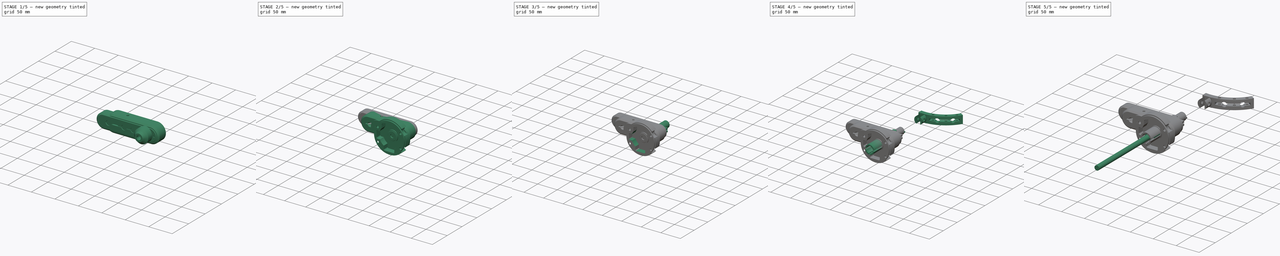
[diagram: build sequence overview — one tinted view per stage of 5, left to right]
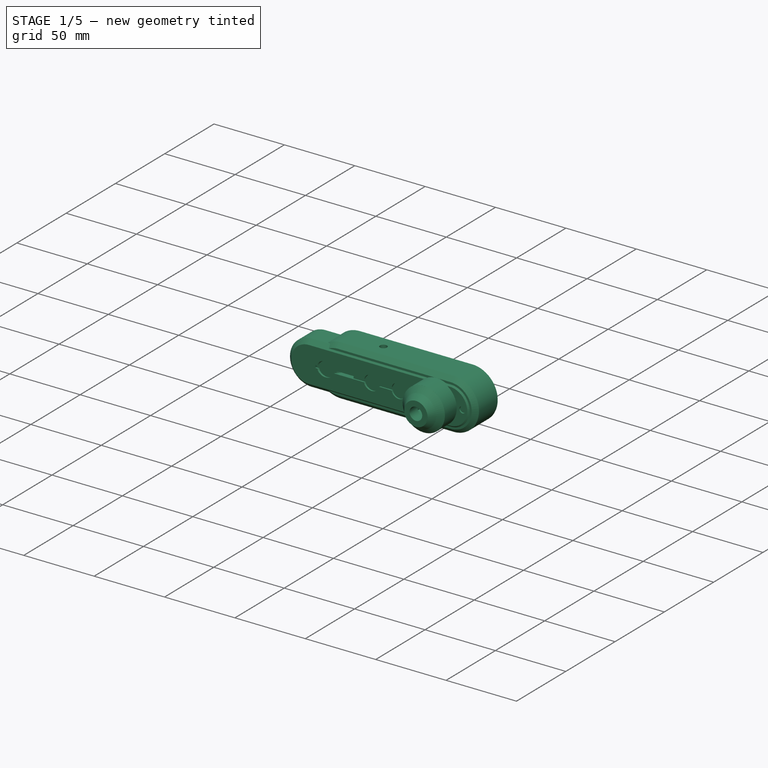
[diagram: stage 1 of 5 — iso view after this stage's code; geometry added in this stage tinted green]
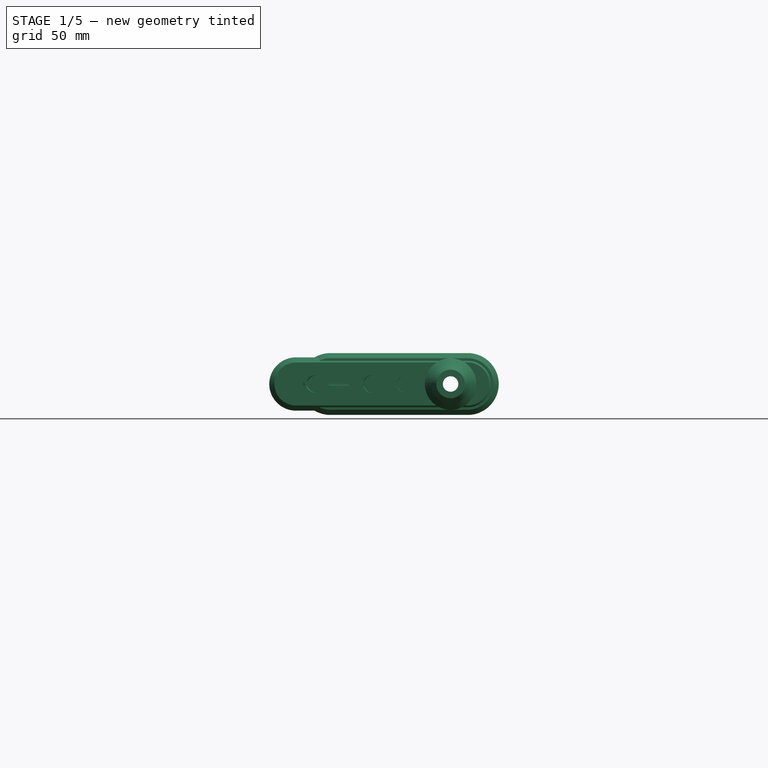
[diagram: stage 1 of 5 — front view after this stage's code; geometry added in this stage tinted green]
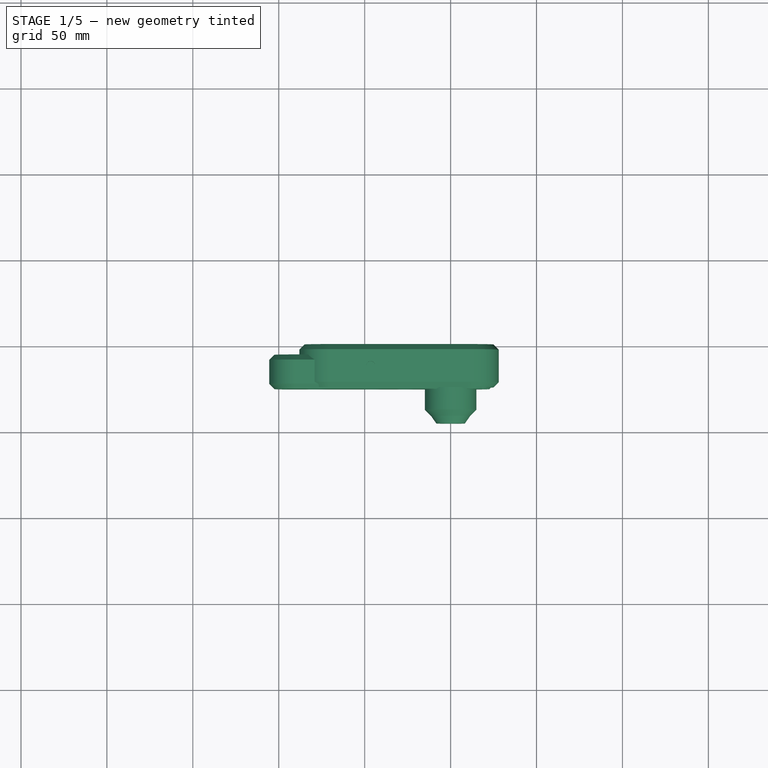
[diagram: stage 1 of 5 — top view after this stage's code; geometry added in this stage tinted green]
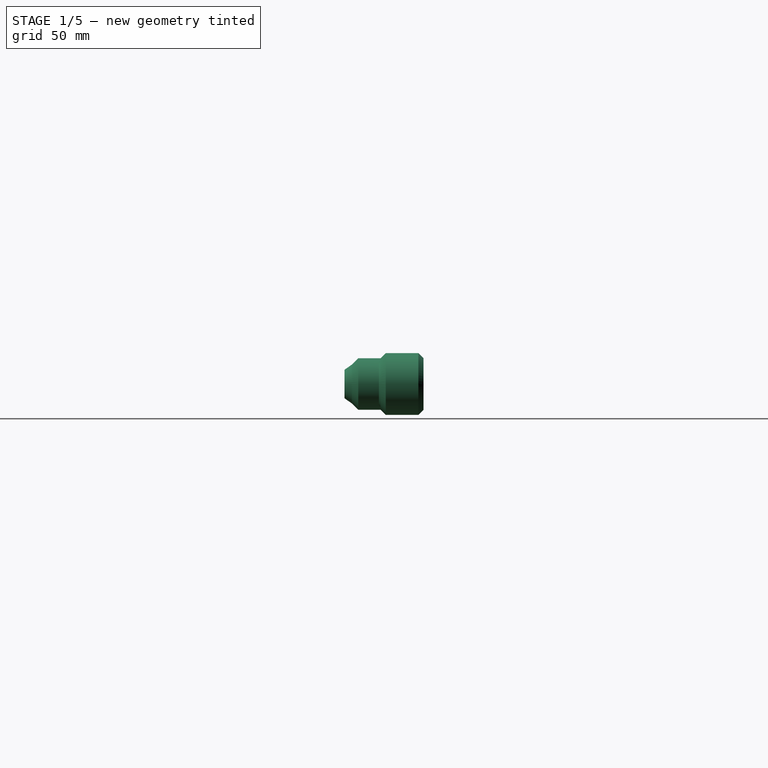
[diagram: stage 1 of 5 — right view after this stage's code; geometry added in this stage tinted green]
FCSTD DOCUMENT  (FreeCAD 0.21R33668 +26 (Git))
Label: end_effector_1_model
License: All rights reserved
LicenseURL: https://en.wikipedia.org/wiki/All_rights_reserved
objects: Sketcher::SketchObject×109, PartDesign::Pad×59, PartDesign::Pocket×41, PartDesign::Body×26, PartDesign::Fillet×10, Part::Cut×9, PartDesign::Hole×8, PartDesign::Chamfer×6, App::Part×5, PartDesign::PolarPattern×1
note: 393 computed .brp shape members not serialized (recipe doc carries the construction recipe); baked Part::Feature solids carry a one-line shape summary decoded from their .brp

FEATURE [PartDesign::Body] Body025  label="Bearing_mount001"
  Group = -> [Sketch132,Pad064,Sketch133,Pad065,Sketch134,Pad066]
  Origin = -> Origin032
  Placement = pos=(0,18,0) rot=(0,0,1;0rad)
  Tip = -> Pad066
FEATURE [Sketcher::SketchObject] Sketch135
  FullyConstrained = true
  MapMode = 5
  Placement = pos=(0,0,0) rot=(1,0,0;1.5708rad)
  Support = -> [XZ_Plane033]
  sketch-geometry (1):
    g0: Circle CenterX=0 CenterY=0 CenterZ=0 NormalX=0 NormalY=0 NormalZ=1 AngleXU=0 Radius=5.125
  constraints (2):
    c: Coincident(g0,g-1)
    c: Diameter(g0) = 10.25
FEATURE [PartDesign::Pad] Pad067
  Direction = (0,-1,2e-16)
  Length = 190
  Length2 = 10
  Placement = pos=(0,0,0) rot=(1,0,0;1.5708rad)
  Profile = -> Sketch135
  ReferenceAxis = -> Sketch135 [N_Axis]
  Type = 0
FEATURE [PartDesign::Body] Body026  label="stylus_048"
  Group = -> [Sketch135,Pad067]
  Origin = -> Origin033
  Placement = pos=(0,130,0) rot=(0,0,-1;0.558505rad)
  Tip = -> Pad067
FEATURE [Sketcher::SketchObject] Sketch136
  FullyConstrained = true
  MapMode = 5
  Placement = pos=(0,0,0) rot=(1,0,0;1.5708rad)
  Support = -> [XZ_Plane034]
  sketch-geometry (8):
    g0: LineSegment StartX=0 StartY=7.4 StartZ=0 EndX=-6.40859 EndY=3.7 EndZ=0
    g1: LineSegment StartX=-6.40859 StartY=3.7 StartZ=0 EndX=-6.40859 EndY=-3.7 EndZ=0
    g2: LineSegment StartX=-6.40859 StartY=-3.7 StartZ=0 EndX=-7.37e-14 EndY=-7.4 EndZ=0
    g3: LineSegment StartX=-7.37e-14 StartY=-7.4 StartZ=0 EndX=6.40859 EndY=-3.7 EndZ=0
    g4: LineSegment StartX=6.40859 StartY=-3.7 StartZ=0 EndX=6.40859 EndY=3.7 EndZ=0
    g5: LineSegment StartX=6.40859 StartY=3.7 StartZ=0 EndX=0 EndY=7.4 EndZ=0
    g6: Circle CenterX=0 CenterY=0 CenterZ=0 NormalX=0 NormalY=0 NormalZ=1 AngleXU=0 Radius=7.4
    g7: Circle CenterX=0 CenterY=0 CenterZ=0 NormalX=0 NormalY=0 NormalZ=1 AngleXU=0 Radius=15
  constraints (18):
    c: Coincident(g0,g1)
    c: Coincident(g1,g2)
    c: Coincident(g2,g3)
    c: Coincident(g3,g4)
    c: Coincident(g4,g5)
    c: Coincident(g5,g0)
    c: Equal(g0, g1-g5) x5
    c: PointOnObject(g0,g6)
    c: PointOnObject(g1,g6)
    c: PointOnObject(g2,g6)
    c: PointOnObject(g3,g6)
    c: PointOnObject(g4,g6)
    c: PointOnObject(g5,g6)
    c: Coincident(g6,g-1)
    c: Distance(g0) = 7.4
    c: PointOnObject(g0,g-2)
    c: Coincident(g7,g6)
    c: Diameter(g7) = 30
FEATURE [PartDesign::Pad] Pad068
  Direction = (0,-1,-2e-16)
  Length = 5
  Length2 = 10
  Placement = pos=(0,0,0) rot=(1,0,0;1.5708rad)
  Profile = -> Sketch136
  ReferenceAxis = -> Sketch136 [N_Axis]
  Type = 0
FEATURE [PartDesign::Body] Body028  label="stylus_049"
  Group = -> [Sketch139,Pad071]
  Origin = -> Origin035
  Placement = pos=(0,140,0) rot=(0,0,-1;0.349066rad)
  Tip = -> Pad071
FEATURE [Sketcher::SketchObject] Sketch137
  ExternalGeometry = -> [Pad068]
  FullyConstrained = true
  MapMode = 5
  Placement = pos=(0,0,0) rot=(-1,0,0;1.5708rad)
  Support = -> [Pad068]
  sketch-geometry (8):
    g0: Circle CenterX=0 CenterY=0 CenterZ=0 NormalX=0 NormalY=0 NormalZ=1 AngleXU=0 Radius=15
    g1: LineSegment StartX=0 StartY=7.4 StartZ=0 EndX=-6.40859 EndY=3.7 EndZ=0
    g2: LineSegment StartX=-6.40859 StartY=3.7 StartZ=0 EndX=-6.40859 EndY=-3.7 EndZ=0
    g3: LineSegment StartX=-6.40859 StartY=-3.7 StartZ=0 EndX=2.7223e-12 EndY=-7.4 EndZ=0
    g4: LineSegment StartX=2.7223e-12 StartY=-7.4 StartZ=0 EndX=6.40859 EndY=-3.7 EndZ=0
    g5: LineSegment StartX=6.40859 StartY=-3.7 StartZ=0 EndX=6.40859 EndY=3.7 EndZ=0
    g6: LineSegment StartX=6.40859 StartY=3.7 StartZ=0 EndX=0 EndY=7.4 EndZ=0
    g7: Circle CenterX=0 CenterY=0 CenterZ=0 NormalX=0 NormalY=0 NormalZ=1 AngleXU=0 Radius=7.4
  constraints (19):
    c: Coincident(g0,g-1)
    c: Diameter(g0) = 30
    c: Coincident(g1,g2)
    c: Coincident(g2,g3)
    c: Coincident(g3,g4)
    c: Coincident(g4,g5)
    c: Coincident(g5,g6)
    c: Coincident(g6,g1)
    c: Equal(g1, g2-g6) x5
    c: PointOnObject(g1,g7)
    c: PointOnObject(g2,g7)
    c: PointOnObject(g3,g7)
    c: PointOnObject(g4,g7)
    c: PointOnObject(g5,g7)
    c: PointOnObject(g6,g7)
    c: Coincident(g7,g0)
    c: PointOnObject(g6,g-2)
    c: Distance(g-3) = 7.4
    c: Distance(g6) = 7.4
FEATURE [PartDesign::Pad] Pad069
  BaseFeature = -> Pad068
  Direction = (0,1,2e-16)
  Length = 8
  Length2 = 10
  Placement = pos=(0,0,0) rot=(1,0,0;1.5708rad)
  Profile = -> Sketch137
  ReferenceAxis = -> Sketch137 [N_Axis]
  Type = 0
FEATURE [Sketcher::SketchObject] Sketch138
  ExternalGeometry = -> [Pad069]
  FullyConstrained = true
  MapMode = 5
  Placement = pos=(0,8,0) rot=(-1,0,0;1.5708rad)
  Support = -> [Pad069]
  sketch-geometry (11):
    g0: ArcOfCircle CenterX=-70 CenterY=3e-16 CenterZ=0 NormalX=0 NormalY=0 NormalZ=1 AngleXU=0 Radius=18 StartAngle=1.5708 EndAngle=4.71239
    g1: ArcOfCircle CenterX=10 CenterY=0 CenterZ=0 NormalX=0 NormalY=0 NormalZ=1 AngleXU=0 Radius=18 StartAngle=4.71239 EndAngle=7.85398
    g2: LineSegment StartX=-70 StartY=-18 StartZ=0 EndX=10 EndY=-18 EndZ=0
    g3: LineSegment StartX=10 StartY=18 StartZ=0 EndX=-70 EndY=18 EndZ=0
    g4: LineSegment StartX=0 StartY=7.4 StartZ=0 EndX=-6.40859 EndY=3.7 EndZ=0
    g5: LineSegment StartX=-6.40859 StartY=3.7 StartZ=0 EndX=-6.40859 EndY=-3.7 EndZ=0
    g6: LineSegment StartX=-6.40859 StartY=-3.7 StartZ=0 EndX=2.7e-15 EndY=-7.4 EndZ=0
    g7: LineSegment StartX=2.7e-15 StartY=-7.4 StartZ=0 EndX=6.40859 EndY=-3.7 EndZ=0
    g8: LineSegment StartX=6.40859 StartY=-3.7 StartZ=0 EndX=6.40859 EndY=3.7 EndZ=0
    g9: LineSegment StartX=6.40859 StartY=3.7 StartZ=0 EndX=0 EndY=7.4 EndZ=0
    g10: Circle CenterX=0 CenterY=0 CenterZ=0 NormalX=0 NormalY=0 NormalZ=1 AngleXU=0 Radius=7.4
  constraints (26):
    c: Tangent(g0,g2) = -1.5708
    c: Tangent(g2,g1) = -1.5708
    c: Tangent(g1,g3) = -1.5708
    c: Tangent(g3,g0) = -1.5708
    c: Equal(g0,g1)
    c: Horizontal(g2)
    c: DistanceY(g1,g1) = 36
    c: DistanceY(g1,g-3) = 0
    c: DistanceX(g-3,g1) = 10
    c: DistanceX(g0,g-3) = 70
    c: Coincident(g4,g5)
    c: Coincident(g5,g6)
    c: Coincident(g6,g7)
    c: Coincident(g7,g8)
    c: Coincident(g8,g9)
    c: Coincident(g9,g4)
    c: Equal(g4, g5-g9) x5
    c: PointOnObject(g4,g10)
    c: PointOnObject(g5,g10)
    c: PointOnObject(g6,g10)
    c: PointOnObject(g7,g10)
    c: PointOnObject(g8,g10)
    c: PointOnObject(g9,g10)
    c: Coincident(g10,g-3)
    c: Distance(g9) = 7.4
    c: PointOnObject(g4,g-2)
FEATURE [PartDesign::Pad] Pad070
  BaseFeature = -> Pad069
  Direction = (0,1,2e-16)
  Length = 25
  Length2 = 10
  Placement = pos=(0,0,0) rot=(1,0,0;1.5708rad)
  Profile = -> Sketch138
  ReferenceAxis = -> Sketch138 [N_Axis]
  Type = 0
FEATURE [PartDesign::Chamfer] Chamfer001
  Angle = 45
  Base = -> Pad070 [Edge15,Edge13,Edge32,Edge35,Edge14,Edge34,Edge30,Edge12]
  BaseFeature = -> Pad070
  ChamferType = 0
  FlipDirection = false
  Placement = pos=(0,0,0) rot=(1,0,0;1.5708rad)
  Size = 3
  Size2 = 1
  SupportTransform = false
  UseAllEdges = false
FEATURE [Sketcher::SketchObject] Sketch140
  FullyConstrained = true
  MapMode = 5
  Placement = pos=(0,-5,0) rot=(1,0,0;1.5708rad)
  Support = -> [Chamfer001]
  sketch-geometry (2):
    g0: Circle CenterX=0 CenterY=0 CenterZ=0 NormalX=0 NormalY=0 NormalZ=1 AngleXU=0 Radius=10
    g1: Circle CenterX=0 CenterY=0 CenterZ=0 NormalX=0 NormalY=0 NormalZ=1 AngleXU=0 Radius=4.5
  constraints (4):
    c: Coincident(g0,g-1)
    c: Diameter(g0) = 20
    c: Coincident(g1,g0)
    c: Diameter(g1) = 9
FEATURE [PartDesign::Pad] Pad072
  BaseFeature = -> Chamfer001
  Direction = (0,-1,-2e-16)
  Length = 5
  Length2 = 10
  Placement = pos=(0,0,0) rot=(1,0,0;1.5708rad)
  Profile = -> Sketch140
  ReferenceAxis = -> Sketch140 [N_Axis]
  Type = 0
FEATURE [PartDesign::Chamfer] Chamfer002
  Angle = 45
  Base = -> Pad072 [Edge38]
  BaseFeature = -> Pad072
  ChamferType = 0
  FlipDirection = false
  Placement = pos=(0,0,0) rot=(1,0,0;1.5708rad)
  Size = 4.99
  Size2 = 1
  SupportTransform = false
  UseAllEdges = false
FEATURE [PartDesign::Body] Body029
  Group = -> [Sketch141,Pad073]
  Origin = -> Origin036
  Placement = pos=(-44.5,39.5,0) rot=(0,0,1;0rad)
  Tip = -> Pad073
FEATURE [Sketcher::SketchObject] Sketch142
  ExternalGeometry = -> [Chamfer002]
  FullyConstrained = true
  MapMode = 5
  Placement = pos=(0,-4e-15,-18) rot=(1,0,0;3.14159rad)
  Support = -> [Chamfer002]
  sketch-geometry (1):
    g0: Circle CenterX=-46.5 CenterY=-20.5 CenterZ=0 NormalX=0 NormalY=0 NormalZ=1 AngleXU=0 Radius=7.5
  constraints (4):
    c: DistanceY(g-3,g-3) = 19
    c: DistanceY(g0,g-3) = 9.5
    c: Diameter(g0) = 15
    c: DistanceX(g-3,g0) = 23.5
FEATURE [PartDesign::Pocket] Pocket040
  BaseFeature = -> Chamfer002
  Direction = (0,-2e-16,1)
  Length = 12
  Length2 = 5
  Placement = pos=(0,0,0) rot=(1,0,0;1.5708rad)
  Profile = -> Sketch142
  ReferenceAxis = -> Sketch142 [N_Axis]
  Type = 0
FEATURE [Sketcher::SketchObject] Sketch143
  ExternalGeometry = -> [Pocket040]
  FullyConstrained = true
  MapMode = 5
  Placement = pos=(-1e-15,3e-16,-6) rot=(1,0,0;3.14159rad)
  Support = -> [Pocket040]
  sketch-geometry (1):
    g0: Circle CenterX=-46.5 CenterY=-20.5 CenterZ=0 NormalX=0 NormalY=0 NormalZ=1 AngleXU=0 Radius=2.5
  constraints (2):
    c: Coincident(g0,g-3)
    c: Diameter(g0) = 5
FEATURE [PartDesign::Pocket] Pocket041
  BaseFeature = -> Pocket040
  Direction = (2e-16,-3e-16,1)
  Length = 29
  Length2 = 5
  Placement = pos=(0,0,0) rot=(1,0,0;1.5708rad)
  Profile = -> Sketch143
  ReferenceAxis = -> Sketch143 [N_Axis]
  Type = 1
FEATURE [PartDesign::Body] Body027  label="Bearing_mount002"
  Group = -> [Sketch136,Pad068,Sketch137,Pad069,Sketch138,Pad070,Chamfer001,Sketch140,Pad072,Chamfer002,Sketch142,Pocket040,Sketch143,Pocket041]
  Origin = -> Origin034
  Placement = pos=(0,18,0) rot=(0,0,1;0rad)
  Tip = -> Pocket041
FEATURE [Part::Cut] Cut002
  Base = -> Body027
  Tool = -> Body026
FEATURE [PartDesign::Body] Body030  label="Base_mount004"
  Group = -> [Sketch144,Pad074,Sketch145,Pad075,Sketch146,Pocket042,Sketch147,Pocket043,Sketch148,Pocket044,Sketch149,Pad076,Sketch150,Pocket045,Sketch151,Pocket046,Fillet008,Sketch152,Hole010,Fillet009]
  Origin = -> Origin038
  Placement = pos=(0,-9.75,0) rot=(0,1,0;0rad)
  Tip = -> Fillet009
FEATURE [Sketcher::SketchObject] Sketch153
  FullyConstrained = true
  MapMode = 5
  Placement = pos=(0,0,0) rot=(1,0,0;1.5708rad)
  Support = -> [XZ_Plane039]
  sketch-geometry (8):
    g0: LineSegment StartX=0 StartY=7.415 StartZ=0 EndX=-6.42158 EndY=3.7075 EndZ=0
    g1: LineSegment StartX=-6.42158 StartY=3.7075 StartZ=0 EndX=-6.42158 EndY=-3.7075 EndZ=0
    g2: LineSegment StartX=-6.42158 StartY=-3.7075 StartZ=0 EndX=1.6165e-12 EndY=-7.415 EndZ=0
    g3: LineSegment StartX=1.6165e-12 StartY=-7.415 StartZ=0 EndX=6.42158 EndY=-3.7075 EndZ=0
    g4: LineSegment StartX=6.42158 StartY=-3.7075 StartZ=0 EndX=6.42158 EndY=3.7075 EndZ=0
    g5: LineSegment StartX=6.42158 StartY=3.7075 StartZ=0 EndX=0 EndY=7.415 EndZ=0
    g6: Circle CenterX=0 CenterY=0 CenterZ=0 NormalX=0 NormalY=0 NormalZ=1 AngleXU=0 Radius=7.415
    g7: Circle CenterX=0 CenterY=0 CenterZ=0 NormalX=0 NormalY=0 NormalZ=1 AngleXU=0 Radius=12.5
  constraints (18):
    c: Coincident(g0,g1)
    c: Coincident(g1,g2)
    c: Coincident(g2,g3)
    c: Coincident(g3,g4)
    c: Coincident(g4,g5)
    c: Coincident(g5,g0)
    c: Equal(g0, g1-g5) x5
    c: PointOnObject(g0,g6)
    c: PointOnObject(g1,g6)
    c: PointOnObject(g2,g6)
    c: PointOnObject(g3,g6)
    c: PointOnObject(g4,g6)
    c: PointOnObject(g5,g6)
    c: Coincident(g6,g-1)
    c: Distance(g0) = 7.415
    c: PointOnObject(g0,g-2)
    c: Coincident(g7,g6)
    c: Diameter(g7) = 25
FEATURE [PartDesign::Pad] Pad077
  Direction = (0,-1,-2e-16)
  Length = 7
  Length2 = 10
  Placement = pos=(0,0,0) rot=(1,0,0;1.5708rad)
  Profile = -> Sketch153
  ReferenceAxis = -> Sketch153 [N_Axis]
  Type = 0
FEATURE [Sketcher::SketchObject] Sketch154
  FullyConstrained = true
  MapMode = 5
  Placement = pos=(0,0,0) rot=(-1,0,0;1.5708rad)
  Support = -> [Pad077]
  sketch-geometry (8):
    g0: Circle CenterX=0 CenterY=0 CenterZ=0 NormalX=0 NormalY=0 NormalZ=1 AngleXU=0 Radius=12.5
    g1: LineSegment StartX=0 StartY=7.415 StartZ=0 EndX=-6.42158 EndY=3.7075 EndZ=0
    g2: LineSegment StartX=-6.42158 StartY=3.7075 StartZ=0 EndX=-6.42158 EndY=-3.7075 EndZ=0
    g3: LineSegment StartX=-6.42158 StartY=-3.7075 StartZ=0 EndX=5.373e-13 EndY=-7.415 EndZ=0
    g4: LineSegment StartX=5.373e-13 StartY=-7.415 StartZ=0 EndX=6.42158 EndY=-3.7075 EndZ=0
    g5: LineSegment StartX=6.42158 StartY=-3.7075 StartZ=0 EndX=6.42158 EndY=3.7075 EndZ=0
    g6: LineSegment StartX=6.42158 StartY=3.7075 StartZ=0 EndX=0 EndY=7.415 EndZ=0
    g7: Circle CenterX=0 CenterY=0 CenterZ=0 NormalX=0 NormalY=0 NormalZ=1 AngleXU=0 Radius=7.415
  constraints (18):
    c: Coincident(g0,g-1)
    c: Diameter(g0) = 25
    c: Coincident(g1,g2)
    c: Coincident(g2,g3)
    c: Coincident(g3,g4)
    c: Coincident(g4,g5)
    c: Coincident(g5,g6)
    c: Coincident(g6,g1)
    c: Equal(g1, g2-g6) x5
    c: PointOnObject(g1,g7)
    c: PointOnObject(g2,g7)
    c: PointOnObject(g3,g7)
    c: PointOnObject(g4,g7)
    c: PointOnObject(g5,g7)
    c: PointOnObject(g6,g7)
    c: Coincident(g7,g0)
    c: PointOnObject(g6,g-2)
    c: Distance(g6) = 7.415
FEATURE [PartDesign::Pad] Pad078
  BaseFeature = -> Pad077
  Direction = (0,1,2e-16)
  Length = 7
  Length2 = 10
  Placement = pos=(0,0,0) rot=(1,0,0;1.5708rad)
  Profile = -> Sketch154
  ReferenceAxis = -> Sketch154 [N_Axis]
  Type = 0
FEATURE [Sketcher::SketchObject] Sketch155
  ExternalGeometry = -> [Pad078]
  FullyConstrained = true
  MapMode = 5
  Placement = pos=(0,7,0) rot=(-1,0,0;1.5708rad)
  Support = -> [Pad078]
  sketch-geometry (12):
    g0: ArcOfCircle CenterX=-90 CenterY=-5e-16 CenterZ=0 NormalX=0 NormalY=0 NormalZ=1 AngleXU=0 Radius=15.5 StartAngle=1.5708 EndAngle=4.71239
    g1: ArcOfCircle CenterX=10 CenterY=0 CenterZ=0 NormalX=0 NormalY=0 NormalZ=1 AngleXU=0 Radius=15.5 StartAngle=4.71239 EndAngle=7.85398
    g2: LineSegment StartX=-90 StartY=-15.5 StartZ=0 EndX=10 EndY=-15.5 EndZ=0
    g3: LineSegment StartX=10 StartY=15.5 StartZ=0 EndX=-90 EndY=15.5 EndZ=0
    g4: LineSegment StartX=0 StartY=7.415 StartZ=0 EndX=-6.42158 EndY=3.7075 EndZ=0
    g5: LineSegment StartX=-6.42158 StartY=3.7075 StartZ=0 EndX=-6.42158 EndY=-3.7075 EndZ=0
    g6: LineSegment StartX=-6.42158 StartY=-3.7075 StartZ=0 EndX=-8e-15 EndY=-7.415 EndZ=0
    g7: LineSegment StartX=-8e-15 StartY=-7.415 StartZ=0 EndX=6.42158 EndY=-3.7075 EndZ=0
    g8: LineSegment StartX=6.42158 StartY=-3.7075 StartZ=0 EndX=6.42158 EndY=3.7075 EndZ=0
    g9: LineSegment StartX=6.42158 StartY=3.7075 StartZ=0 EndX=0 EndY=7.415 EndZ=0
    g10: Circle CenterX=0 CenterY=0 CenterZ=0 NormalX=0 NormalY=0 NormalZ=1 AngleXU=0 Radius=7.415
    g11: Circle CenterX=19.09 CenterY=0 CenterZ=0 NormalX=0 NormalY=0 NormalZ=1 AngleXU=0 Radius=2.25
  constraints (29):
    c: Tangent(g0,g2) = -1.5708
    c: Tangent(g2,g1) = -1.5708
    c: Tangent(g1,g3) = -1.5708
    c: Tangent(g3,g0) = -1.5708
    c: Equal(g0,g1)
    c: Horizontal(g2)
    c: DistanceY(g1,g1) = 31
    c: DistanceY(g1,g-3) = 0
    c: DistanceX(g-3,g1) = 10
    c: DistanceX(g0,g-3) = 90
    c: Coincident(g4,g5)
    c: Coincident(g5,g6)
    c: Coincident(g6,g7)
    c: Coincident(g7,g8)
    c: Coincident(g8,g9)
    c: Coincident(g9,g4)
    c: Equal(g4, g5-g9) x5
    c: PointOnObject(g4,g10)
    c: PointOnObject(g5,g10)
    c: PointOnObject(g6,g10)
    c: PointOnObject(g7,g10)
    c: PointOnObject(g8,g10)
    c: PointOnObject(g9,g10)
    c: Coincident(g10,g-3)
    c: PointOnObject(g9,g-2)
    c: Distance(g9) = 7.415
    c: PointOnObject(g11,g-1)
    c: Diameter(g11) = 4.5
    c: Distance(g10,g11) = 19.09
FEATURE [PartDesign::Pad] Pad079
  BaseFeature = -> Pad078
  Direction = (0,1,2e-16)
  Length = 20
  Length2 = 10
  Placement = pos=(0,0,0) rot=(1,0,0;1.5708rad)
  Profile = -> Sketch155
  ReferenceAxis = -> Sketch155 [N_Axis]
  Type = 0
FEATURE [Sketcher::SketchObject] Sketch156
  FullyConstrained = true
  MapMode = 5
  Placement = pos=(0,0,0) rot=(1,0,0;1.5708rad)
  Support = -> [XZ_Plane040]
  sketch-geometry (1):
    g0: Circle CenterX=0 CenterY=0 CenterZ=0 NormalX=0 NormalY=0 NormalZ=1 AngleXU=0 Radius=5.125
  constraints (2):
    c: Coincident(g0,g-1)
    c: Diameter(g0) = 10.25
FEATURE [PartDesign::Pad] Pad080
  Direction = (0,-1,-2e-16)
  Length = 185
  Length2 = 10
  Placement = pos=(0,0,0) rot=(1,0,0;1.5708rad)
  Profile = -> Sketch156
  ReferenceAxis = -> Sketch156 [N_Axis]
  Type = 0
FEATURE [PartDesign::Body] Body032  label="stylus_050"
  Group = -> [Sketch156,Pad080]
  Origin = -> Origin040
  Placement = pos=(0,150,0) rot=(0,0,-1;0.558505rad)
  Tip = -> Pad080
FEATURE [Sketcher::SketchObject] Sketch160
  FullyConstrained = true
  MapMode = 5
  Placement = pos=(0,0,0) rot=(1,0,0;1.5708rad)
  Support = -> [XZ_Plane042]
  sketch-geometry (1):
    g0: Circle CenterX=0 CenterY=0 CenterZ=0 NormalX=0 NormalY=0 NormalZ=1 AngleXU=0 Radius=5.125
  constraints (2):
    c: Coincident(g0,g-1)
    c: Diameter(g0) = 10.25
FEATURE [PartDesign::Pad] Pad084
  Direction = (0,-1,-2e-16)
  Length = 185
  Length2 = 10
  Placement = pos=(0,0,0) rot=(1,0,0;1.5708rad)
  Profile = -> Sketch160
  ReferenceAxis = -> Sketch160 [N_Axis]
  Type = 0
FEATURE [PartDesign::Body] Body034  label="stylus_051"
  Group = -> [Sketch160,Pad084]
  Origin = -> Origin042
  Placement = pos=(0,150,0) rot=(0,0,-1;0.349066rad)
  Tip = -> Pad084
FEATURE [Sketcher::SketchObject] Sketch162
  FullyConstrained = true
  MapMode = 5
  Support = -> [XY_Plane043]
  sketch-geometry (4):
    g0: LineSegment StartX=-41 StartY=20 StartZ=0 EndX=22 EndY=20 EndZ=0
    g1: LineSegment StartX=22 StartY=20 StartZ=0 EndX=22 EndY=-20 EndZ=0
    g2: LineSegment StartX=22 StartY=-20 StartZ=0 EndX=-41 EndY=-20 EndZ=0
    g3: LineSegment StartX=-41 StartY=-20 StartZ=0 EndX=-41 EndY=20 EndZ=0
  constraints (12):
    c: Coincident(g0,g1)
    c: Coincident(g1,g2)
    c: Coincident(g2,g3)
    c: Coincident(g3,g0)
    c: Horizontal(g0)
    c: Horizontal(g2)
    c: Vertical(g1)
    c: Vertical(g3)
    c: DistanceX(g0,g0) = 63
    c: DistanceY(g3,g3) = 40
    c: DistanceY(g-1,g0) = 20
    c: DistanceX(g-1,g1) = 22
FEATURE [PartDesign::Pad] Pad086
  Direction = (0,0,1)
  Length = 1
  Length2 = 1
  Profile = -> Sketch162
  ReferenceAxis = -> Sketch162 [N_Axis]
  Type = 4
FEATURE [PartDesign::Body] Body036
  Group = -> [Sketch165,Pad087,Sketch166,Pocket049,Fillet]
  Origin = -> Origin044
  Placement = pos=(0,5.25,0) rot=(0,1,0;0rad)
  Tip = -> Fillet
FEATURE [PartDesign::Chamfer] Chamfer005
  Angle = 45
  Base = -> Pad079 [Edge15,Edge35,Edge32,Edge13,Edge12,Edge30,Edge14,Edge34]
  BaseFeature = -> Pad079
  ChamferType = 0
  FlipDirection = false
  Placement = pos=(0,0,0) rot=(1,0,0;1.5708rad)
  Size = 3
  Size2 = 1
  SupportTransform = false
  UseAllEdges = false
FEATURE [PartDesign::Chamfer] Chamfer006
  Angle = 45
  Base = -> Chamfer005
  BaseFeature = -> Chamfer005
  ChamferType = 1
  FlipDirection = false
  Placement = pos=(0,0,0) rot=(1,0,0;1.5708rad)
  Size = 2.49
  Size2 = 4.99
  SupportTransform = false
  UseAllEdges = false
FEATURE [Sketcher::SketchObject] Sketch168
  FullyConstrained = true
  MapMode = 5
  Placement = pos=(0,0,0) rot=(1,0,0;1.5708rad)
  Support = -> [XZ_Plane045]
  sketch-geometry (1):
    g0: Circle CenterX=0 CenterY=0 CenterZ=0 NormalX=0 NormalY=0 NormalZ=1 AngleXU=0 Radius=5.125
  constraints (2):
    c: Coincident(g0,g-1)
    c: Diameter(g0) = 10.25
FEATURE [PartDesign::Pad] Pad089
  Direction = (0,-1,-2e-16)
  Length = 190
  Length2 = 10
  Placement = pos=(0,0,0) rot=(1,0,0;1.5708rad)
  Profile = -> Sketch168
  ReferenceAxis = -> Sketch168 [N_Axis]
  Type = 0
FEATURE [App::Part] Part003  label="Short"
  Group = -> [Body023,Body025,Body027,Body029,Body026,Body028,Cut003,Cut002,Cut004]
  Origin = -> Origin029
FEATURE [Sketcher::SketchObject] Sketch169
  FullyConstrained = true
  MapMode = 5
  Placement = pos=(0,-7,0) rot=(1,0,0;1.5708rad)
  Support = -> [Chamfer006]
  sketch-geometry (2):
    g0: Circle CenterX=0 CenterY=0 CenterZ=0 NormalX=0 NormalY=0 NormalZ=1 AngleXU=0 Radius=8.3
    g1: Circle CenterX=0 CenterY=0 CenterZ=0 NormalX=0 NormalY=0 NormalZ=1 AngleXU=0 Radius=4.5
  constraints (4):
    c: Coincident(g0,g-1)
    c: Coincident(g1,g0)
    c: Diameter(g0) = 16.6
    c: Diameter(g1) = 9
FEATURE [PartDesign::Pad] Pad090
  BaseFeature = -> Chamfer006
  Direction = (0,-1,-2e-16)
  Length = 6
  Length2 = 10
  Placement = pos=(0,0,0) rot=(1,0,0;1.5708rad)
  Profile = -> Sketch169
  ReferenceAxis = -> Sketch169 [N_Axis]
  Type = 0
FEATURE [PartDesign::Chamfer] Chamfer007
  Angle = 45
  Base = -> Pad090 [Edge47]
  BaseFeature = -> Pad090
  ChamferType = 1
  FlipDirection = false
  Placement = pos=(0,0,0) rot=(1,0,0;1.5708rad)
  Size = 4.19
  Size2 = 5.99
  SupportTransform = false
  UseAllEdges = false
FEATURE [Sketcher::SketchObject] Sketch170
  ExternalGeometry = -> [Chamfer007]
  FullyConstrained = true
  MapMode = 5
  Placement = pos=(0,-3.4e-15,-15.5) rot=(1,0,0;3.14159rad)
  Support = -> [Chamfer007]
  sketch-geometry (1):
    g0: Circle CenterX=-51 CenterY=-17 CenterZ=0 NormalX=0 NormalY=0 NormalZ=1 AngleXU=0 Radius=7.5
  constraints (4):
    c: DistanceX(g0,g-1) = 51
    c: Diameter(g0) = 15
    c: DistanceY(g-3,g-3) = 14
    c: DistanceY(g0,g-3) = 7
FEATURE [PartDesign::Pocket] Pocket050
  BaseFeature = -> Chamfer007
  Direction = (0,-2e-16,1)
  Length = 10
  Length2 = 5
  Placement = pos=(0,0,0) rot=(1,0,0;1.5708rad)
  Profile = -> Sketch170
  ReferenceAxis = -> Sketch170 [N_Axis]
  Type = 0
FEATURE [Sketcher::SketchObject] Sketch171
  ExternalGeometry = -> [Pocket050]
  FullyConstrained = true
  MapMode = 5
  Placement = pos=(0,3e-16,-5.5) rot=(1,0,0;3.14159rad)
  Support = -> [Pocket050]
  sketch-geometry (1):
    g0: Circle CenterX=-51 CenterY=-17 CenterZ=0 NormalX=0 NormalY=0 NormalZ=1 AngleXU=0 Radius=2.5
  constraints (2):
    c: Coincident(g0,g-3)
    c: Diameter(g0) = 5
FEATURE [PartDesign::Pocket] Pocket051
  BaseFeature = -> Pocket050
  Direction = (0,-3e-16,1)
  Length = 5
  Length2 = 5
  Placement = pos=(0,0,0) rot=(1,0,0;1.5708rad)
  Profile = -> Sketch171
  ReferenceAxis = -> Sketch171 [N_Axis]
  Type = 1
FEATURE [PartDesign::Body] Body031  label="Bearing_mount003"
  Group = -> [Sketch153,Pad077,Sketch154,Pad078,Sketch155,Pad079,Chamfer005,Chamfer006,Sketch169,Pad090,Chamfer007,Sketch170,Pocket050,Sketch171,Pocket051]
  Origin = -> Origin039
  Placement = pos=(0,18,0) rot=(0,0,1;0rad)
  Tip = -> Pocket051
FEATURE [Part::Cut] Cut005
  Base = -> Body031
  Tool = -> Body032
FEATURE [Part::Cut] Cut006
  Base = -> Cut005
  Tool = -> Body037
FEATURE [Part::Cut] Cut007
  Base = -> Cut006
  Tool = -> Body034
FEATURE [Part::Cut] Cut008
  Base = -> Cut007
  Tool = -> Body035
FEATURE [App::Part] Part004  label="Short_Further_Out"
  Group = -> [Body030,Body036,Body034,Body032,Body031,Body035,Body037,Cut007,Cut006,Cut005,Cut008]
  Origin = -> Origin037
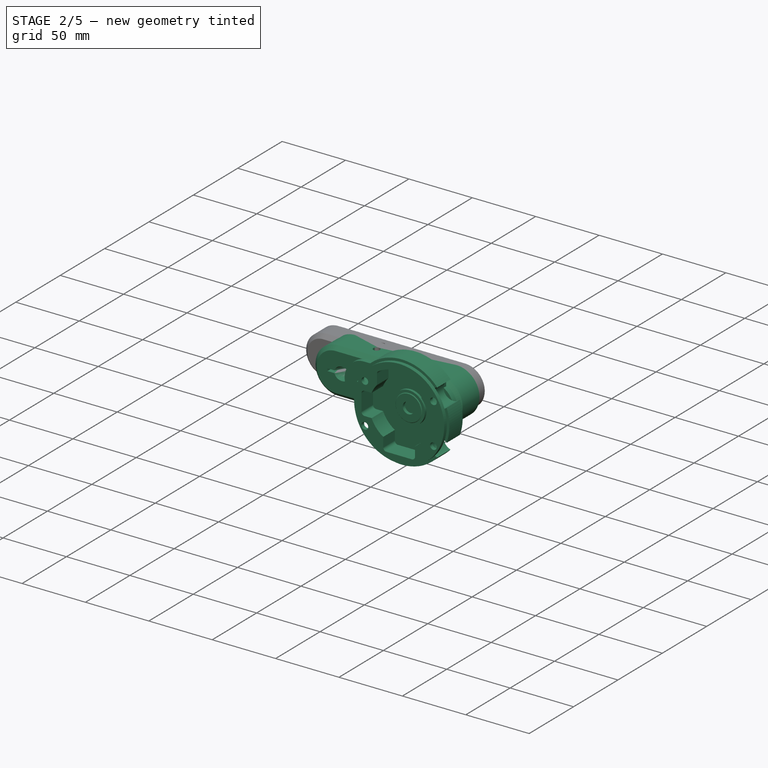
[diagram: stage 2 of 5 — iso view after this stage's code; geometry added in this stage tinted green]
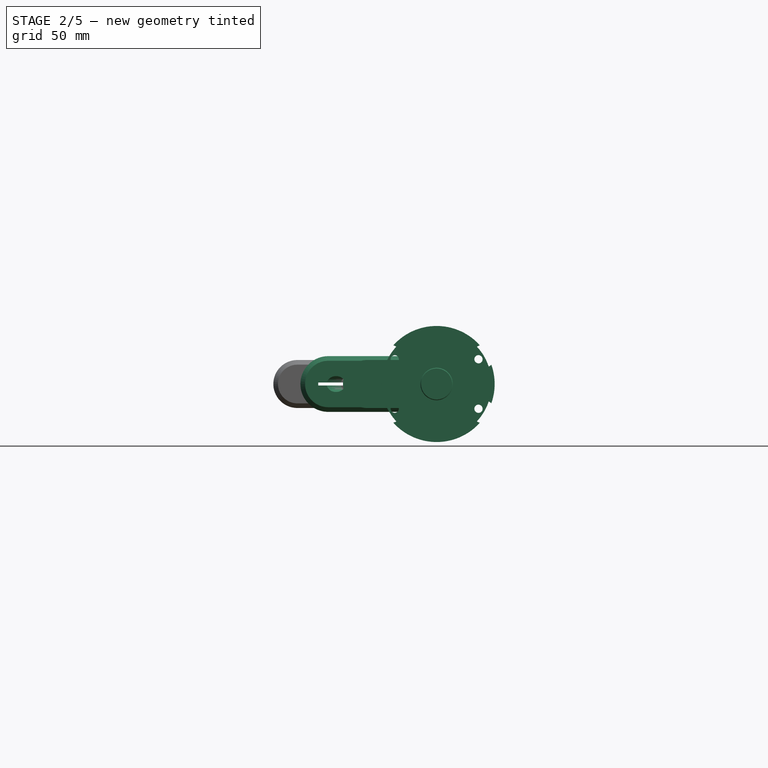
[diagram: stage 2 of 5 — front view after this stage's code; geometry added in this stage tinted green]
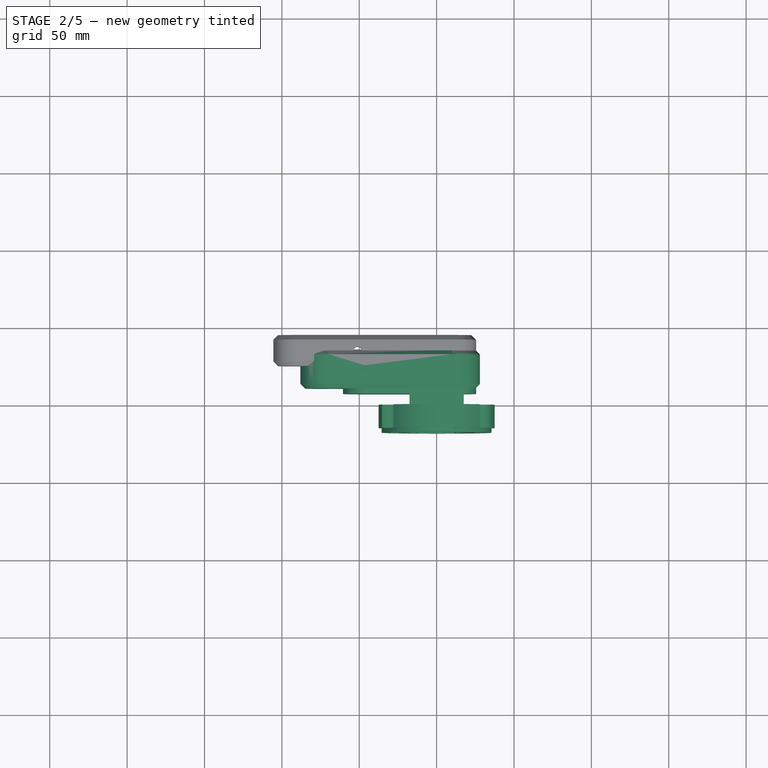
[diagram: stage 2 of 5 — top view after this stage's code; geometry added in this stage tinted green]
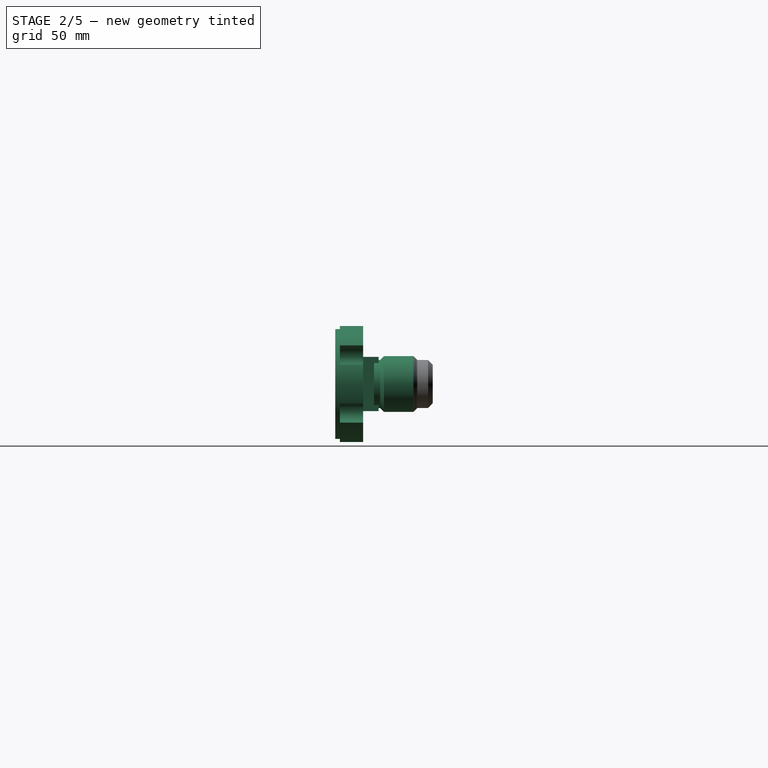
[diagram: stage 2 of 5 — right view after this stage's code; geometry added in this stage tinted green]
FEATURE [PartDesign::Body] Body022  label="Base_mount002"
  Group = -> [Sketch111,Pad056,Sketch112,Pad057,Sketch113,Pocket029,Sketch114,Pocket030,Sketch115,Pocket031,Sketch116,Pad058,Sketch117,Pad059,Sketch118,Pocket032,Chamfer,PolarPattern,Sketch119,Pocket033,Sketch120,Pad060,Sketch121,Pocket034]
  Origin = -> Origin028
  Tip = -> Pocket034
FEATURE [App::Part] Part002  label="Fixed_end"
  Group = -> [Body022]
  Origin = -> Origin027
FEATURE [Sketcher::SketchObject] Sketch122
  FullyConstrained = true
  MapMode = 5
  Placement = pos=(0,0,0) rot=(1,0,0;1.5708rad)
  Support = -> [XZ_Plane030]
  sketch-geometry (1):
    g0: Circle CenterX=0 CenterY=0 CenterZ=0 NormalX=0 NormalY=0 NormalZ=1 AngleXU=0 Radius=37.5
  constraints (2):
    c: Coincident(g0,g-1)
    c: Diameter(g0) = 75
FEATURE [PartDesign::Pad] Pad061
  Direction = (0,-1,2e-16)
  Length = 15
  Length2 = 10
  Placement = pos=(0,0,0) rot=(1,0,0;1.5708rad)
  Profile = -> Sketch122
  ReferenceAxis = -> Sketch122 [N_Axis]
  Type = 0
FEATURE [Sketcher::SketchObject] Sketch123
  FullyConstrained = true
  MapMode = 5
  Placement = pos=(0,-15,6.6e-15) rot=(1,0,0;1.5708rad)
  Support = -> [Pad061]
  sketch-geometry (1):
    g0: Circle CenterX=0 CenterY=0 CenterZ=0 NormalX=0 NormalY=0 NormalZ=1 AngleXU=0 Radius=35.5
  constraints (2):
    c: Coincident(g0,g-1)
    c: Diameter(g0) = 71
FEATURE [PartDesign::Pad] Pad062
  BaseFeature = -> Pad061
  Direction = (0,-1,2e-16)
  Length = 3
  Length2 = 10
  Placement = pos=(0,0,0) rot=(1,0,0;1.5708rad)
  Profile = -> Sketch123
  ReferenceAxis = -> Sketch123 [N_Axis]
  Type = 0
FEATURE [Sketcher::SketchObject] Sketch124
  FullyConstrained = true
  MapMode = 5
  Placement = pos=(0,-18,8.1e-15) rot=(1,0,0;1.5708rad)
  Support = -> [Pad062]
  sketch-geometry (4):
    g0: Circle CenterX=-27.05 CenterY=16 CenterZ=0 NormalX=0 NormalY=0 NormalZ=1 AngleXU=0 Radius=2.65
    g1: Circle CenterX=-27.05 CenterY=-16 CenterZ=0 NormalX=0 NormalY=0 NormalZ=1 AngleXU=0 Radius=2.65
    g2: Circle CenterX=27.05 CenterY=-16 CenterZ=0 NormalX=0 NormalY=0 NormalZ=1 AngleXU=0 Radius=2.65
    g3: Circle CenterX=27.05 CenterY=16 CenterZ=0 NormalX=0 NormalY=0 NormalZ=1 AngleXU=0 Radius=2.65
  constraints (12):
    c: Diameter(g0) = 5.3
    c: Equal(g0,g1)
    c: Equal(g1,g2)
    c: Equal(g2,g3)
    c: DistanceY(g1,g0) = 32
    c: DistanceY(g3,g0) = 0
    c: DistanceY(g2,g1) = 0
    c: DistanceX(g1,g2) = 54.1
    c: DistanceX(g3,g2) = 0
    c: DistanceY(g-1,g3) = 16
    c: DistanceX(g1,g-1) = 27.05
    c: DistanceX(g0,g1) = 0
FEATURE [PartDesign::Pocket] Pocket035
  BaseFeature = -> Pad062
  Direction = (0,1,-2e-16)
  Length = 3
  Length2 = 5
  Placement = pos=(0,0,0) rot=(1,0,0;1.5708rad)
  Profile = -> Sketch124
  ReferenceAxis = -> Sketch124 [N_Axis]
  Type = 0
FEATURE [Sketcher::SketchObject] Sketch125
  FullyConstrained = true
  MapMode = 5
  Placement = pos=(0,-18,8.1e-15) rot=(1,0,0;1.5708rad)
  Support = -> [Pocket035]
  sketch-geometry (18):
    g0: ArcOfCircle CenterX=0 CenterY=0 CenterZ=0 NormalX=0 NormalY=0 NormalZ=1 AngleXU=0 Radius=23.5 StartAngle=2.41085 EndAngle=2.74857
    g1: LineSegment StartX=-17.5 StartY=15.6844 StartZ=0 EndX=-17.5 EndY=23.6844 EndZ=0
    g2: LineSegment StartX=17.5 StartY=15.6844 StartZ=0 EndX=17.5 EndY=23.6844 EndZ=0
    g3: ArcOfCircle CenterX=0 CenterY=0 CenterZ=0 NormalX=0 NormalY=0 NormalZ=1 AngleXU=0 Radius=30.5348 StartAngle=1.00623 EndAngle=2.13536
    g4: LineSegment StartX=-21.7083 StartY=9 StartZ=0 EndX=-27.2083 EndY=9 EndZ=0
    g5: LineSegment StartX=-21.7083 StartY=-9 StartZ=0 EndX=-27.2083 EndY=-9 EndZ=0
    g6: LineSegment StartX=-29.7083 StartY=6.5 StartZ=0 EndX=-29.7083 EndY=-6.5 EndZ=0
    g7: LineSegment StartX=-12.5 StartY=-19.8997 StartZ=0 EndX=-12.5 EndY=-27.3997 EndZ=0
    g8: LineSegment StartX=-10 StartY=-29.8997 StartZ=0 EndX=10 EndY=-29.8997 EndZ=0
    g9: LineSegment StartX=12.5 StartY=-27.3997 StartZ=0 EndX=12.5 EndY=-19.8997 EndZ=0
    g10: ArcOfCircle CenterX=10 CenterY=-27.3997 CenterZ=0 NormalX=0 NormalY=0 NormalZ=1 AngleXU=0 Radius=2.5 StartAngle=4.71239 EndAngle=6.28319
    g11: ArcOfCircle CenterX=-10 CenterY=-27.3997 CenterZ=0 NormalX=0 NormalY=0 NormalZ=1 AngleXU=0 Radius=2.5 StartAngle=3.14159 EndAngle=4.71239
    g12: ArcOfCircle CenterX=-27.2083 CenterY=-6.5 CenterZ=0 NormalX=0 NormalY=0 NormalZ=1 AngleXU=0 Radius=2.5 StartAngle=3.14159 EndAngle=4.71239
    g13: ArcOfCircle CenterX=-27.2083 CenterY=6.5 CenterZ=0 NormalX=0 NormalY=0 NormalZ=1 AngleXU=0 Radius=2.5 StartAngle=1.5708 EndAngle=3.14159
    g14: ArcOfCircle CenterX=-15 CenterY=23.6844 CenterZ=0 NormalX=0 NormalY=0 NormalZ=1 AngleXU=0 Radius=2.5 StartAngle=2.13536 EndAngle=3.14159
    g15: ArcOfCircle CenterX=15 CenterY=23.6844 CenterZ=0 NormalX=0 NormalY=0 NormalZ=1 AngleXU=0 Radius=2.5 StartAngle=0 EndAngle=1.00623
    g16: ArcOfCircle CenterX=0 CenterY=0 CenterZ=0 NormalX=0 NormalY=0 NormalZ=1 AngleXU=0 Radius=23.5 StartAngle=3.53461 EndAngle=4.15153
    g17: ArcOfCircle CenterX=0 CenterY=0 CenterZ=0 NormalX=0 NormalY=0 NormalZ=1 AngleXU=0 Radius=23.5 StartAngle=5.27325 EndAngle=7.01393
  constraints (50):
    c: Coincident(g0,g-1)
    c: Diameter(g0) = 47
    c: Vertical(g1)
    c: Vertical(g2)
    c: DistanceX(g1,g2) = 35
    c: DistanceY(g1,g2) = 0
    c: Coincident(g17,g2)
    c: Coincident(g0,g1)
    c: Coincident(g3,g0)
    c: Horizontal(g4)
    c: Horizontal(g5)
    c: Vertical(g6)
    c: PointOnObject(g7,g0)
    c: Vertical(g7)
    c: Horizontal(g8)
    c: PointOnObject(g9,g0)
    c: Vertical(g9)
    c: DistanceX(g0,g9) = 12.5
    c: Tangent(g9,g10) = -1.5708
    c: Tangent(g8,g10) = -1.5708
    c: Tangent(g7,g11) = -1.5708
    c: Tangent(g8,g11) = -1.5708
    c: DistanceY(g8,g9) = 10
    c: Diameter(g10) = 5
    c: Equal(g11,g10)
    c: DistanceX(g7,g9) = 25
    c: Tangent(g5,g12) = 1.5708
    c: Tangent(g6,g12) = -1.5708
    c: Tangent(g4,g13) = -1.5708
    c: Tangent(g6,g13) = -1.5708
    c: Tangent(g1,g14) = 1.5708
    c: Tangent(g3,g14) = -1.5708
    c: Tangent(g2,g15) = -1.5708
    c: Tangent(g3,g15) = -1.5708
    c: Equal(g11,g12)
    c: Equal(g12,g13)
    c: Equal(g13,g14)
    c: Equal(g13,g15)
    c: DistanceY(g5,g4) = 18
    c: DistanceY(g5,g0) = 9
    c: DistanceX(g6,g4) = 8
    c: DistanceY(g0,g1) = 8
    c: Equal(g0,g16)
    c: Coincident(g0,g4)
    c: Coincident(g16,g5)
    c: Coincident(g0,g16)
    c: Equal(g16,g17)
    c: PointOnObject(g16,g7)
    c: PointOnObject(g17,g9)
    c: Coincident(g16,g17)
FEATURE [PartDesign::Pocket] Pocket036
  BaseFeature = -> Pocket035
  Direction = (0,1,-4e-16)
  Length = 13
  Length2 = 5
  Placement = pos=(0,0,0) rot=(1,0,0;1.5708rad)
  Profile = -> Sketch125
  ReferenceAxis = -> Sketch125 [N_Axis]
  Type = 0
FEATURE [Sketcher::SketchObject] Sketch126
  FullyConstrained = false
  MapMode = 5
  Placement = pos=(0,0,0) rot=(-1,0,0;1.5708rad)
  Support = -> [Pocket036]
  sketch-geometry (12):
    g0: Circle CenterX=30 CenterY=17.7784 CenterZ=0 NormalX=0 NormalY=0 NormalZ=1 AngleXU=0 Radius=7.5
    g1: GeomPoint X=27.9558 Y=24.9944 Z=0
    g2: GeomPoint X=35.3482 Y=12.5203 Z=0
    g3: Circle CenterX=-30 CenterY=17.7784 CenterZ=0 NormalX=0 NormalY=0 NormalZ=1 AngleXU=0 Radius=7.5
    g4: Circle CenterX=-30 CenterY=-17.7784 CenterZ=0 NormalX=0 NormalY=0 NormalZ=1 AngleXU=0 Radius=7.5
    g5: Circle CenterX=30 CenterY=-17.7784 CenterZ=0 NormalX=0 NormalY=0 NormalZ=1 AngleXU=0 Radius=7.5
    g6: GeomPoint X=-27.9558 Y=24.9944 Z=0
    g7: GeomPoint X=-35.3482 Y=12.5203 Z=0
    g8: GeomPoint X=-35.3482 Y=-12.5203 Z=0
    g9: GeomPoint X=-27.9558 Y=-24.9944 Z=0
    g10: GeomPoint X=35.3482 Y=-12.5203 Z=0
    g11: GeomPoint X=27.9558 Y=-24.9944 Z=0
  constraints (28):
    c: PointOnObject(g1,g0)
    c: PointOnObject(g2,g0)
    c: PointOnObject(g1,g-3)
    c: PointOnObject(g2,g-3)
    c: Diameter(g0) = 15
    c: Distance(g1,g2) = 14.5
    c: PointOnObject(g6,g3)
    c: PointOnObject(g7,g3)
    c: PointOnObject(g8,g4)
    c: PointOnObject(g9,g4)
    c: PointOnObject(g10,g5)
    c: PointOnObject(g11,g5)
    c: Equal(g3,g0)
    c: Equal(g0,g5)
    c: Equal(g5,g4)
    c: PointOnObject(g8,g-3)
    c: PointOnObject(g9,g-3)
    c: PointOnObject(g10,g-3)
    c: PointOnObject(g11,g-3)
    c: PointOnObject(g7,g-3)
    c: PointOnObject(g6,g-3)
    c: Distance(g8,g9) = 14.5
    c: Distance(g10,g11) = 14.5
    c: Distance(g6,g7) = 14.5
    c: DistanceY(g3,g0) = 0
    c: DistanceY(g5,g4) = 0
    c: DistanceX(g4,g3) = 0
    c: DistanceX(g3,g0) = 60
FEATURE [PartDesign::Pocket] Pocket037
  BaseFeature = -> Pocket036
  Direction = (0,-1,4e-16)
  Length = 15
  Length2 = 5
  Placement = pos=(0,0,0) rot=(1,0,0;1.5708rad)
  Profile = -> Sketch126
  ReferenceAxis = -> Sketch126 [N_Axis]
  Type = 0
FEATURE [Sketcher::SketchObject] Sketch127
  FullyConstrained = true
  MapMode = 5
  Placement = pos=(0,0,0) rot=(-1,0,0;1.5708rad)
  Support = -> [Pocket037]
  sketch-geometry (4):
    g0: LineSegment StartX=-17.5 StartY=17.5 StartZ=0 EndX=17.5 EndY=17.5 EndZ=0
    g1: LineSegment StartX=17.5 StartY=17.5 StartZ=0 EndX=17.5 EndY=-17.5 EndZ=0
    g2: LineSegment StartX=17.5 StartY=-17.5 StartZ=0 EndX=-17.5 EndY=-17.5 EndZ=0
    g3: LineSegment StartX=-17.5 StartY=-17.5 StartZ=0 EndX=-17.5 EndY=17.5 EndZ=0
  constraints (12):
    c: Coincident(g0,g1)
    c: Coincident(g1,g2)
    c: Coincident(g2,g3)
    c: Coincident(g3,g0)
    c: Horizontal(g0)
    c: Horizontal(g2)
    c: Vertical(g1)
    c: Vertical(g3)
    c: DistanceX(g0,g0) = 35
    c: Equal(g0,g3)
    c: DistanceY(g-1,g0) = 17.5
    c: DistanceX(g0,g-1) = 17.5
FEATURE [PartDesign::Pad] Pad063
  BaseFeature = -> Pocket037
  Direction = (0,1,-7e-16)
  Length = 10
  Length2 = 10
  Placement = pos=(0,0,0) rot=(1,0,0;1.5708rad)
  Profile = -> Sketch127
  ReferenceAxis = -> Sketch127 [N_Axis]
  Type = 0
FEATURE [PartDesign::Body] Body023  label="Base_mount003"
  Group = -> [Sketch122,Pad061,Sketch123,Pad062,Sketch124,Pocket035,Sketch125,Pocket036,Sketch126,Pocket037,Sketch127,Pad063,Sketch128,Pocket038,Sketch129,Pocket039,Fillet006,Sketch130,Hole009,Fillet007]
  Origin = -> Origin030
  Placement = pos=(0,-22.25,0) rot=(0,0,1;0rad)
  Tip = -> Fillet007
FEATURE [Sketcher::SketchObject] Sketch132
  FullyConstrained = true
  MapMode = 5
  Placement = pos=(0,0,0) rot=(1,0,0;1.5708rad)
  Support = -> [XZ_Plane032]
  sketch-geometry (8):
    g0: LineSegment StartX=0 StartY=7.4 StartZ=0 EndX=-6.40859 EndY=3.7 EndZ=0
    g1: LineSegment StartX=-6.40859 StartY=3.7 StartZ=0 EndX=-6.40859 EndY=-3.7 EndZ=0
    g2: LineSegment StartX=-6.40859 StartY=-3.7 StartZ=0 EndX=-7.37e-14 EndY=-7.4 EndZ=0
    g3: LineSegment StartX=-7.37e-14 StartY=-7.4 StartZ=0 EndX=6.40859 EndY=-3.7 EndZ=0
    g4: LineSegment StartX=6.40859 StartY=-3.7 StartZ=0 EndX=6.40859 EndY=3.7 EndZ=0
    g5: LineSegment StartX=6.40859 StartY=3.7 StartZ=0 EndX=0 EndY=7.4 EndZ=0
    g6: Circle CenterX=0 CenterY=0 CenterZ=0 NormalX=0 NormalY=0 NormalZ=1 AngleXU=0 Radius=7.4
    g7: Circle CenterX=0 CenterY=0 CenterZ=0 NormalX=0 NormalY=0 NormalZ=1 AngleXU=0 Radius=12.5
  constraints (18):
    c: Coincident(g0,g1)
    c: Coincident(g1,g2)
    c: Coincident(g2,g3)
    c: Coincident(g3,g4)
    c: Coincident(g4,g5)
    c: Coincident(g5,g0)
    c: Equal(g0, g1-g5) x5
    c: PointOnObject(g0,g6)
    c: PointOnObject(g1,g6)
    c: PointOnObject(g2,g6)
    c: PointOnObject(g3,g6)
    c: PointOnObject(g4,g6)
    c: PointOnObject(g5,g6)
    c: Coincident(g6,g-1)
    c: Distance(g0) = 7.4
    c: PointOnObject(g0,g-2)
    c: Coincident(g7,g6)
    c: Diameter(g7) = 25
FEATURE [PartDesign::Pad] Pad064
  Direction = (0,-1,-2e-16)
  Length = 7
  Length2 = 10
  Placement = pos=(0,0,0) rot=(1,0,0;1.5708rad)
  Profile = -> Sketch132
  ReferenceAxis = -> Sketch132 [N_Axis]
  Type = 0
FEATURE [Sketcher::SketchObject] Sketch133
  FullyConstrained = true
  MapMode = 5
  Placement = pos=(0,0,0) rot=(-1,0,0;1.5708rad)
  Support = -> [Pad064]
  sketch-geometry (2):
    g0: Circle CenterX=0 CenterY=0 CenterZ=0 NormalX=0 NormalY=0 NormalZ=1 AngleXU=0 Radius=12.5
    g1: Circle CenterX=0 CenterY=0 CenterZ=0 NormalX=0 NormalY=0 NormalZ=1 AngleXU=0 Radius=4.5
  constraints (4):
    c: Coincident(g0,g-1)
    c: Diameter(g0) = 25
    c: Coincident(g1,g0)
    c: Diameter(g1) = 9
FEATURE [PartDesign::Pad] Pad065
  BaseFeature = -> Pad064
  Direction = (0,1,2e-16)
  Length = 7
  Length2 = 10
  Placement = pos=(0,0,0) rot=(1,0,0;1.5708rad)
  Profile = -> Sketch133
  ReferenceAxis = -> Sketch133 [N_Axis]
  Type = 0
FEATURE [Sketcher::SketchObject] Sketch134
  ExternalGeometry = -> [Pad065]
  FullyConstrained = true
  MapMode = 5
  Placement = pos=(0,7,0) rot=(-1,0,0;1.5708rad)
  Support = -> [Pad065]
  sketch-geometry (4):
    g0: ArcOfCircle CenterX=-45 CenterY=2.1e-15 CenterZ=0 NormalX=0 NormalY=0 NormalZ=1 AngleXU=0 Radius=15.5 StartAngle=1.5708 EndAngle=4.71239
    g1: ArcOfCircle CenterX=10 CenterY=0 CenterZ=0 NormalX=0 NormalY=0 NormalZ=1 AngleXU=0 Radius=15.5 StartAngle=4.71239 EndAngle=7.85398
    g2: LineSegment StartX=-45 StartY=-15.5 StartZ=0 EndX=10 EndY=-15.5 EndZ=0
    g3: LineSegment StartX=10 StartY=15.5 StartZ=0 EndX=-45 EndY=15.5 EndZ=0
  constraints (10):
    c: Tangent(g0,g2) = -1.5708
    c: Tangent(g2,g1) = -1.5708
    c: Tangent(g1,g3) = -1.5708
    c: Tangent(g3,g0) = -1.5708
    c: Equal(g0,g1)
    c: Horizontal(g2)
    c: DistanceY(g1,g1) = 31
    c: DistanceY(g1,g-3) = 0
    c: DistanceX(g-3,g1) = 10
    c: DistanceX(g0,g-3) = 45
FEATURE [PartDesign::Pad] Pad066
  BaseFeature = -> Pad065
  Direction = (0,1,2e-16)
  Length = 20
  Length2 = 10
  Placement = pos=(0,0,0) rot=(1,0,0;1.5708rad)
  Profile = -> Sketch134
  ReferenceAxis = -> Sketch134 [N_Axis]
  Type = 0
FEATURE [Sketcher::SketchObject] Sketch139
  FullyConstrained = true
  MapMode = 5
  Placement = pos=(0,0,0) rot=(1,0,0;1.5708rad)
  Support = -> [XZ_Plane035]
  sketch-geometry (1):
    g0: Circle CenterX=0 CenterY=0 CenterZ=0 NormalX=0 NormalY=0 NormalZ=1 AngleXU=0 Radius=5.125
  constraints (2):
    c: Coincident(g0,g-1)
    c: Diameter(g0) = 10.25
FEATURE [PartDesign::Pad] Pad071
  Direction = (0,-1,2e-16)
  Length = 190
  Length2 = 10
  Placement = pos=(0,0,0) rot=(1,0,0;1.5708rad)
  Profile = -> Sketch139
  ReferenceAxis = -> Sketch139 [N_Axis]
  Type = 0
FEATURE [Sketcher::SketchObject] Sketch141
  FullyConstrained = true
  MapMode = 5
  Support = -> [XY_Plane036]
  sketch-geometry (4):
    g0: LineSegment StartX=-32 StartY=20 StartZ=0 EndX=18 EndY=20 EndZ=0
    g1: LineSegment StartX=18 StartY=20 StartZ=0 EndX=18 EndY=-20 EndZ=0
    g2: LineSegment StartX=18 StartY=-20 StartZ=0 EndX=-32 EndY=-20 EndZ=0
    g3: LineSegment StartX=-32 StartY=-20 StartZ=0 EndX=-32 EndY=20 EndZ=0
  constraints (12):
    c: Coincident(g0,g1)
    c: Coincident(g1,g2)
    c: Coincident(g2,g3)
    c: Coincident(g3,g0)
    c: Horizontal(g0)
    c: Horizontal(g2)
    c: Vertical(g1)
    c: Vertical(g3)
    c: DistanceX(g0,g0) = 50
    c: DistanceY(g3,g3) = 40
    c: DistanceY(g-1,g0) = 20
    c: DistanceX(g-1,g1) = 18
FEATURE [PartDesign::Pad] Pad073
  Direction = (0,0,1)
  Length = 1
  Length2 = 1
  Profile = -> Sketch141
  ReferenceAxis = -> Sketch141 [N_Axis]
  Type = 4
FEATURE [Part::Cut] Cut003
  Base = -> Cut002
  Tool = -> Body028
FEATURE [Sketcher::SketchObject] Sketch144
  FullyConstrained = true
  MapMode = 5
  Placement = pos=(0,0,0) rot=(1,0,0;1.5708rad)
  Support = -> [XZ_Plane038]
  sketch-geometry (1):
    g0: Circle CenterX=0 CenterY=0 CenterZ=0 NormalX=0 NormalY=0 NormalZ=1 AngleXU=0 Radius=37.5
  constraints (2):
    c: Coincident(g0,g-1)
    c: Diameter(g0) = 75
FEATURE [PartDesign::Pad] Pad074
  Direction = (0,-1,2e-16)
  Length = 15
  Length2 = 10
  Placement = pos=(0,0,0) rot=(1,0,0;1.5708rad)
  Profile = -> Sketch144
  ReferenceAxis = -> Sketch144 [N_Axis]
  Type = 0
FEATURE [Sketcher::SketchObject] Sketch145
  FullyConstrained = true
  MapMode = 5
  Placement = pos=(0,-15,6.6e-15) rot=(1,0,0;1.5708rad)
  Support = -> [Pad074]
  sketch-geometry (1):
    g0: Circle CenterX=0 CenterY=0 CenterZ=0 NormalX=0 NormalY=0 NormalZ=1 AngleXU=0 Radius=35.5
  constraints (2):
    c: Coincident(g0,g-1)
    c: Diameter(g0) = 71
FEATURE [PartDesign::Pad] Pad075
  BaseFeature = -> Pad074
  Direction = (0,-1,2e-16)
  Length = 3
  Length2 = 10
  Placement = pos=(0,0,0) rot=(1,0,0;1.5708rad)
  Profile = -> Sketch145
  ReferenceAxis = -> Sketch145 [N_Axis]
  Type = 0
FEATURE [Sketcher::SketchObject] Sketch146
  FullyConstrained = true
  MapMode = 5
  Placement = pos=(0,-18,8.1e-15) rot=(1,0,0;1.5708rad)
  Support = -> [Pad075]
  sketch-geometry (4):
    g0: Circle CenterX=-27.05 CenterY=16 CenterZ=0 NormalX=0 NormalY=0 NormalZ=1 AngleXU=0 Radius=2.65
    g1: Circle CenterX=-27.05 CenterY=-16 CenterZ=0 NormalX=0 NormalY=0 NormalZ=1 AngleXU=0 Radius=2.65
    g2: Circle CenterX=27.05 CenterY=-16 CenterZ=0 NormalX=0 NormalY=0 NormalZ=1 AngleXU=0 Radius=2.65
    g3: Circle CenterX=27.05 CenterY=16 CenterZ=0 NormalX=0 NormalY=0 NormalZ=1 AngleXU=0 Radius=2.65
  constraints (12):
    c: Diameter(g0) = 5.3
    c: Equal(g0,g1)
    c: Equal(g1,g2)
    c: Equal(g2,g3)
    c: DistanceY(g1,g0) = 32
    c: DistanceY(g3,g0) = 0
    c: DistanceY(g2,g1) = 0
    c: DistanceX(g1,g2) = 54.1
    c: DistanceX(g3,g2) = 0
    c: DistanceY(g-1,g3) = 16
    c: DistanceX(g1,g-1) = 27.05
    c: DistanceX(g0,g1) = 0
FEATURE [PartDesign::Pocket] Pocket042
  BaseFeature = -> Pad075
  Direction = (0,1,-2e-16)
  Length = 3
  Length2 = 5
  Placement = pos=(0,0,0) rot=(1,0,0;1.5708rad)
  Profile = -> Sketch146
  ReferenceAxis = -> Sketch146 [N_Axis]
  Type = 0
FEATURE [Sketcher::SketchObject] Sketch147
  FullyConstrained = true
  MapMode = 5
  Placement = pos=(0,-18,8.1e-15) rot=(1,0,0;1.5708rad)
  Support = -> [Pocket042]
  sketch-geometry (18):
    g0: ArcOfCircle CenterX=0 CenterY=0 CenterZ=0 NormalX=0 NormalY=0 NormalZ=1 AngleXU=0 Radius=23.5 StartAngle=2.41085 EndAngle=2.74857
    g1: LineSegment StartX=-17.5 StartY=15.6844 StartZ=0 EndX=-17.5 EndY=23.6844 EndZ=0
    g2: LineSegment StartX=17.5 StartY=15.6844 StartZ=0 EndX=17.5 EndY=23.6844 EndZ=0
    g3: ArcOfCircle CenterX=0 CenterY=0 CenterZ=0 NormalX=0 NormalY=0 NormalZ=1 AngleXU=0 Radius=30.5348 StartAngle=1.00623 EndAngle=2.13536
    g4: LineSegment StartX=-21.7083 StartY=9 StartZ=0 EndX=-27.2083 EndY=9 EndZ=0
    g5: LineSegment StartX=-21.7083 StartY=-9 StartZ=0 EndX=-27.2083 EndY=-9 EndZ=0
    g6: LineSegment StartX=-29.7083 StartY=6.5 StartZ=0 EndX=-29.7083 EndY=-6.5 EndZ=0
    g7: LineSegment StartX=-12.5 StartY=-19.8997 StartZ=0 EndX=-12.5 EndY=-27.3997 EndZ=0
    g8: LineSegment StartX=-10 StartY=-29.8997 StartZ=0 EndX=10 EndY=-29.8997 EndZ=0
    g9: LineSegment StartX=12.5 StartY=-27.3997 StartZ=0 EndX=12.5 EndY=-19.8997 EndZ=0
    g10: ArcOfCircle CenterX=10 CenterY=-27.3997 CenterZ=0 NormalX=0 NormalY=0 NormalZ=1 AngleXU=0 Radius=2.5 StartAngle=4.71239 EndAngle=6.28319
    g11: ArcOfCircle CenterX=-10 CenterY=-27.3997 CenterZ=0 NormalX=0 NormalY=0 NormalZ=1 AngleXU=0 Radius=2.5 StartAngle=3.14159 EndAngle=4.71239
    g12: ArcOfCircle CenterX=-27.2083 CenterY=-6.5 CenterZ=0 NormalX=0 NormalY=0 NormalZ=1 AngleXU=0 Radius=2.5 StartAngle=3.14159 EndAngle=4.71239
    g13: ArcOfCircle CenterX=-27.2083 CenterY=6.5 CenterZ=0 NormalX=0 NormalY=0 NormalZ=1 AngleXU=0 Radius=2.5 StartAngle=1.5708 EndAngle=3.14159
    g14: ArcOfCircle CenterX=-15 CenterY=23.6844 CenterZ=0 NormalX=0 NormalY=0 NormalZ=1 AngleXU=0 Radius=2.5 StartAngle=2.13536 EndAngle=3.14159
    g15: ArcOfCircle CenterX=15 CenterY=23.6844 CenterZ=0 NormalX=0 NormalY=0 NormalZ=1 AngleXU=0 Radius=2.5 StartAngle=0 EndAngle=1.00623
    g16: ArcOfCircle CenterX=0 CenterY=0 CenterZ=0 NormalX=0 NormalY=0 NormalZ=1 AngleXU=0 Radius=23.5 StartAngle=3.53461 EndAngle=4.15153
    g17: ArcOfCircle CenterX=0 CenterY=0 CenterZ=0 NormalX=0 NormalY=0 NormalZ=1 AngleXU=0 Radius=23.5 StartAngle=5.27325 EndAngle=7.01393
  constraints (50):
    c: Coincident(g0,g-1)
    c: Diameter(g0) = 47
    c: Vertical(g1)
    c: Vertical(g2)
    c: DistanceX(g1,g2) = 35
    c: DistanceY(g1,g2) = 0
    c: Coincident(g17,g2)
    c: Coincident(g0,g1)
    c: Coincident(g3,g0)
    c: Horizontal(g4)
    c: Horizontal(g5)
    c: Vertical(g6)
    c: PointOnObject(g7,g0)
    c: Vertical(g7)
    c: Horizontal(g8)
    c: PointOnObject(g9,g0)
    c: Vertical(g9)
    c: DistanceX(g0,g9) = 12.5
    c: Tangent(g9,g10) = -1.5708
    c: Tangent(g8,g10) = -1.5708
    c: Tangent(g7,g11) = -1.5708
    c: Tangent(g8,g11) = -1.5708
    c: DistanceY(g8,g9) = 10
    c: Diameter(g10) = 5
    c: Equal(g11,g10)
    c: DistanceX(g7,g9) = 25
    c: Tangent(g5,g12) = 1.5708
    c: Tangent(g6,g12) = -1.5708
    c: Tangent(g4,g13) = -1.5708
    c: Tangent(g6,g13) = -1.5708
    c: Tangent(g1,g14) = 1.5708
    c: Tangent(g3,g14) = -1.5708
    c: Tangent(g2,g15) = -1.5708
    c: Tangent(g3,g15) = -1.5708
    c: Equal(g11,g12)
    c: Equal(g12,g13)
    c: Equal(g13,g14)
    c: Equal(g13,g15)
    c: DistanceY(g5,g4) = 18
    c: DistanceY(g5,g0) = 9
    c: DistanceX(g6,g4) = 8
    c: DistanceY(g0,g1) = 8
    c: Equal(g0,g16)
    c: Coincident(g0,g4)
    c: Coincident(g16,g5)
    c: Coincident(g0,g16)
    c: Equal(g16,g17)
    c: PointOnObject(g16,g7)
    c: PointOnObject(g17,g9)
    c: Coincident(g16,g17)
FEATURE [PartDesign::Pocket] Pocket043
  BaseFeature = -> Pocket042
  Direction = (0,1,-4e-16)
  Length = 13
  Length2 = 5
  Placement = pos=(0,0,0) rot=(1,0,0;1.5708rad)
  Profile = -> Sketch147
  ReferenceAxis = -> Sketch147 [N_Axis]
  Type = 0
FEATURE [Sketcher::SketchObject] Sketch148
  FullyConstrained = false
  MapMode = 5
  Placement = pos=(0,0,0) rot=(-1,0,0;1.5708rad)
  Support = -> [Pocket043]
  sketch-geometry (12):
    g0: Circle CenterX=30 CenterY=17.7784 CenterZ=0 NormalX=0 NormalY=0 NormalZ=1 AngleXU=0 Radius=7.5
    g1: GeomPoint X=27.9558 Y=24.9944 Z=0
    g2: GeomPoint X=35.3482 Y=12.5203 Z=0
    g3: Circle CenterX=-30 CenterY=17.7784 CenterZ=0 NormalX=0 NormalY=0 NormalZ=1 AngleXU=0 Radius=7.5
    g4: Circle CenterX=-30 CenterY=-17.7784 CenterZ=0 NormalX=0 NormalY=0 NormalZ=1 AngleXU=0 Radius=7.5
    g5: Circle CenterX=30 CenterY=-17.7784 CenterZ=0 NormalX=0 NormalY=0 NormalZ=1 AngleXU=0 Radius=7.5
    g6: GeomPoint X=-27.9558 Y=24.9944 Z=0
    g7: GeomPoint X=-35.3482 Y=12.5203 Z=0
    g8: GeomPoint X=-35.3482 Y=-12.5203 Z=0
    g9: GeomPoint X=-27.9558 Y=-24.9944 Z=0
    g10: GeomPoint X=35.3482 Y=-12.5203 Z=0
    g11: GeomPoint X=27.9558 Y=-24.9944 Z=0
  constraints (28):
    c: PointOnObject(g1,g0)
    c: PointOnObject(g2,g0)
    c: PointOnObject(g1,g-3)
    c: PointOnObject(g2,g-3)
    c: Diameter(g0) = 15
    c: Distance(g1,g2) = 14.5
    c: PointOnObject(g6,g3)
    c: PointOnObject(g7,g3)
    c: PointOnObject(g8,g4)
    c: PointOnObject(g9,g4)
    c: PointOnObject(g10,g5)
    c: PointOnObject(g11,g5)
    c: Equal(g3,g0)
    c: Equal(g0,g5)
    c: Equal(g5,g4)
    c: PointOnObject(g8,g-3)
    c: PointOnObject(g9,g-3)
    c: PointOnObject(g10,g-3)
    c: PointOnObject(g11,g-3)
    c: PointOnObject(g7,g-3)
    c: PointOnObject(g6,g-3)
    c: Distance(g8,g9) = 14.5
    c: Distance(g10,g11) = 14.5
    c: Distance(g6,g7) = 14.5
    c: DistanceY(g3,g0) = 0
    c: DistanceY(g5,g4) = 0
    c: DistanceX(g4,g3) = 0
    c: DistanceX(g3,g0) = 60
FEATURE [PartDesign::Pocket] Pocket044
  BaseFeature = -> Pocket043
  Direction = (0,-1,4e-16)
  Length = 15
  Length2 = 5
  Placement = pos=(0,0,0) rot=(1,0,0;1.5708rad)
  Profile = -> Sketch148
  ReferenceAxis = -> Sketch148 [N_Axis]
  Type = 0
FEATURE [Sketcher::SketchObject] Sketch149
  FullyConstrained = true
  MapMode = 5
  Placement = pos=(0,0,0) rot=(-1,0,0;1.5708rad)
  Support = -> [Pocket044]
  sketch-geometry (4):
    g0: LineSegment StartX=-17.5 StartY=17.5 StartZ=0 EndX=17.5 EndY=17.5 EndZ=0
    g1: LineSegment StartX=17.5 StartY=17.5 StartZ=0 EndX=17.5 EndY=-17.5 EndZ=0
    g2: LineSegment StartX=17.5 StartY=-17.5 StartZ=0 EndX=-17.5 EndY=-17.5 EndZ=0
    g3: LineSegment StartX=-17.5 StartY=-17.5 StartZ=0 EndX=-17.5 EndY=17.5 EndZ=0
  constraints (12):
    c: Coincident(g0,g1)
    c: Coincident(g1,g2)
    c: Coincident(g2,g3)
    c: Coincident(g3,g0)
    c: Horizontal(g0)
    c: Horizontal(g2)
    c: Vertical(g1)
    c: Vertical(g3)
    c: DistanceX(g0,g0) = 35
    c: Equal(g0,g3)
    c: DistanceY(g-1,g0) = 17.5
    c: DistanceX(g0,g-1) = 17.5
FEATURE [PartDesign::Pad] Pad076
  BaseFeature = -> Pocket044
  Direction = (0,1,-4e-16)
  Length = 10
  Length2 = 10
  Placement = pos=(0,0,0) rot=(1,0,0;1.5708rad)
  Profile = -> Sketch149
  ReferenceAxis = -> Sketch149 [N_Axis]
  Type = 0
FEATURE [Sketcher::SketchObject] Sketch150
  FullyConstrained = true
  MapMode = 5
  Placement = pos=(0,10,-6.6e-15) rot=(-1,0,0;1.5708rad)
  Support = -> [Pad076]
  sketch-geometry (1):
    g0: Circle CenterX=0 CenterY=0 CenterZ=0 NormalX=0 NormalY=0 NormalZ=1 AngleXU=0 Radius=11.025
  constraints (2):
    c: Coincident(g0,g-1)
    c: Diameter(g0) = 22.05
FEATURE [PartDesign::Pocket] Pocket045
  BaseFeature = -> Pad076
  Direction = (0,-1,4e-16)
  Length = 6
  Length2 = 5
  Placement = pos=(0,0,0) rot=(1,0,0;1.5708rad)
  Profile = -> Sketch150
  ReferenceAxis = -> Sketch150 [N_Axis]
  Type = 0
FEATURE [Sketcher::SketchObject] Sketch151
  FullyConstrained = true
  MapMode = 5
  Placement = pos=(0,-5,3.4e-15) rot=(1,0,0;1.5708rad)
  Support = -> [Pocket045]
  sketch-geometry (1):
    g0: Circle CenterX=0 CenterY=0 CenterZ=0 NormalX=0 NormalY=0 NormalZ=1 AngleXU=0 Radius=8.25
  constraints (2):
    c: Coincident(g0,g-1)
    c: Diameter(g0) = 16.5
FEATURE [PartDesign::Pocket] Pocket046
  BaseFeature = -> Pocket045
  Direction = (0,1,-7e-16)
  Length = 9
  Length2 = 5
  Placement = pos=(0,0,0) rot=(1,0,0;1.5708rad)
  Profile = -> Sketch151
  ReferenceAxis = -> Sketch151 [N_Axis]
  Type = 0
FEATURE [PartDesign::Fillet] Fillet008
  Base = -> Pocket046 [Edge19,Edge2,Edge30,Edge41,Edge31,Edge34,Edge27,Edge46]
  BaseFeature = -> Pocket046
  Placement = pos=(0,0,0) rot=(1,0,0;1.5708rad)
  Radius = 1.5
  SupportTransform = false
  UseAllEdges = false
FEATURE [Sketcher::SketchObject] Sketch152
  ExternalGeometry = -> [Fillet008]
  FullyConstrained = true
  MapMode = 5
  Placement = pos=(0,10,-6.6e-15) rot=(-1,0,0;1.5708rad)
  Support = -> [Fillet008]
  sketch-geometry (4):
    g0: Circle CenterX=-13.5 CenterY=13.5 CenterZ=0 NormalX=0 NormalY=0 NormalZ=1 AngleXU=0 Radius=2.5
    g1: Circle CenterX=13.5 CenterY=13.5 CenterZ=0 NormalX=0 NormalY=0 NormalZ=1 AngleXU=0 Radius=2.5
    g2: Circle CenterX=13.5 CenterY=-13.5 CenterZ=0 NormalX=0 NormalY=0 NormalZ=1 AngleXU=0 Radius=2.5
    g3: Circle CenterX=-13.5 CenterY=-13.5 CenterZ=0 NormalX=0 NormalY=0 NormalZ=1 AngleXU=0 Radius=2.5
  constraints (12):
    c: Equal(g0,g1)
    c: Equal(g1,g2)
    c: Equal(g3,g2)
    c: Diameter(g2) = 5
    c: DistanceY(g1,g0) = 0
    c: DistanceY(g2,g3) = 0
    c: DistanceX(g3,g0) = 0
    c: DistanceX(g1,g2) = 0
    c: DistanceX(g-3,g0) = 4
    c: DistanceX(g2,g-4) = 4
    c: DistanceY(g-4,g2) = 4
    c: DistanceY(g0,g-3) = 4
FEATURE [PartDesign::Hole] Hole010
  BaseFeature = -> Fillet008
  CustomThreadClearance = 0
  Depth = 25
  DepthType = 0
  Diameter = 5
  DrillForDepth = false
  DrillPoint = 1
  DrillPointAngle = 118
  HoleCutCountersinkAngle = 90
  HoleCutCustomValues = false
  HoleCutDepth = 0
  HoleCutDiameter = 6.1
  HoleCutType = 0
  ModelThread = false
  Placement = pos=(0,0,0) rot=(1,0,0;1.5708rad)
  Profile = -> Sketch152
  Tapered = false
  TaperedAngle = 90
  ThreadClass = 0
  ThreadDepth = 25
  ThreadDepthType = 0
  ThreadDirection = 0
  ThreadFit = 0
  ThreadSize = 12
  ThreadType = 1
  Threaded = false
  UseCustomThreadClearance = false
FEATURE [PartDesign::Fillet] Fillet009
  Base = -> Hole010 [Edge77,Edge73,Edge75,Edge72]
  BaseFeature = -> Hole010
  Placement = pos=(0,0,0) rot=(1,0,0;1.5708rad)
  Radius = 3
  SupportTransform = false
  UseAllEdges = false
FEATURE [PartDesign::Body] Body035
  Group = -> [Sketch162,Pad086]
  Origin = -> Origin043
  Placement = pos=(-44.5,39.5,0) rot=(0,0,1;0rad)
  Tip = -> Pad086
FEATURE [Sketcher::SketchObject] Sketch165
  FullyConstrained = true
  MapMode = 5
  Placement = pos=(0,0,0) rot=(1,0,0;1.5708rad)
  Support = -> [XZ_Plane044]
  sketch-geometry (6):
    g0: LineSegment StartX=-17.5 StartY=17.5 StartZ=0 EndX=-17.5 EndY=-17.5 EndZ=0
    g1: LineSegment StartX=-17.5 StartY=-17.5 StartZ=0 EndX=17.5 EndY=-17.5 EndZ=0
    g2: LineSegment StartX=17.5 StartY=-17.5 StartZ=0 EndX=17.5 EndY=17.5 EndZ=0
    g3: LineSegment StartX=17.5 StartY=17.5 StartZ=0 EndX=-17.5 EndY=17.5 EndZ=0
    g4: GeomPoint X=0 Y=0 Z=0
    g5: Circle CenterX=0 CenterY=0 CenterZ=0 NormalX=0 NormalY=0 NormalZ=1 AngleXU=0 Radius=10.25
  constraints (14):
    c: Coincident(g0,g1)
    c: Coincident(g1,g2)
    c: Coincident(g2,g3)
    c: Coincident(g3,g0)
    c: Horizontal(g1)
    c: Horizontal(g3)
    c: Vertical(g0)
    c: Vertical(g2)
    c: Symmetric(g1,g0,g4)
    c: Coincident(g4,g-1)
    c: DistanceX(g1,g1) = 35
    c: Equal(g1,g0)
    c: Coincident(g5,g4)
    c: Diameter(g5) = 20.5
FEATURE [PartDesign::Pad] Pad087
  Direction = (0,-1,-2e-16)
  Length = 5
  Length2 = 10
  Placement = pos=(0,0,0) rot=(1,0,0;1.5708rad)
  Profile = -> Sketch165
  ReferenceAxis = -> Sketch165 [N_Axis]
  Type = 0
FEATURE [Sketcher::SketchObject] Sketch166
  ExternalGeometry = -> [Pad087]
  FullyConstrained = true
  MapMode = 5
  Placement = pos=(0,0,0) rot=(-1,0,0;1.5708rad)
  Support = -> [Pad087]
  sketch-geometry (4):
    g0: Circle CenterX=-13.5 CenterY=13.5 CenterZ=0 NormalX=0 NormalY=0 NormalZ=1 AngleXU=0 Radius=2.5
    g1: Circle CenterX=13.5 CenterY=13.5 CenterZ=0 NormalX=0 NormalY=0 NormalZ=1 AngleXU=0 Radius=2.5
    g2: Circle CenterX=13.5 CenterY=-13.5 CenterZ=0 NormalX=0 NormalY=0 NormalZ=1 AngleXU=0 Radius=2.5
    g3: Circle CenterX=-13.5 CenterY=-13.5 CenterZ=0 NormalX=0 NormalY=0 NormalZ=1 AngleXU=0 Radius=2.5
  constraints (13):
    c: Equal(g0,g3)
    c: Equal(g3,g2)
    c: Equal(g2,g1)
    c: Diameter(g0) = 5
    c: DistanceX(g-5,g0) = 4
    c: DistanceX(g3,g0) = 0
    c: DistanceX(g1,g2) = 0
    c: DistanceY(g0,g1) = 0
    c: DistanceY(g0,g-5) = 4
    c: DistanceY(g3,g2) = 0
    c: DistanceY(g-4,g2) = 4
    c: DistanceX(g2,g-4) = 4
    c: Distance(g-4) = 35
FEATURE [PartDesign::Pocket] Pocket049
  BaseFeature = -> Pad087
  Direction = (0,-1,-2e-16)
  Length = 5
  Length2 = 5
  Placement = pos=(0,0,0) rot=(1,0,0;1.5708rad)
  Profile = -> Sketch166
  ReferenceAxis = -> Sketch166 [N_Axis]
  Type = 0
FEATURE [PartDesign::Fillet] Fillet
  Base = -> Pocket049 [Edge2,Edge1,Edge5,Edge8]
  BaseFeature = -> Pocket049
  Placement = pos=(0,0,0) rot=(1,0,0;1.5708rad)
  Radius = 3
  SupportTransform = false
  UseAllEdges = false
FEATURE [PartDesign::Body] Body037  label="stylus_052"
  Group = -> [Sketch168,Pad089]
  Origin = -> Origin045
  Placement = pos=(0,190,0) rot=(0,0,-1;0.15708rad)
  Tip = -> Pad089
FEATURE [Part::Cut] Cut004
  Base = -> Cut003
  Placement = pos=(0,-15.5,0) rot=(0,0,1;0rad)
  Tool = -> Body029
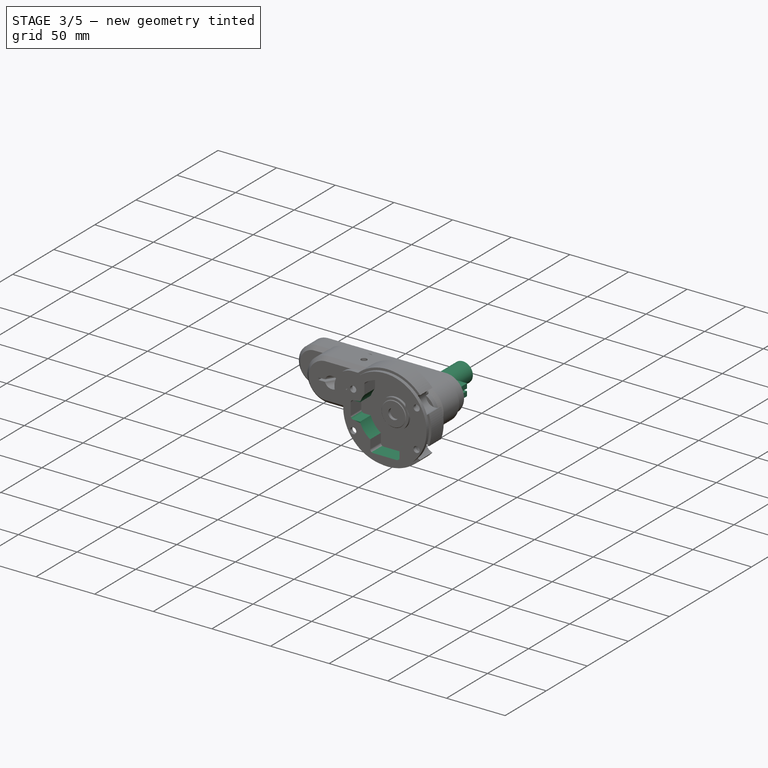
[diagram: stage 3 of 5 — iso view after this stage's code; geometry added in this stage tinted green]
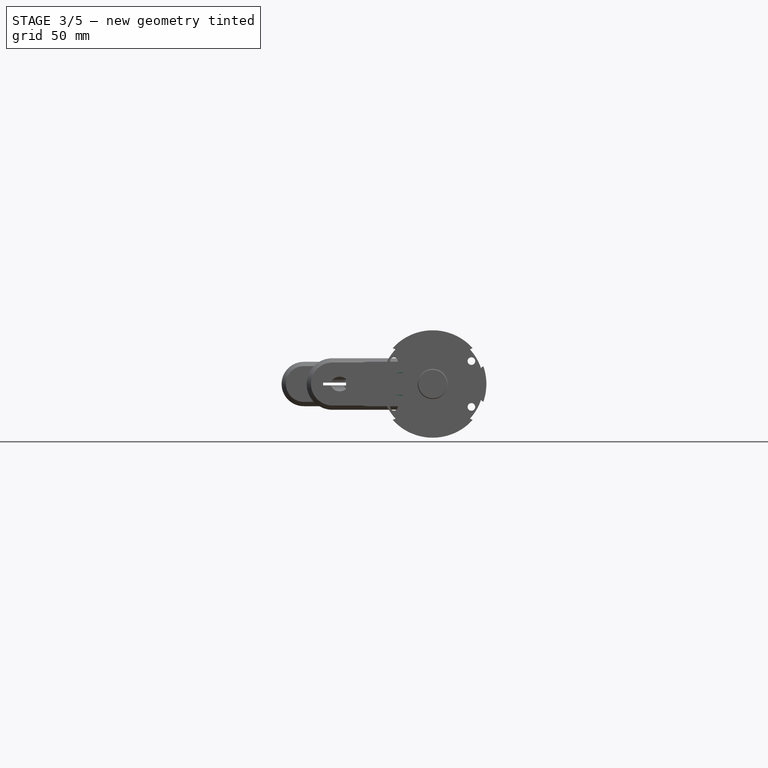
[diagram: stage 3 of 5 — front view after this stage's code; geometry added in this stage tinted green]
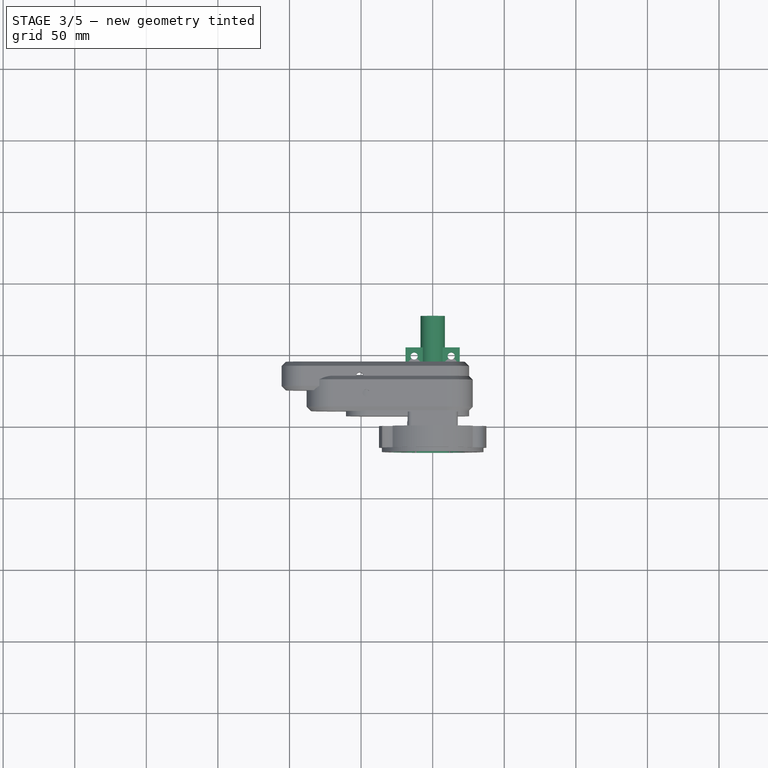
[diagram: stage 3 of 5 — top view after this stage's code; geometry added in this stage tinted green]
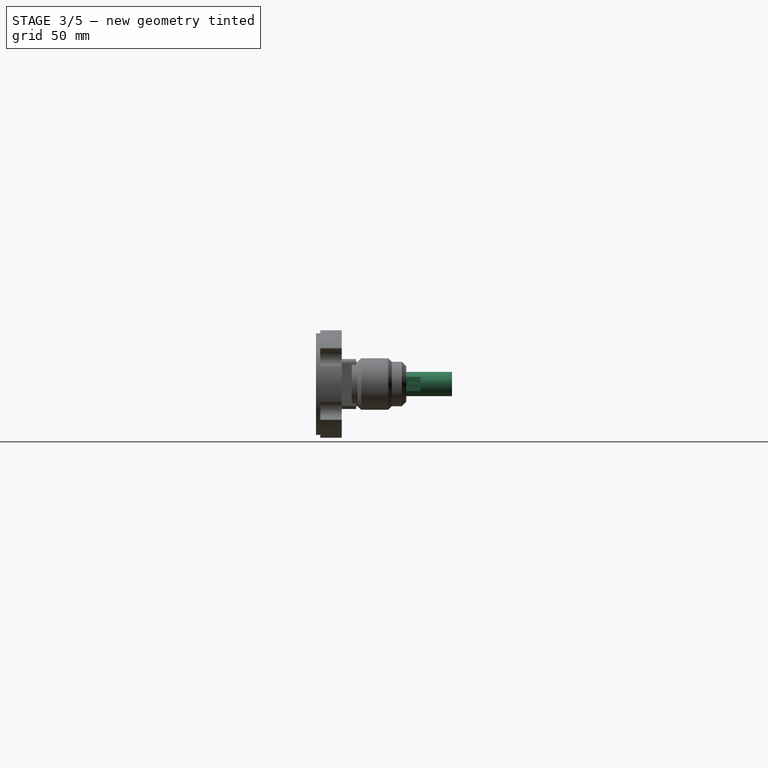
[diagram: stage 3 of 5 — right view after this stage's code; geometry added in this stage tinted green]
FEATURE [App::Part] Part001
  Group = -> [Body009,Body012,Body013,Body018,Body019,Body017,Body020,Body014,Body016,Body015,Cut,Cut001]
  Origin = -> Origin010
FEATURE [Sketcher::SketchObject] Sketch083
  FullyConstrained = true
  MapMode = 5
  Placement = pos=(0,0,0) rot=(1,0,0;1.5708rad)
  Support = -> [XZ_Plane025]
  sketch-geometry (1):
    g0: Circle CenterX=0 CenterY=0 CenterZ=0 NormalX=0 NormalY=0 NormalZ=1 AngleXU=0 Radius=37.5
  constraints (2):
    c: Coincident(g0,g-1)
    c: Diameter(g0) = 75
FEATURE [PartDesign::Pad] Pad043
  Direction = (0,-1,-2e-16)
  Length = 15
  Length2 = 10
  Placement = pos=(0,0,0) rot=(1,0,0;1.5708rad)
  Profile = -> Sketch083
  ReferenceAxis = -> Sketch083 [N_Axis]
  Type = 0
FEATURE [Sketcher::SketchObject] Sketch084
  FullyConstrained = true
  MapMode = 5
  Placement = pos=(0,-15,0) rot=(1,0,0;1.5708rad)
  Support = -> [Pad043]
  sketch-geometry (1):
    g0: Circle CenterX=0 CenterY=0 CenterZ=0 NormalX=0 NormalY=0 NormalZ=1 AngleXU=0 Radius=35.5
  constraints (2):
    c: Coincident(g0,g-1)
    c: Diameter(g0) = 71
FEATURE [PartDesign::Pad] Pad044
  BaseFeature = -> Pad043
  Direction = (0,-1,-2e-16)
  Length = 3
  Length2 = 10
  Placement = pos=(0,0,0) rot=(1,0,0;1.5708rad)
  Profile = -> Sketch084
  ReferenceAxis = -> Sketch084 [N_Axis]
  Type = 0
FEATURE [Sketcher::SketchObject] Sketch085
  FullyConstrained = true
  MapMode = 5
  Placement = pos=(0,-18,-1e-16) rot=(1,0,0;1.5708rad)
  Support = -> [Pad044]
  sketch-geometry (4):
    g0: Circle CenterX=-27.05 CenterY=16 CenterZ=0 NormalX=0 NormalY=0 NormalZ=1 AngleXU=0 Radius=2.65
    g1: Circle CenterX=-27.05 CenterY=-16 CenterZ=0 NormalX=0 NormalY=0 NormalZ=1 AngleXU=0 Radius=2.65
    g2: Circle CenterX=27.05 CenterY=-16 CenterZ=0 NormalX=0 NormalY=0 NormalZ=1 AngleXU=0 Radius=2.65
    g3: Circle CenterX=27.05 CenterY=16 CenterZ=0 NormalX=0 NormalY=0 NormalZ=1 AngleXU=0 Radius=2.65
  constraints (12):
    c: Diameter(g0) = 5.3
    c: Equal(g0,g1)
    c: Equal(g1,g2)
    c: Equal(g2,g3)
    c: DistanceY(g1,g0) = 32
    c: DistanceY(g3,g0) = 0
    c: DistanceY(g2,g1) = 0
    c: DistanceX(g1,g2) = 54.1
    c: DistanceX(g3,g2) = 0
    c: DistanceY(g-1,g3) = 16
    c: DistanceX(g1,g-1) = 27.05
    c: DistanceX(g0,g1) = 0
FEATURE [PartDesign::Pocket] Pocket022
  BaseFeature = -> Pad044
  Direction = (0,1,2e-16)
  Length = 3
  Length2 = 5
  Placement = pos=(0,0,0) rot=(1,0,0;1.5708rad)
  Profile = -> Sketch085
  ReferenceAxis = -> Sketch085 [N_Axis]
  Type = 0
FEATURE [Sketcher::SketchObject] Sketch086
  FullyConstrained = true
  MapMode = 5
  Placement = pos=(0,-18,-1e-16) rot=(1,0,0;1.5708rad)
  Support = -> [Pocket022]
  sketch-geometry (18):
    g0: ArcOfCircle CenterX=0 CenterY=0 CenterZ=0 NormalX=0 NormalY=0 NormalZ=1 AngleXU=0 Radius=22.5 StartAngle=2.46192 EndAngle=2.80176
    g1: LineSegment StartX=-17.5 StartY=14.1421 StartZ=0 EndX=-17.5 EndY=22.1421 EndZ=0
    g2: LineSegment StartX=17.5 StartY=14.1421 StartZ=0 EndX=17.5 EndY=22.1421 EndZ=0
    g3: ArcOfCircle CenterX=0 CenterY=0 CenterZ=0 NormalX=0 NormalY=0 NormalZ=1 AngleXU=0 Radius=29.2446 StartAngle=0.975371 EndAngle=2.16622
    g4: LineSegment StartX=-21.2132 StartY=7.5 StartZ=0 EndX=-26.7132 EndY=7.5 EndZ=0
    g5: LineSegment StartX=-21.2132 StartY=-7.5 StartZ=0 EndX=-26.7132 EndY=-7.5 EndZ=0
    g6: LineSegment StartX=-29.2132 StartY=5 StartZ=0 EndX=-29.2132 EndY=-5 EndZ=0
    g7: LineSegment StartX=-12.5 StartY=-18.7083 StartZ=0 EndX=-12.5 EndY=-26.2083 EndZ=0
    g8: LineSegment StartX=-10 StartY=-28.7083 StartZ=0 EndX=10 EndY=-28.7083 EndZ=0
    g9: LineSegment StartX=12.5 StartY=-26.2083 StartZ=0 EndX=12.5 EndY=-18.7083 EndZ=0
    g10: ArcOfCircle CenterX=10 CenterY=-26.2083 CenterZ=0 NormalX=0 NormalY=0 NormalZ=1 AngleXU=0 Radius=2.5 StartAngle=4.71239 EndAngle=6.28319
    g11: ArcOfCircle CenterX=-10 CenterY=-26.2083 CenterZ=0 NormalX=0 NormalY=0 NormalZ=1 AngleXU=0 Radius=2.5 StartAngle=3.14159 EndAngle=4.71239
    g12: ArcOfCircle CenterX=-26.7132 CenterY=-5 CenterZ=0 NormalX=0 NormalY=0 NormalZ=1 AngleXU=0 Radius=2.5 StartAngle=3.14159 EndAngle=4.71239
    g13: ArcOfCircle CenterX=-26.7132 CenterY=5 CenterZ=0 NormalX=0 NormalY=0 NormalZ=1 AngleXU=0 Radius=2.5 StartAngle=1.5708 EndAngle=3.14159
    g14: ArcOfCircle CenterX=-15 CenterY=22.1421 CenterZ=0 NormalX=0 NormalY=0 NormalZ=1 AngleXU=0 Radius=2.5 StartAngle=2.16622 EndAngle=3.14159
    g15: ArcOfCircle CenterX=15 CenterY=22.1421 CenterZ=0 NormalX=0 NormalY=0 NormalZ=1 AngleXU=0 Radius=2.5 StartAngle=-9e-16 EndAngle=0.975371
    g16: ArcOfCircle CenterX=0 CenterY=0 CenterZ=0 NormalX=0 NormalY=0 NormalZ=1 AngleXU=0 Radius=22.5 StartAngle=3.48143 EndAngle=4.12336
    g17: ArcOfCircle CenterX=0 CenterY=0 CenterZ=0 NormalX=0 NormalY=0 NormalZ=1 AngleXU=0 Radius=22.5 StartAngle=5.30142 EndAngle=6.96286
  constraints (50):
    c: Coincident(g0,g-1)
    c: Diameter(g0) = 45
    c: Vertical(g1)
    c: Vertical(g2)
    c: DistanceX(g1,g2) = 35
    c: DistanceY(g1,g2) = 0
    c: Coincident(g17,g2)
    c: Coincident(g0,g1)
    c: Coincident(g3,g0)
    c: Horizontal(g4)
    c: Horizontal(g5)
    c: Vertical(g6)
    c: PointOnObject(g7,g0)
    c: Vertical(g7)
    c: Horizontal(g8)
    c: PointOnObject(g9,g0)
    c: Vertical(g9)
    c: DistanceX(g0,g9) = 12.5
    c: Tangent(g9,g10) = -1.5708
    c: Tangent(g8,g10) = -1.5708
    c: Tangent(g7,g11) = -1.5708
    c: Tangent(g8,g11) = -1.5708
    c: DistanceY(g8,g9) = 10
    c: Diameter(g10) = 5
    c: Equal(g11,g10)
    c: DistanceX(g7,g9) = 25
    c: Tangent(g5,g12) = 1.5708
    c: Tangent(g6,g12) = -1.5708
    c: Tangent(g4,g13) = -1.5708
    c: Tangent(g6,g13) = -1.5708
    c: Tangent(g1,g14) = 1.5708
    c: Tangent(g3,g14) = -1.5708
    c: Tangent(g2,g15) = -1.5708
    c: Tangent(g3,g15) = -1.5708
    c: Equal(g11,g12)
    c: Equal(g12,g13)
    c: Equal(g13,g14)
    c: Equal(g13,g15)
    c: DistanceY(g5,g4) = 15
    c: DistanceY(g5,g0) = 7.5
    c: DistanceX(g6,g4) = 8
    c: DistanceY(g0,g1) = 8
    c: Equal(g0,g16)
    c: Coincident(g0,g4)
    c: Coincident(g16,g5)
    c: Coincident(g0,g16)
    c: Equal(g16,g17)
    c: PointOnObject(g16,g7)
    c: PointOnObject(g17,g9)
    c: Coincident(g16,g17)
FEATURE [PartDesign::Pocket] Pocket023
  BaseFeature = -> Pocket022
  Direction = (0,1,2e-16)
  Length = 13
  Length2 = 5
  Placement = pos=(0,0,0) rot=(1,0,0;1.5708rad)
  Profile = -> Sketch086
  ReferenceAxis = -> Sketch086 [N_Axis]
  Type = 0
FEATURE [Sketcher::SketchObject] Sketch087
  FullyConstrained = false
  MapMode = 5
  Placement = pos=(0,0,0) rot=(-1,0,0;1.5708rad)
  Support = -> [Pocket023]
  sketch-geometry (12):
    g0: Circle CenterX=30 CenterY=17.7784 CenterZ=0 NormalX=0 NormalY=0 NormalZ=1 AngleXU=0 Radius=7.5
    g1: GeomPoint X=27.9558 Y=24.9944 Z=0
    g2: GeomPoint X=35.3482 Y=12.5203 Z=0
    g3: Circle CenterX=-30 CenterY=17.7784 CenterZ=0 NormalX=0 NormalY=0 NormalZ=1 AngleXU=0 Radius=7.5
    g4: Circle CenterX=-30 CenterY=-17.7784 CenterZ=0 NormalX=0 NormalY=0 NormalZ=1 AngleXU=0 Radius=7.5
    g5: Circle CenterX=30 CenterY=-17.7784 CenterZ=0 NormalX=0 NormalY=0 NormalZ=1 AngleXU=0 Radius=7.5
    g6: GeomPoint X=-27.9558 Y=24.9944 Z=0
    g7: GeomPoint X=-35.3482 Y=12.5203 Z=0
    g8: GeomPoint X=-35.3482 Y=-12.5203 Z=0
    g9: GeomPoint X=-27.9558 Y=-24.9944 Z=0
    g10: GeomPoint X=35.3482 Y=-12.5203 Z=0
    g11: GeomPoint X=27.9558 Y=-24.9944 Z=0
  constraints (28):
    c: PointOnObject(g1,g0)
    c: PointOnObject(g2,g0)
    c: PointOnObject(g1,g-3)
    c: PointOnObject(g2,g-3)
    c: Diameter(g0) = 15
    c: Distance(g1,g2) = 14.5
    c: PointOnObject(g6,g3)
    c: PointOnObject(g7,g3)
    c: PointOnObject(g8,g4)
    c: PointOnObject(g9,g4)
    c: PointOnObject(g10,g5)
    c: PointOnObject(g11,g5)
    c: Equal(g3,g0)
    c: Equal(g0,g5)
    c: Equal(g5,g4)
    c: PointOnObject(g8,g-3)
    c: PointOnObject(g9,g-3)
    c: PointOnObject(g10,g-3)
    c: PointOnObject(g11,g-3)
    c: PointOnObject(g7,g-3)
    c: PointOnObject(g6,g-3)
    c: Distance(g8,g9) = 14.5
    c: Distance(g10,g11) = 14.5
    c: Distance(g6,g7) = 14.5
    c: DistanceY(g3,g0) = 0
    c: DistanceY(g5,g4) = 0
    c: DistanceX(g4,g3) = 0
    c: DistanceX(g3,g0) = 60
FEATURE [PartDesign::Pocket] Pocket024
  BaseFeature = -> Pocket023
  Direction = (0,-1,-2e-16)
  Length = 15
  Length2 = 5
  Placement = pos=(0,0,0) rot=(1,0,0;1.5708rad)
  Profile = -> Sketch087
  ReferenceAxis = -> Sketch087 [N_Axis]
  Type = 0
FEATURE [Sketcher::SketchObject] Sketch
  FullyConstrained = true
  MapMode = 5
  Placement = pos=(0,0,0) rot=(-1,0,0;1.5708rad)
  Support = -> [Pocket024]
  sketch-geometry (3):
    g0: Circle CenterX=0 CenterY=0 CenterZ=0 NormalX=0 NormalY=0 NormalZ=1 AngleXU=0 Radius=5
    g1: Circle CenterX=0 CenterY=0 CenterZ=0 NormalX=0 NormalY=0 NormalZ=1 AngleXU=0 Radius=6.5
    g2: Circle CenterX=0 CenterY=0 CenterZ=0 NormalX=0 NormalY=0 NormalZ=1 AngleXU=0 Radius=8.5
  constraints (6):
    c: Coincident(g0,g-1)
    c: Coincident(g1,g0)
    c: Coincident(g2,g0)
    c: Diameter(g2) = 17
    c: Diameter(g0) = 10
    c: Diameter(g1) = 13
FEATURE [PartDesign::Pad] Pad
  BaseFeature = -> Pocket024
  Direction = (0,1,2e-16)
  Length = 77
  Length2 = 10
  Placement = pos=(0,0,0) rot=(1,0,0;1.5708rad)
  Profile = -> Sketch
  ReferenceAxis = -> Sketch [N_Axis]
  Type = 0
FEATURE [Sketcher::SketchObject] Sketch101
  FullyConstrained = true
  MapMode = 5
  Placement = pos=(0,0,0) rot=(1,0,0;1.5708rad)
  Support = -> [XZ_Plane026]
  sketch-geometry (2):
    g0: Circle CenterX=0 CenterY=0 CenterZ=0 NormalX=0 NormalY=0 NormalZ=1 AngleXU=0 Radius=5.165
    g1: Circle CenterX=0 CenterY=0 CenterZ=0 NormalX=0 NormalY=0 NormalZ=1 AngleXU=0 Radius=6.445
  constraints (4):
    c: Coincident(g0,g-1)
    c: Coincident(g1,g0)
    c: Diameter(g0) = 10.33
    c: Diameter(g1) = 12.89
FEATURE [PartDesign::Pad] Pad052
  Direction = (0,-1,2e-16)
  Length = 35
  Length2 = 10
  Placement = pos=(0,0,0) rot=(1,0,0;1.5708rad)
  Profile = -> Sketch101
  ReferenceAxis = -> Sketch101 [N_Axis]
  Reversed = true
  Type = 0
FEATURE [Sketcher::SketchObject] Sketch102
  ExternalGeometry = -> [Pad052]
  FullyConstrained = true
  MapMode = 5
  Placement = pos=(0,35,-1.55e-14) rot=(-1,0,0;1.5708rad)
  Support = -> [Pad052]
  sketch-geometry (1):
    g0: Circle CenterX=0 CenterY=0 CenterZ=0 NormalX=0 NormalY=0 NormalZ=1 AngleXU=0 Radius=11.5
  constraints (2):
    c: Coincident(g0,g-1)
    c: Diameter(g0) = 23
FEATURE [PartDesign::Pad] Pad053
  BaseFeature = -> Pad052
  Direction = (0,1,-2e-16)
  Length = 4
  Length2 = 10
  Placement = pos=(0,0,0) rot=(1,0,0;1.5708rad)
  Profile = -> Sketch102
  ReferenceAxis = -> Sketch102 [N_Axis]
  Type = 0
FEATURE [PartDesign::Body] Body
  Group = -> [Sketch101,Pad052,Sketch102,Pad053,Sketch103,Pad054,Sketch104,Pad055,Sketch105,Pocket,Sketch106,Pocket025,Sketch107,Pocket026,Sketch108,Pocket027,Sketch109,Pocket028]
  Origin = -> Origin026
  Placement = pos=(0,99,0) rot=(0,0,1;0rad)
  Tip = -> Pocket028
FEATURE [Sketcher::SketchObject] Sketch110
  FullyConstrained = true
  MapMode = 5
  Placement = pos=(0,0,0) rot=(-1,0,0;1.5708rad)
  Support = -> [Pad]
FEATURE [PartDesign::Body] Body021  label="Base_mount001"
  Group = -> [Sketch083,Pad043,Sketch084,Pad044,Sketch085,Pocket022,Sketch086,Pocket023,Sketch087,Pocket024,Sketch,Pad,Sketch100,Pad051,Sketch110]
  Origin = -> Origin025
  Placement = pos=(0,55.5,0) rot=(0,0,1;0rad)
  Tip = -> Pad051
FEATURE [App::Part] Part
  Group = -> [Body021,Body]
  Origin = -> Origin
FEATURE [Sketcher::SketchObject] Sketch111
  FullyConstrained = true
  MapMode = 5
  Placement = pos=(0,0,0) rot=(1,0,0;1.5708rad)
  Support = -> [XZ_Plane028]
  sketch-geometry (1):
    g0: Circle CenterX=0 CenterY=0 CenterZ=0 NormalX=0 NormalY=0 NormalZ=1 AngleXU=0 Radius=37.5
  constraints (2):
    c: Coincident(g0,g-1)
    c: Diameter(g0) = 75
FEATURE [PartDesign::Pad] Pad056
  Direction = (0,-1,2e-16)
  Length = 15
  Length2 = 10
  Placement = pos=(0,0,0) rot=(1,0,0;1.5708rad)
  Profile = -> Sketch111
  ReferenceAxis = -> Sketch111 [N_Axis]
  Type = 0
FEATURE [Sketcher::SketchObject] Sketch112
  FullyConstrained = true
  MapMode = 5
  Placement = pos=(0,-15,6.6e-15) rot=(1,0,0;1.5708rad)
  Support = -> [Pad056]
  sketch-geometry (1):
    g0: Circle CenterX=0 CenterY=0 CenterZ=0 NormalX=0 NormalY=0 NormalZ=1 AngleXU=0 Radius=35.5
  constraints (2):
    c: Coincident(g0,g-1)
    c: Diameter(g0) = 71
FEATURE [PartDesign::Pad] Pad057
  BaseFeature = -> Pad056
  Direction = (0,-1,2e-16)
  Length = 3
  Length2 = 10
  Placement = pos=(0,0,0) rot=(1,0,0;1.5708rad)
  Profile = -> Sketch112
  ReferenceAxis = -> Sketch112 [N_Axis]
  Type = 0
FEATURE [Sketcher::SketchObject] Sketch113
  FullyConstrained = true
  MapMode = 5
  Placement = pos=(0,-18,8.1e-15) rot=(1,0,0;1.5708rad)
  Support = -> [Pad057]
  sketch-geometry (4):
    g0: Circle CenterX=-27.05 CenterY=16 CenterZ=0 NormalX=0 NormalY=0 NormalZ=1 AngleXU=0 Radius=2.65
    g1: Circle CenterX=-27.05 CenterY=-16 CenterZ=0 NormalX=0 NormalY=0 NormalZ=1 AngleXU=0 Radius=2.65
    g2: Circle CenterX=27.05 CenterY=-16 CenterZ=0 NormalX=0 NormalY=0 NormalZ=1 AngleXU=0 Radius=2.65
    g3: Circle CenterX=27.05 CenterY=16 CenterZ=0 NormalX=0 NormalY=0 NormalZ=1 AngleXU=0 Radius=2.65
  constraints (12):
    c: Diameter(g0) = 5.3
    c: Equal(g0,g1)
    c: Equal(g1,g2)
    c: Equal(g2,g3)
    c: DistanceY(g1,g0) = 32
    c: DistanceY(g3,g0) = 0
    c: DistanceY(g2,g1) = 0
    c: DistanceX(g1,g2) = 54.1
    c: DistanceX(g3,g2) = 0
    c: DistanceY(g-1,g3) = 16
    c: DistanceX(g1,g-1) = 27.05
    c: DistanceX(g0,g1) = 0
FEATURE [PartDesign::Pocket] Pocket029
  BaseFeature = -> Pad057
  Direction = (0,1,-2e-16)
  Length = 3
  Length2 = 5
  Placement = pos=(0,0,0) rot=(1,0,0;1.5708rad)
  Profile = -> Sketch113
  ReferenceAxis = -> Sketch113 [N_Axis]
  Type = 0
FEATURE [Sketcher::SketchObject] Sketch114
  FullyConstrained = true
  MapMode = 5
  Placement = pos=(0,-18,8.1e-15) rot=(1,0,0;1.5708rad)
  Support = -> [Pocket029]
  sketch-geometry (18):
    g0: ArcOfCircle CenterX=0 CenterY=0 CenterZ=0 NormalX=0 NormalY=0 NormalZ=1 AngleXU=0 Radius=23.5 StartAngle=2.41085 EndAngle=2.74857
    g1: LineSegment StartX=-17.5 StartY=15.6844 StartZ=0 EndX=-17.5 EndY=23.6844 EndZ=0
    g2: LineSegment StartX=17.5 StartY=15.6844 StartZ=0 EndX=17.5 EndY=23.6844 EndZ=0
    g3: ArcOfCircle CenterX=0 CenterY=0 CenterZ=0 NormalX=0 NormalY=0 NormalZ=1 AngleXU=0 Radius=30.5348 StartAngle=1.00623 EndAngle=2.13536
    g4: LineSegment StartX=-21.7083 StartY=9 StartZ=0 EndX=-27.2083 EndY=9 EndZ=0
    g5: LineSegment StartX=-21.7083 StartY=-9 StartZ=0 EndX=-27.2083 EndY=-9 EndZ=0
    g6: LineSegment StartX=-29.7083 StartY=6.5 StartZ=0 EndX=-29.7083 EndY=-6.5 EndZ=0
    g7: LineSegment StartX=-12.5 StartY=-19.8997 StartZ=0 EndX=-12.5 EndY=-27.3997 EndZ=0
    g8: LineSegment StartX=-10 StartY=-29.8997 StartZ=0 EndX=10 EndY=-29.8997 EndZ=0
    g9: LineSegment StartX=12.5 StartY=-27.3997 StartZ=0 EndX=12.5 EndY=-19.8997 EndZ=0
    g10: ArcOfCircle CenterX=10 CenterY=-27.3997 CenterZ=0 NormalX=0 NormalY=0 NormalZ=1 AngleXU=0 Radius=2.5 StartAngle=4.71239 EndAngle=6.28319
    g11: ArcOfCircle CenterX=-10 CenterY=-27.3997 CenterZ=0 NormalX=0 NormalY=0 NormalZ=1 AngleXU=0 Radius=2.5 StartAngle=3.14159 EndAngle=4.71239
    g12: ArcOfCircle CenterX=-27.2083 CenterY=-6.5 CenterZ=0 NormalX=0 NormalY=0 NormalZ=1 AngleXU=0 Radius=2.5 StartAngle=3.14159 EndAngle=4.71239
    g13: ArcOfCircle CenterX=-27.2083 CenterY=6.5 CenterZ=0 NormalX=0 NormalY=0 NormalZ=1 AngleXU=0 Radius=2.5 StartAngle=1.5708 EndAngle=3.14159
    g14: ArcOfCircle CenterX=-15 CenterY=23.6844 CenterZ=0 NormalX=0 NormalY=0 NormalZ=1 AngleXU=0 Radius=2.5 StartAngle=2.13536 EndAngle=3.14159
    g15: ArcOfCircle CenterX=15 CenterY=23.6844 CenterZ=0 NormalX=0 NormalY=0 NormalZ=1 AngleXU=0 Radius=2.5 StartAngle=0 EndAngle=1.00623
    g16: ArcOfCircle CenterX=0 CenterY=0 CenterZ=0 NormalX=0 NormalY=0 NormalZ=1 AngleXU=0 Radius=23.5 StartAngle=3.53461 EndAngle=4.15153
    g17: ArcOfCircle CenterX=0 CenterY=0 CenterZ=0 NormalX=0 NormalY=0 NormalZ=1 AngleXU=0 Radius=23.5 StartAngle=5.27325 EndAngle=7.01393
  constraints (50):
    c: Coincident(g0,g-1)
    c: Diameter(g0) = 47
    c: Vertical(g1)
    c: Vertical(g2)
    c: DistanceX(g1,g2) = 35
    c: DistanceY(g1,g2) = 0
    c: Coincident(g17,g2)
    c: Coincident(g0,g1)
    c: Coincident(g3,g0)
    c: Horizontal(g4)
    c: Horizontal(g5)
    c: Vertical(g6)
    c: PointOnObject(g7,g0)
    c: Vertical(g7)
    c: Horizontal(g8)
    c: PointOnObject(g9,g0)
    c: Vertical(g9)
    c: DistanceX(g0,g9) = 12.5
    c: Tangent(g9,g10) = -1.5708
    c: Tangent(g8,g10) = -1.5708
    c: Tangent(g7,g11) = -1.5708
    c: Tangent(g8,g11) = -1.5708
    c: DistanceY(g8,g9) = 10
    c: Diameter(g10) = 5
    c: Equal(g11,g10)
    c: DistanceX(g7,g9) = 25
    c: Tangent(g5,g12) = 1.5708
    c: Tangent(g6,g12) = -1.5708
    c: Tangent(g4,g13) = -1.5708
    c: Tangent(g6,g13) = -1.5708
    c: Tangent(g1,g14) = 1.5708
    c: Tangent(g3,g14) = -1.5708
    c: Tangent(g2,g15) = -1.5708
    c: Tangent(g3,g15) = -1.5708
    c: Equal(g11,g12)
    c: Equal(g12,g13)
    c: Equal(g13,g14)
    c: Equal(g13,g15)
    c: DistanceY(g5,g4) = 18
    c: DistanceY(g5,g0) = 9
    c: DistanceX(g6,g4) = 8
    c: DistanceY(g0,g1) = 8
    c: Equal(g0,g16)
    c: Coincident(g0,g4)
    c: Coincident(g16,g5)
    c: Coincident(g0,g16)
    c: Equal(g16,g17)
    c: PointOnObject(g16,g7)
    c: PointOnObject(g17,g9)
    c: Coincident(g16,g17)
FEATURE [PartDesign::Pocket] Pocket030
  BaseFeature = -> Pocket029
  Direction = (0,1,-4e-16)
  Length = 13
  Length2 = 5
  Placement = pos=(0,0,0) rot=(1,0,0;1.5708rad)
  Profile = -> Sketch114
  ReferenceAxis = -> Sketch114 [N_Axis]
  Type = 0
FEATURE [Sketcher::SketchObject] Sketch115
  FullyConstrained = false
  MapMode = 5
  Placement = pos=(0,0,0) rot=(-1,0,0;1.5708rad)
  Support = -> [Pocket030]
  sketch-geometry (12):
    g0: Circle CenterX=30 CenterY=17.7784 CenterZ=0 NormalX=0 NormalY=0 NormalZ=1 AngleXU=0 Radius=7.5
    g1: GeomPoint X=27.9558 Y=24.9944 Z=0
    g2: GeomPoint X=35.3482 Y=12.5203 Z=0
    g3: Circle CenterX=-30 CenterY=17.7784 CenterZ=0 NormalX=0 NormalY=0 NormalZ=1 AngleXU=0 Radius=7.5
    g4: Circle CenterX=-30 CenterY=-17.7784 CenterZ=0 NormalX=0 NormalY=0 NormalZ=1 AngleXU=0 Radius=7.5
    g5: Circle CenterX=30 CenterY=-17.7784 CenterZ=0 NormalX=0 NormalY=0 NormalZ=1 AngleXU=0 Radius=7.5
    g6: GeomPoint X=-27.9558 Y=24.9944 Z=0
    g7: GeomPoint X=-35.3482 Y=12.5203 Z=0
    g8: GeomPoint X=-35.3482 Y=-12.5203 Z=0
    g9: GeomPoint X=-27.9558 Y=-24.9944 Z=0
    g10: GeomPoint X=35.3482 Y=-12.5203 Z=0
    g11: GeomPoint X=27.9558 Y=-24.9944 Z=0
  constraints (28):
    c: PointOnObject(g1,g0)
    c: PointOnObject(g2,g0)
    c: PointOnObject(g1,g-3)
    c: PointOnObject(g2,g-3)
    c: Diameter(g0) = 15
    c: Distance(g1,g2) = 14.5
    c: PointOnObject(g6,g3)
    c: PointOnObject(g7,g3)
    c: PointOnObject(g8,g4)
    c: PointOnObject(g9,g4)
    c: PointOnObject(g10,g5)
    c: PointOnObject(g11,g5)
    c: Equal(g3,g0)
    c: Equal(g0,g5)
    c: Equal(g5,g4)
    c: PointOnObject(g8,g-3)
    c: PointOnObject(g9,g-3)
    c: PointOnObject(g10,g-3)
    c: PointOnObject(g11,g-3)
    c: PointOnObject(g7,g-3)
    c: PointOnObject(g6,g-3)
    c: Distance(g8,g9) = 14.5
    c: Distance(g10,g11) = 14.5
    c: Distance(g6,g7) = 14.5
    c: DistanceY(g3,g0) = 0
    c: DistanceY(g5,g4) = 0
    c: DistanceX(g4,g3) = 0
    c: DistanceX(g3,g0) = 60
FEATURE [PartDesign::Pocket] Pocket031
  BaseFeature = -> Pocket030
  Direction = (0,-1,4e-16)
  Length = 15
  Length2 = 5
  Placement = pos=(0,0,0) rot=(1,0,0;1.5708rad)
  Profile = -> Sketch115
  ReferenceAxis = -> Sketch115 [N_Axis]
  Type = 0
FEATURE [Sketcher::SketchObject] Sketch116
  FullyConstrained = true
  MapMode = 5
  Placement = pos=(0,0,0) rot=(-1,0,0;1.5708rad)
  Support = -> [Pocket031]
  sketch-geometry (2):
    g0: Circle CenterX=0 CenterY=0 CenterZ=0 NormalX=0 NormalY=0 NormalZ=1 AngleXU=0 Radius=5.1
    g1: Circle CenterX=0 CenterY=0 CenterZ=0 NormalX=0 NormalY=0 NormalZ=1 AngleXU=0 Radius=8
  constraints (4):
    c: Coincident(g0,g-1)
    c: Diameter(g0) = 10.2
    c: Coincident(g1,g0)
    c: Diameter(g1) = 16
FEATURE [PartDesign::Pad] Pad058
  BaseFeature = -> Pocket031
  Direction = (0,1,-4e-16)
  Length = 55
  Length2 = 10
  Placement = pos=(0,0,0) rot=(1,0,0;1.5708rad)
  Profile = -> Sketch116
  ReferenceAxis = -> Sketch116 [N_Axis]
  Type = 0
FEATURE [Sketcher::SketchObject] Sketch117
  ExternalGeometry = -> [Pad058]
  FullyConstrained = true
  MapMode = 5
  Placement = pos=(0,0,0) rot=(-1,0,0;1.5708rad)
  Support = -> [Pad058]
  sketch-geometry (4):
    g0: LineSegment StartX=-17.8581 StartY=1.5 StartZ=0 EndX=-7.85812 EndY=1.5 EndZ=0
    g1: LineSegment StartX=-7.85812 StartY=-1.5 StartZ=0 EndX=-17.8581 EndY=-1.5 EndZ=0
    g2: LineSegment StartX=-17.8581 StartY=-1.5 StartZ=0 EndX=-17.8581 EndY=1.5 EndZ=0
    g3: ArcOfCircle CenterX=0 CenterY=0 CenterZ=0 NormalX=0 NormalY=0 NormalZ=1 AngleXU=0 Radius=8 StartAngle=2.95298 EndAngle=3.33021
  constraints (12):
    c: Coincident(g1,g2)
    c: Coincident(g2,g0)
    c: Horizontal(g0)
    c: Horizontal(g1)
    c: Vertical(g2)
    c: DistanceY(g2,g2) = 3
    c: DistanceX(g1,g1) = 10
    c: PointOnObject(g1,g-3)
    c: Equal(g0,g1)
    c: Coincident(g3,g-3)
    c: Coincident(g3,g0)
    c: Coincident(g3,g1)
FEATURE [PartDesign::Pad] Pad059
  BaseFeature = -> Pad058
  Direction = (0,1,-4e-16)
  Length = 25
  Length2 = 10
  Placement = pos=(0,0,0) rot=(1,0,0;1.5708rad)
  Profile = -> Sketch117
  ReferenceAxis = -> Sketch117 [N_Axis]
  Type = 0
FEATURE [Sketcher::SketchObject] Sketch118
  ExternalGeometry = -> [Pad059]
  FullyConstrained = true
  MapMode = 5
  Placement = pos=(0,-8e-16,-1.5) rot=(1,0,0;3.14159rad)
  Support = -> [Pad059]
  sketch-geometry (3):
    g0: LineSegment StartX=-10.8581 StartY=-25 StartZ=0 EndX=-17.8581 EndY=-3 EndZ=0
    g1: LineSegment StartX=-17.8581 StartY=-3 StartZ=0 EndX=-17.8581 EndY=-25 EndZ=0
    g2: LineSegment StartX=-17.8581 StartY=-25 StartZ=0 EndX=-10.8581 EndY=-25 EndZ=0
  constraints (10):
    c: PointOnObject(g0,g-3)
    c: Coincident(g1,g0)
    c: Coincident(g1,g-4)
    c: Vertical(g1)
    c: Coincident(g2,g1)
    c: Coincident(g2,g0)
    c: DistanceX(g2,g2) = 7
    c: DistanceX(g-3,g-3) = 10
    c: DistanceY(g-4,g-4) = 25
    c: DistanceY(g1,g1) = 22
FEATURE [PartDesign::Pocket] Pocket032
  BaseFeature = -> Pad059
  Direction = (0,6e-16,1)
  Length = 5
  Length2 = 5
  Placement = pos=(0,0,0) rot=(1,0,0;1.5708rad)
  Profile = -> Sketch118
  ReferenceAxis = -> Sketch118 [N_Axis]
  Type = 0
FEATURE [PartDesign::Chamfer] Chamfer
  Angle = 45
  Base = -> Pocket032 [Edge54,Edge55,Edge56,Edge57,Edge59,Edge60,Edge74,Edge58]
  BaseFeature = -> Pocket032
  ChamferType = 0
  FlipDirection = false
  Placement = pos=(0,0,0) rot=(1,0,0;1.5708rad)
  Size = 0.5
  Size2 = 1
  SupportTransform = false
  UseAllEdges = false
FEATURE [PartDesign::PolarPattern] PolarPattern
  Angle = 360
  Axis = -> Sketch117 [N_Axis]
  BaseFeature = -> Chamfer
  Occurrences = 5
  Originals = -> [Pad059,Pocket032,Chamfer]
  Placement = pos=(0,0,0) rot=(1,0,0;1.5708rad)
FEATURE [Sketcher::SketchObject] Sketch119
  FullyConstrained = true
  MapMode = 5
  Placement = pos=(0,55,-3.64e-14) rot=(-1,0,0;1.5708rad)
  Support = -> [PolarPattern]
  sketch-geometry (8):
    g0: LineSegment StartX=-4.5 StartY=1 StartZ=0 EndX=-8.5 EndY=1 EndZ=0
    g1: LineSegment StartX=-8.5 StartY=1 StartZ=0 EndX=-8.5 EndY=-1 EndZ=0
    g2: LineSegment StartX=-8.5 StartY=-1 StartZ=0 EndX=-4.5 EndY=-1 EndZ=0
    g3: LineSegment StartX=-4.5 StartY=-1 StartZ=0 EndX=-4.5 EndY=1 EndZ=0
    g4: LineSegment StartX=4.5 StartY=1 StartZ=0 EndX=8.5 EndY=1 EndZ=0
    g5: LineSegment StartX=8.5 StartY=1 StartZ=0 EndX=8.5 EndY=-1 EndZ=0
    g6: LineSegment StartX=8.5 StartY=-1 StartZ=0 EndX=4.5 EndY=-1 EndZ=0
    g7: LineSegment StartX=4.5 StartY=-1 StartZ=0 EndX=4.5 EndY=1 EndZ=0
  constraints (24):
    c: Coincident(g0,g1)
    c: Coincident(g1,g2)
    c: Coincident(g2,g3)
    c: Coincident(g3,g0)
    c: Horizontal(g0)
    c: Horizontal(g2)
    c: Vertical(g1)
    c: Vertical(g3)
    c: Coincident(g4,g5)
    c: Coincident(g5,g6)
    c: Coincident(g6,g7)
    c: Coincident(g7,g4)
    c: Horizontal(g4)
    c: Horizontal(g6)
    c: Vertical(g5)
    c: Vertical(g7)
    c: Equal(g0,g4)
    c: Equal(g7,g3)
    c: DistanceY(g3,g3) = 2
    c: DistanceX(g0,g0) = 4
    c: DistanceX(g0,g-1) = 4.5
    c: DistanceX(g-1,g4) = 4.5
    c: DistanceY(g-1,g4) = 1
    c: DistanceY(g-1,g0) = 1
FEATURE [PartDesign::Pocket] Pocket033
  BaseFeature = -> PolarPattern
  Direction = (0,-1,7e-16)
  Length = 22
  Length2 = 5
  Placement = pos=(0,0,0) rot=(1,0,0;1.5708rad)
  Profile = -> Sketch119
  ReferenceAxis = -> Sketch119 [N_Axis]
  Type = 0
FEATURE [Sketcher::SketchObject] Sketch120
  ExternalGeometry = -> [Pocket033]
  FullyConstrained = true
  MapMode = 5
  Placement = pos=(0,55,-3.64e-14) rot=(-1,0,0;1.5708rad)
  Support = -> [Pocket033]
  sketch-geometry (16):
    g0: LineSegment StartX=-6.245 StartY=5 StartZ=0 EndX=-18.9373 EndY=5 EndZ=0
    g1: LineSegment StartX=-18.9373 StartY=5 StartZ=0 EndX=-18.9373 EndY=1 EndZ=0
    g2: LineSegment StartX=-18.9373 StartY=-1 StartZ=0 EndX=-18.9373 EndY=-5 EndZ=0
    g3: LineSegment StartX=-18.9373 StartY=-5 StartZ=0 EndX=-6.245 EndY=-5 EndZ=0
    g4: LineSegment StartX=6.245 StartY=5 StartZ=0 EndX=18.9373 EndY=5 EndZ=0
    g5: LineSegment StartX=18.9373 StartY=5 StartZ=0 EndX=18.9373 EndY=1 EndZ=0
    g6: LineSegment StartX=18.9373 StartY=-1 StartZ=0 EndX=18.9373 EndY=-5 EndZ=0
    g7: LineSegment StartX=18.9373 StartY=-5 StartZ=0 EndX=6.245 EndY=-5 EndZ=0
    g8: LineSegment StartX=-6.245 StartY=5 StartZ=0 EndX=-6.245 EndY=1 EndZ=0
    g9: LineSegment StartX=-6.245 StartY=1 StartZ=0 EndX=-18.9373 EndY=1 EndZ=0
    g10: LineSegment StartX=-18.9373 StartY=-1 StartZ=0 EndX=-6.245 EndY=-1 EndZ=0
    g11: LineSegment StartX=-6.245 StartY=-1 StartZ=0 EndX=-6.245 EndY=-5 EndZ=0
    g12: LineSegment StartX=6.245 StartY=-5 StartZ=0 EndX=6.245 EndY=-1 EndZ=0
    g13: LineSegment StartX=6.245 StartY=-1 StartZ=0 EndX=18.9373 EndY=-1 EndZ=0
    g14: LineSegment StartX=18.9373 StartY=1 StartZ=0 EndX=6.245 EndY=1 EndZ=0
    g15: LineSegment StartX=6.245 StartY=1 StartZ=0 EndX=6.245 EndY=5 EndZ=0
  constraints (48):
    c: Coincident(g0,g1)
    c: Horizontal(g0)
    c: Vertical(g1)
    c: Coincident(g2,g3)
    c: Horizontal(g3)
    c: Vertical(g2)
    c: Coincident(g4,g5)
    c: Horizontal(g4)
    c: Vertical(g5)
    c: Coincident(g6,g7)
    c: Horizontal(g7)
    c: Vertical(g6)
    c: DistanceX(g1,g-3) = 11
    c: PointOnObject(g4,g-3)
    c: Equal(g1,g5)
    c: Equal(g5,g6)
    c: Equal(g6,g2)
    c: DistanceY(g1,g1) = 4
    c: PointOnObject(g7,g-4)
    c: Coincident(g8,g0)
    c: Vertical(g8)
    c: Coincident(g9,g8)
    c: Coincident(g9,g1)
    c: Horizontal(g9)
    c: Coincident(g10,g2)
    c: Horizontal(g10)
    c: Coincident(g11,g10)
    c: Coincident(g11,g3)
    c: Vertical(g11)
    c: Coincident(g12,g7)
    c: Vertical(g12)
    c: Coincident(g13,g12)
    c: Coincident(g13,g6)
    c: Horizontal(g13)
    c: Coincident(g14,g5)
    c: Horizontal(g14)
    c: Coincident(g15,g14)
    c: Coincident(g15,g4)
    c: Vertical(g15)
    c: DistanceY(g-3,g8) = 0
    c: DistanceY(g-3,g14) = 0
    c: DistanceY(g12,g-4) = 0
    c: DistanceY(g-4,g10) = 0
    c: PointOnObject(g3,g-4)
    c: PointOnObject(g0,g-3)
    c: Equal(g10,g9)
    c: Equal(g13,g10)
    c: Equal(g13,g14)
FEATURE [PartDesign::Pad] Pad060
  BaseFeature = -> Pocket033
  Direction = (0,1,-7e-16)
  Length = 12
  Length2 = 10
  Placement = pos=(0,0,0) rot=(1,0,0;1.5708rad)
  Profile = -> Sketch120
  ReferenceAxis = -> Sketch120 [N_Axis]
  Reversed = true
  Type = 0
FEATURE [Sketcher::SketchObject] Sketch121
  ExternalGeometry = -> [Pad060]
  FullyConstrained = true
  MapMode = 5
  Placement = pos=(0,-4.2e-15,-5) rot=(1,0,0;3.14159rad)
  Support = -> [Pad060]
  sketch-geometry (2):
    g0: Circle CenterX=-12.9373 CenterY=-49 CenterZ=0 NormalX=0 NormalY=0 NormalZ=1 AngleXU=0 Radius=2.5
    g1: Circle CenterX=12.9373 CenterY=-49 CenterZ=0 NormalX=0 NormalY=0 NormalZ=1 AngleXU=0 Radius=2.5
  constraints (7):
    c: Diameter(g1) = 5
    c: Diameter(g0) = 5
    c: DistanceX(g-5,g-5) = 12.6923
    c: DistanceX(g-7,g0) = 6
    c: DistanceY(g0,g-7) = 6
    c: DistanceY(g1,g-6) = 6
    c: DistanceX(g1,g-6) = 6
FEATURE [PartDesign::Pocket] Pocket034
  BaseFeature = -> Pad060
  Direction = (0,8e-16,1)
  Length = 5
  Length2 = 5
  Placement = pos=(0,0,0) rot=(1,0,0;1.5708rad)
  Profile = -> Sketch121
  ReferenceAxis = -> Sketch121 [N_Axis]
  Type = 1
FEATURE [Sketcher::SketchObject] Sketch128
  FullyConstrained = true
  MapMode = 5
  Placement = pos=(0,10,-8.9e-15) rot=(-1,0,0;1.5708rad)
  Support = -> [Pad063]
  sketch-geometry (1):
    g0: Circle CenterX=0 CenterY=0 CenterZ=0 NormalX=0 NormalY=0 NormalZ=1 AngleXU=0 Radius=11.025
  constraints (2):
    c: Coincident(g0,g-1)
    c: Diameter(g0) = 22.05
FEATURE [PartDesign::Pocket] Pocket038
  BaseFeature = -> Pad063
  Direction = (0,-1,7e-16)
  Length = 6
  Length2 = 5
  Placement = pos=(0,0,0) rot=(1,0,0;1.5708rad)
  Profile = -> Sketch128
  ReferenceAxis = -> Sketch128 [N_Axis]
  Type = 0
FEATURE [Sketcher::SketchObject] Sketch129
  FullyConstrained = true
  MapMode = 5
  Placement = pos=(0,-5,3.4e-15) rot=(1,0,0;1.5708rad)
  Support = -> [Pocket038]
  sketch-geometry (1):
    g0: Circle CenterX=0 CenterY=0 CenterZ=0 NormalX=0 NormalY=0 NormalZ=1 AngleXU=0 Radius=8.25
  constraints (2):
    c: Coincident(g0,g-1)
    c: Diameter(g0) = 16.5
FEATURE [PartDesign::Pocket] Pocket039
  BaseFeature = -> Pocket038
  Direction = (0,1,-7e-16)
  Length = 9
  Length2 = 5
  Placement = pos=(0,0,0) rot=(1,0,0;1.5708rad)
  Profile = -> Sketch129
  ReferenceAxis = -> Sketch129 [N_Axis]
  Type = 0
FEATURE [PartDesign::Fillet] Fillet006
  Base = -> Pocket039 [Edge19,Edge2,Edge30,Edge41,Edge31,Edge34,Edge27,Edge46]
  BaseFeature = -> Pocket039
  Placement = pos=(0,0,0) rot=(1,0,0;1.5708rad)
  Radius = 1.5
  SupportTransform = false
  UseAllEdges = false
FEATURE [Sketcher::SketchObject] Sketch130
  ExternalGeometry = -> [Fillet006]
  FullyConstrained = true
  MapMode = 5
  Placement = pos=(0,10,-8.9e-15) rot=(-1,0,0;1.5708rad)
  Support = -> [Fillet006]
  sketch-geometry (4):
    g0: Circle CenterX=-13.5 CenterY=13.5 CenterZ=0 NormalX=0 NormalY=0 NormalZ=1 AngleXU=0 Radius=2.5
    g1: Circle CenterX=13.5 CenterY=13.5 CenterZ=0 NormalX=0 NormalY=0 NormalZ=1 AngleXU=0 Radius=2.5
    g2: Circle CenterX=13.5 CenterY=-13.5 CenterZ=0 NormalX=0 NormalY=0 NormalZ=1 AngleXU=0 Radius=2.5
    g3: Circle CenterX=-13.5 CenterY=-13.5 CenterZ=0 NormalX=0 NormalY=0 NormalZ=1 AngleXU=0 Radius=2.5
  constraints (12):
    c: Equal(g0,g1)
    c: Equal(g1,g2)
    c: Equal(g3,g2)
    c: Diameter(g2) = 5
    c: DistanceY(g1,g0) = 0
    c: DistanceY(g2,g3) = 0
    c: DistanceX(g3,g0) = 0
    c: DistanceX(g1,g2) = 0
    c: DistanceX(g-3,g0) = 4
    c: DistanceX(g2,g-4) = 4
    c: DistanceY(g-4,g2) = 4
    c: DistanceY(g0,g-3) = 4
FEATURE [PartDesign::Hole] Hole009
  BaseFeature = -> Fillet006
  CustomThreadClearance = 0
  Depth = 25
  DepthType = 0
  Diameter = 5
  DrillForDepth = false
  DrillPoint = 1
  DrillPointAngle = 118
  HoleCutCountersinkAngle = 90
  HoleCutCustomValues = false
  HoleCutDepth = 0
  HoleCutDiameter = 6.1
  HoleCutType = 0
  ModelThread = false
  Placement = pos=(0,0,0) rot=(1,0,0;1.5708rad)
  Profile = -> Sketch130
  Tapered = false
  TaperedAngle = 90
  ThreadClass = 0
  ThreadDepth = 25
  ThreadDepthType = 0
  ThreadDirection = 0
  ThreadFit = 0
  ThreadSize = 12
  ThreadType = 1
  Threaded = false
  UseCustomThreadClearance = false
FEATURE [PartDesign::Fillet] Fillet007
  Base = -> Hole009 [Edge77,Edge73,Edge75,Edge72]
  BaseFeature = -> Hole009
  Placement = pos=(0,0,0) rot=(1,0,0;1.5708rad)
  Radius = 3
  SupportTransform = false
  UseAllEdges = false
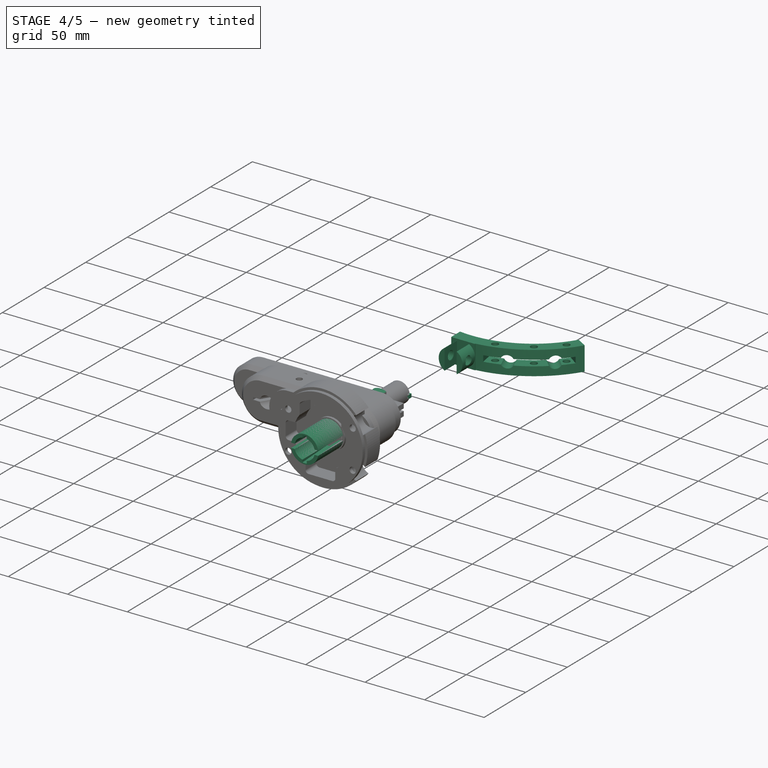
[diagram: stage 4 of 5 — iso view after this stage's code; geometry added in this stage tinted green]
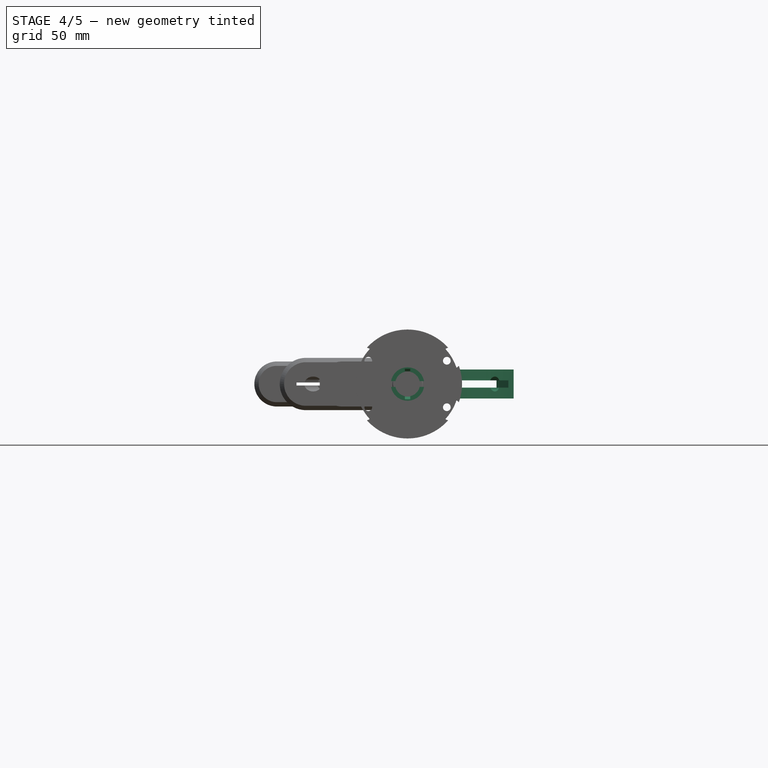
[diagram: stage 4 of 5 — front view after this stage's code; geometry added in this stage tinted green]
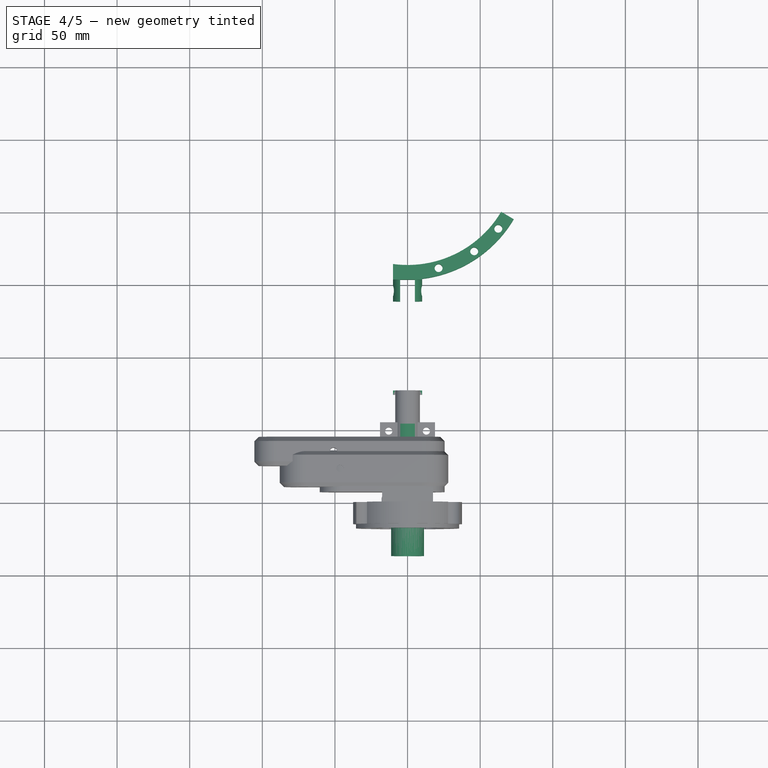
[diagram: stage 4 of 5 — top view after this stage's code; geometry added in this stage tinted green]
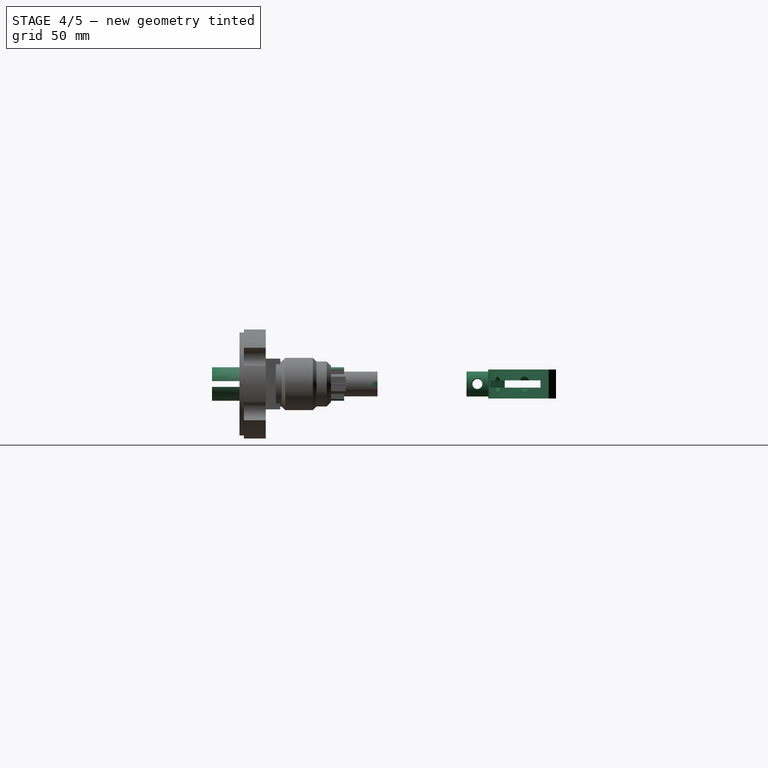
[diagram: stage 4 of 5 — right view after this stage's code; geometry added in this stage tinted green]
FEATURE [Sketcher::SketchObject] Sketch033
  FullyConstrained = true
  MapMode = 5
  Placement = pos=(0,0,0) rot=(1,0,0;1.5708rad)
  Support = -> [XZ_Plane013]
  sketch-geometry (1):
    g0: Circle CenterX=0 CenterY=0 CenterZ=0 NormalX=0 NormalY=0 NormalZ=1 AngleXU=0 Radius=37.5
  constraints (2):
    c: Coincident(g0,g-1)
    c: Diameter(g0) = 75
FEATURE [PartDesign::Pad] Pad015
  Direction = (0,-1,2e-16)
  Length = 15
  Length2 = 10
  Placement = pos=(0,0,0) rot=(1,0,0;1.5708rad)
  Profile = -> Sketch033
  ReferenceAxis = -> Sketch033 [N_Axis]
  Type = 0
FEATURE [Sketcher::SketchObject] Sketch034
  FullyConstrained = true
  MapMode = 5
  Placement = pos=(0,-15,6.6e-15) rot=(1,0,0;1.5708rad)
  Support = -> [Pad015]
  sketch-geometry (1):
    g0: Circle CenterX=0 CenterY=0 CenterZ=0 NormalX=0 NormalY=0 NormalZ=1 AngleXU=0 Radius=35.5
  constraints (2):
    c: Coincident(g0,g-1)
    c: Diameter(g0) = 71
FEATURE [PartDesign::Pad] Pad016
  BaseFeature = -> Pad015
  Direction = (0,-1,2e-16)
  Length = 3
  Length2 = 10
  Placement = pos=(0,0,0) rot=(1,0,0;1.5708rad)
  Profile = -> Sketch034
  ReferenceAxis = -> Sketch034 [N_Axis]
  Type = 0
FEATURE [Sketcher::SketchObject] Sketch035
  FullyConstrained = true
  MapMode = 5
  Placement = pos=(0,-18,8.1e-15) rot=(1,0,0;1.5708rad)
  Support = -> [Pad016]
  sketch-geometry (4):
    g0: Circle CenterX=-27.05 CenterY=16 CenterZ=0 NormalX=0 NormalY=0 NormalZ=1 AngleXU=0 Radius=2.65
    g1: Circle CenterX=-27.05 CenterY=-16 CenterZ=0 NormalX=0 NormalY=0 NormalZ=1 AngleXU=0 Radius=2.65
    g2: Circle CenterX=27.05 CenterY=-16 CenterZ=0 NormalX=0 NormalY=0 NormalZ=1 AngleXU=0 Radius=2.65
    g3: Circle CenterX=27.05 CenterY=16 CenterZ=0 NormalX=0 NormalY=0 NormalZ=1 AngleXU=0 Radius=2.65
  constraints (12):
    c: Diameter(g0) = 5.3
    c: Equal(g0,g1)
    c: Equal(g1,g2)
    c: Equal(g2,g3)
    c: DistanceY(g1,g0) = 32
    c: DistanceY(g3,g0) = 0
    c: DistanceY(g2,g1) = 0
    c: DistanceX(g1,g2) = 54.1
    c: DistanceX(g3,g2) = 0
    c: DistanceY(g-1,g3) = 16
    c: DistanceX(g1,g-1) = 27.05
    c: DistanceX(g0,g1) = 0
FEATURE [PartDesign::Pocket] Pocket009
  BaseFeature = -> Pad016
  Direction = (0,1,-2e-16)
  Length = 3
  Length2 = 5
  Placement = pos=(0,0,0) rot=(1,0,0;1.5708rad)
  Profile = -> Sketch035
  ReferenceAxis = -> Sketch035 [N_Axis]
  Type = 0
FEATURE [Sketcher::SketchObject] Sketch036
  FullyConstrained = true
  MapMode = 5
  Placement = pos=(0,-18,8.1e-15) rot=(1,0,0;1.5708rad)
  Support = -> [Pocket009]
  sketch-geometry (18):
    g0: ArcOfCircle CenterX=0 CenterY=0 CenterZ=0 NormalX=0 NormalY=0 NormalZ=1 AngleXU=0 Radius=23.5 StartAngle=2.41085 EndAngle=2.74857
    g1: LineSegment StartX=-17.5 StartY=15.6844 StartZ=0 EndX=-17.5 EndY=23.6844 EndZ=0
    g2: LineSegment StartX=17.5 StartY=15.6844 StartZ=0 EndX=17.5 EndY=23.6844 EndZ=0
    g3: ArcOfCircle CenterX=0 CenterY=0 CenterZ=0 NormalX=0 NormalY=0 NormalZ=1 AngleXU=0 Radius=30.5348 StartAngle=1.00623 EndAngle=2.13536
    g4: LineSegment StartX=-21.7083 StartY=9 StartZ=0 EndX=-27.2083 EndY=9 EndZ=0
    g5: LineSegment StartX=-21.7083 StartY=-9 StartZ=0 EndX=-27.2083 EndY=-9 EndZ=0
    g6: LineSegment StartX=-29.7083 StartY=6.5 StartZ=0 EndX=-29.7083 EndY=-6.5 EndZ=0
    g7: LineSegment StartX=-12.5 StartY=-19.8997 StartZ=0 EndX=-12.5 EndY=-27.3997 EndZ=0
    g8: LineSegment StartX=-10 StartY=-29.8997 StartZ=0 EndX=10 EndY=-29.8997 EndZ=0
    g9: LineSegment StartX=12.5 StartY=-27.3997 StartZ=0 EndX=12.5 EndY=-19.8997 EndZ=0
    g10: ArcOfCircle CenterX=10 CenterY=-27.3997 CenterZ=0 NormalX=0 NormalY=0 NormalZ=1 AngleXU=0 Radius=2.5 StartAngle=4.71239 EndAngle=6.28319
    g11: ArcOfCircle CenterX=-10 CenterY=-27.3997 CenterZ=0 NormalX=0 NormalY=0 NormalZ=1 AngleXU=0 Radius=2.5 StartAngle=3.14159 EndAngle=4.71239
    g12: ArcOfCircle CenterX=-27.2083 CenterY=-6.5 CenterZ=0 NormalX=0 NormalY=0 NormalZ=1 AngleXU=0 Radius=2.5 StartAngle=3.14159 EndAngle=4.71239
    g13: ArcOfCircle CenterX=-27.2083 CenterY=6.5 CenterZ=0 NormalX=0 NormalY=0 NormalZ=1 AngleXU=0 Radius=2.5 StartAngle=1.5708 EndAngle=3.14159
    g14: ArcOfCircle CenterX=-15 CenterY=23.6844 CenterZ=0 NormalX=0 NormalY=0 NormalZ=1 AngleXU=0 Radius=2.5 StartAngle=2.13536 EndAngle=3.14159
    g15: ArcOfCircle CenterX=15 CenterY=23.6844 CenterZ=0 NormalX=0 NormalY=0 NormalZ=1 AngleXU=0 Radius=2.5 StartAngle=0 EndAngle=1.00623
    g16: ArcOfCircle CenterX=0 CenterY=0 CenterZ=0 NormalX=0 NormalY=0 NormalZ=1 AngleXU=0 Radius=23.5 StartAngle=3.53461 EndAngle=4.15153
    g17: ArcOfCircle CenterX=0 CenterY=0 CenterZ=0 NormalX=0 NormalY=0 NormalZ=1 AngleXU=0 Radius=23.5 StartAngle=5.27325 EndAngle=7.01393
  constraints (50):
    c: Coincident(g0,g-1)
    c: Diameter(g0) = 47
    c: Vertical(g1)
    c: Vertical(g2)
    c: DistanceX(g1,g2) = 35
    c: DistanceY(g1,g2) = 0
    c: Coincident(g17,g2)
    c: Coincident(g0,g1)
    c: Coincident(g3,g0)
    c: Horizontal(g4)
    c: Horizontal(g5)
    c: Vertical(g6)
    c: PointOnObject(g7,g0)
    c: Vertical(g7)
    c: Horizontal(g8)
    c: PointOnObject(g9,g0)
    c: Vertical(g9)
    c: DistanceX(g0,g9) = 12.5
    c: Tangent(g9,g10) = -1.5708
    c: Tangent(g8,g10) = -1.5708
    c: Tangent(g7,g11) = -1.5708
    c: Tangent(g8,g11) = -1.5708
    c: DistanceY(g8,g9) = 10
    c: Diameter(g10) = 5
    c: Equal(g11,g10)
    c: DistanceX(g7,g9) = 25
    c: Tangent(g5,g12) = 1.5708
    c: Tangent(g6,g12) = -1.5708
    c: Tangent(g4,g13) = -1.5708
    c: Tangent(g6,g13) = -1.5708
    c: Tangent(g1,g14) = 1.5708
    c: Tangent(g3,g14) = -1.5708
    c: Tangent(g2,g15) = -1.5708
    c: Tangent(g3,g15) = -1.5708
    c: Equal(g11,g12)
    c: Equal(g12,g13)
    c: Equal(g13,g14)
    c: Equal(g13,g15)
    c: DistanceY(g5,g4) = 18
    c: DistanceY(g5,g0) = 9
    c: DistanceX(g6,g4) = 8
    c: DistanceY(g0,g1) = 8
    c: Equal(g0,g16)
    c: Coincident(g0,g4)
    c: Coincident(g16,g5)
    c: Coincident(g0,g16)
    c: Equal(g16,g17)
    c: PointOnObject(g16,g7)
    c: PointOnObject(g17,g9)
    c: Coincident(g16,g17)
FEATURE [PartDesign::Pocket] Pocket010
  BaseFeature = -> Pocket009
  Direction = (0,1,-4e-16)
  Length = 13
  Length2 = 5
  Placement = pos=(0,0,0) rot=(1,0,0;1.5708rad)
  Profile = -> Sketch036
  ReferenceAxis = -> Sketch036 [N_Axis]
  Type = 0
FEATURE [Sketcher::SketchObject] Sketch037
  FullyConstrained = false
  MapMode = 5
  Placement = pos=(0,0,0) rot=(-1,0,0;1.5708rad)
  Support = -> [Pocket010]
  sketch-geometry (12):
    g0: Circle CenterX=30 CenterY=17.7784 CenterZ=0 NormalX=0 NormalY=0 NormalZ=1 AngleXU=0 Radius=7.5
    g1: GeomPoint X=27.9558 Y=24.9944 Z=0
    g2: GeomPoint X=35.3482 Y=12.5203 Z=0
    g3: Circle CenterX=-30 CenterY=17.7784 CenterZ=0 NormalX=0 NormalY=0 NormalZ=1 AngleXU=0 Radius=7.5
    g4: Circle CenterX=-30 CenterY=-17.7784 CenterZ=0 NormalX=0 NormalY=0 NormalZ=1 AngleXU=0 Radius=7.5
    g5: Circle CenterX=30 CenterY=-17.7784 CenterZ=0 NormalX=0 NormalY=0 NormalZ=1 AngleXU=0 Radius=7.5
    g6: GeomPoint X=-27.9558 Y=24.9944 Z=0
    g7: GeomPoint X=-35.3482 Y=12.5203 Z=0
    g8: GeomPoint X=-35.3482 Y=-12.5203 Z=0
    g9: GeomPoint X=-27.9558 Y=-24.9944 Z=0
    g10: GeomPoint X=35.3482 Y=-12.5203 Z=0
    g11: GeomPoint X=27.9558 Y=-24.9944 Z=0
  constraints (28):
    c: PointOnObject(g1,g0)
    c: PointOnObject(g2,g0)
    c: PointOnObject(g1,g-3)
    c: PointOnObject(g2,g-3)
    c: Diameter(g0) = 15
    c: Distance(g1,g2) = 14.5
    c: PointOnObject(g6,g3)
    c: PointOnObject(g7,g3)
    c: PointOnObject(g8,g4)
    c: PointOnObject(g9,g4)
    c: PointOnObject(g10,g5)
    c: PointOnObject(g11,g5)
    c: Equal(g3,g0)
    c: Equal(g0,g5)
    c: Equal(g5,g4)
    c: PointOnObject(g8,g-3)
    c: PointOnObject(g9,g-3)
    c: PointOnObject(g10,g-3)
    c: PointOnObject(g11,g-3)
    c: PointOnObject(g7,g-3)
    c: PointOnObject(g6,g-3)
    c: Distance(g8,g9) = 14.5
    c: Distance(g10,g11) = 14.5
    c: Distance(g6,g7) = 14.5
    c: DistanceY(g3,g0) = 0
    c: DistanceY(g5,g4) = 0
    c: DistanceX(g4,g3) = 0
    c: DistanceX(g3,g0) = 60
FEATURE [PartDesign::Pocket] Pocket011
  BaseFeature = -> Pocket010
  Direction = (0,-1,4e-16)
  Length = 15
  Length2 = 5
  Placement = pos=(0,0,0) rot=(1,0,0;1.5708rad)
  Profile = -> Sketch037
  ReferenceAxis = -> Sketch037 [N_Axis]
  Type = 0
FEATURE [Sketcher::SketchObject] Sketch038
  FullyConstrained = true
  MapMode = 5
  Placement = pos=(0,0,0) rot=(-1,0,0;1.5708rad)
  Support = -> [Pocket011]
  sketch-geometry (4):
    g0: LineSegment StartX=-17.5 StartY=17.5 StartZ=0 EndX=17.5 EndY=17.5 EndZ=0
    g1: LineSegment StartX=17.5 StartY=17.5 StartZ=0 EndX=17.5 EndY=-17.5 EndZ=0
    g2: LineSegment StartX=17.5 StartY=-17.5 StartZ=0 EndX=-17.5 EndY=-17.5 EndZ=0
    g3: LineSegment StartX=-17.5 StartY=-17.5 StartZ=0 EndX=-17.5 EndY=17.5 EndZ=0
  constraints (12):
    c: Coincident(g0,g1)
    c: Coincident(g1,g2)
    c: Coincident(g2,g3)
    c: Coincident(g3,g0)
    c: Horizontal(g0)
    c: Horizontal(g2)
    c: Vertical(g1)
    c: Vertical(g3)
    c: DistanceX(g0,g0) = 35
    c: Equal(g0,g3)
    c: DistanceY(g-1,g0) = 17.5
    c: DistanceX(g0,g-1) = 17.5
FEATURE [PartDesign::Pad] Pad017
  BaseFeature = -> Pocket011
  Direction = (0,1,-7e-16)
  Length = 10
  Length2 = 10
  Placement = pos=(0,0,0) rot=(1,0,0;1.5708rad)
  Profile = -> Sketch038
  ReferenceAxis = -> Sketch038 [N_Axis]
  Type = 0
FEATURE [Sketcher::SketchObject] Sketch039
  FullyConstrained = true
  MapMode = 5
  Placement = pos=(0,10,-8.9e-15) rot=(-1,0,0;1.5708rad)
  Support = -> [Pad017]
  sketch-geometry (1):
    g0: Circle CenterX=0 CenterY=0 CenterZ=0 NormalX=0 NormalY=0 NormalZ=1 AngleXU=0 Radius=11.025
  constraints (2):
    c: Coincident(g0,g-1)
    c: Diameter(g0) = 22.05
FEATURE [PartDesign::Pocket] Pocket012
  BaseFeature = -> Pad017
  Direction = (0,-1,7e-16)
  Length = 6
  Length2 = 5
  Placement = pos=(0,0,0) rot=(1,0,0;1.5708rad)
  Profile = -> Sketch039
  ReferenceAxis = -> Sketch039 [N_Axis]
  Type = 0
FEATURE [Sketcher::SketchObject] Sketch040
  FullyConstrained = true
  MapMode = 5
  Placement = pos=(0,-5,3.4e-15) rot=(1,0,0;1.5708rad)
  Support = -> [Pocket012]
  sketch-geometry (1):
    g0: Circle CenterX=0 CenterY=0 CenterZ=0 NormalX=0 NormalY=0 NormalZ=1 AngleXU=0 Radius=8.25
  constraints (2):
    c: Coincident(g0,g-1)
    c: Diameter(g0) = 16.5
FEATURE [PartDesign::Pocket] Pocket013
  BaseFeature = -> Pocket012
  Direction = (0,1,-7e-16)
  Length = 9
  Length2 = 5
  Placement = pos=(0,0,0) rot=(1,0,0;1.5708rad)
  Profile = -> Sketch040
  ReferenceAxis = -> Sketch040 [N_Axis]
  Type = 0
FEATURE [PartDesign::Fillet] Fillet001
  Base = -> Pocket013 [Edge19,Edge2,Edge30,Edge41,Edge31,Edge34,Edge27,Edge46]
  BaseFeature = -> Pocket013
  Placement = pos=(0,0,0) rot=(1,0,0;1.5708rad)
  Radius = 1.5
  SupportTransform = false
  UseAllEdges = false
FEATURE [Sketcher::SketchObject] Sketch061
  FullyConstrained = true
  MapMode = 5
  Support = -> [XY_Plane018]
  sketch-geometry (6):
    g0: LineSegment StartX=-10 StartY=0 StartZ=0 EndX=10 EndY=0 EndZ=0
    g1: LineSegment StartX=10 StartY=0 StartZ=0 EndX=10 EndY=0.590285 EndZ=0
    g2: LineSegment StartX=-10 StartY=0 StartZ=0 EndX=-10 EndY=10.6697 EndZ=0
    g3: ArcOfCircle CenterX=0 CenterY=85 CenterZ=0 NormalX=0 NormalY=0 NormalZ=1 AngleXU=0 Radius=75 StartAngle=4.57866 EndAngle=5.74675
    g4: ArcOfCircle CenterX=0 CenterY=85 CenterZ=0 NormalX=0 NormalY=0 NormalZ=1 AngleXU=0 Radius=85 StartAngle=4.83031 EndAngle=5.74675
    g5: LineSegment StartX=64.4654 StartY=46.6697 StartZ=0 EndX=73.0608 EndY=41.5589 EndZ=0
  constraints (19):
    c: Horizontal(g0)
    c: Coincident(g1,g0)
    c: Vertical(g1)
    c: Coincident(g2,g0)
    c: Vertical(g2)
    c: DistanceX(g0,g0) = 20
    c: DistanceY(g0,g-1) = 0
    c: DistanceX(g-1,g0) = 10
    c: DistanceX(g4,g-1) = 0
    c: DistanceY(g-1,g4) = 85
    c: Coincident(g3,g4)
    c: Diameter(g3) = 150
    c: Diameter(g4) = 170
    c: Coincident(g3,g2)
    c: Coincident(g1,g4)
    c: DistanceY(g2,g3) = 36
    c: Coincident(g5,g4)
    c: Coincident(g5,g3)
    c: DistanceX(g4) = 73.0608
FEATURE [PartDesign::Pad] Pad032
  Direction = (0,0,1)
  Length = 20
  Length2 = 10
  Profile = -> Sketch061
  ReferenceAxis = -> Sketch061 [N_Axis]
  Type = 0
FEATURE [Sketcher::SketchObject] Sketch062
  ExternalGeometry = -> [Pad032]
  FullyConstrained = true
  MapMode = 5
  Placement = pos=(0,0,0) rot=(1,0,0;1.5708rad)
  Support = -> [Pad032]
  sketch-geometry (4):
    g0: ArcOfCircle CenterX=0 CenterY=10 CenterZ=0 NormalX=0 NormalY=0 NormalZ=1 AngleXU=0 Radius=10 StartAngle=2.10308 EndAngle=4.18011
    g1: LineSegment StartX=-5.075 StartY=18.6165 StartZ=0 EndX=-5.075 EndY=1.38348 EndZ=0
    g2: LineSegment StartX=5.075 StartY=1.38348 StartZ=0 EndX=5.075 EndY=18.6165 EndZ=0
    g3: ArcOfCircle CenterX=0 CenterY=10 CenterZ=0 NormalX=0 NormalY=0 NormalZ=1 AngleXU=0 Radius=10 StartAngle=5.24467 EndAngle=7.3217
  constraints (13):
    c: PointOnObject(g0,g-2)
    c: Diameter(g0) = 20
    c: DistanceY(g-1,g0) = 10
    c: Vertical(g1)
    c: Vertical(g2)
    c: Equal(g1,g2)
    c: DistanceX(g1,g2) = 10.15
    c: Coincident(g3,g2)
    c: Coincident(g0,g1)
    c: Equal(g0,g3)
    c: Coincident(g0,g1)
    c: Coincident(g3,g2)
    c: Coincident(g0,g3)
FEATURE [PartDesign::Pad] Pad033
  BaseFeature = -> Pad032
  Direction = (0,-1,2e-16)
  Length = 15
  Length2 = 10
  Profile = -> Sketch062
  ReferenceAxis = -> Sketch062 [N_Axis]
  Type = 0
FEATURE [Sketcher::SketchObject] Sketch063
  ExternalGeometry = -> [Pad033]
  FullyConstrained = true
  MapMode = 5
  Placement = pos=(5.075,0,0) rot=(0.57735,-0.57735,-0.57735;2.0944rad)
  Support = -> [Pad033]
  sketch-geometry (1):
    g0: Circle CenterX=7.5 CenterY=10 CenterZ=0 NormalX=0 NormalY=0 NormalZ=1 AngleXU=0 Radius=2.5
  constraints (3):
    c: DistanceY(g0,g-5) = 10
    c: DistanceX(g-5,g0) = 7.5
    c: Diameter(g0) = 5
FEATURE [Sketcher::SketchObject] Sketch064
  FullyConstrained = true
  MapMode = 5
  Placement = pos=(-5.075,0,0) rot=(0.57735,0.57735,0.57735;2.0944rad)
  Support = -> [Pad033]
  sketch-geometry (1):
    g0: Circle CenterX=-7.5 CenterY=10 CenterZ=0 NormalX=0 NormalY=0 NormalZ=1 AngleXU=0 Radius=2.5
  constraints (3):
    c: Diameter(g0) = 5
    c: DistanceY(g-1,g0) = 10
    c: DistanceX(g0,g-1) = 7.5
FEATURE [PartDesign::Hole] Hole004
  BaseFeature = -> Pad033
  CustomThreadClearance = 0
  Depth = 25
  DepthType = 0
  Diameter = 6.828
  DrillForDepth = false
  DrillPoint = 1
  DrillPointAngle = 118
  HoleCutCountersinkAngle = 90
  HoleCutCustomValues = false
  HoleCutDepth = 0
  HoleCutDiameter = 6.1
  HoleCutType = 0
  ModelThread = true
  Profile = -> Sketch063
  Tapered = false
  TaperedAngle = 90
  ThreadClass = 0
  ThreadDepth = 25
  ThreadDepthType = 0
  ThreadDirection = 0
  ThreadFit = 0
  ThreadSize = 16
  ThreadType = 1
  Threaded = true
  UseCustomThreadClearance = false
FEATURE [PartDesign::Hole] Hole005
  BaseFeature = -> Hole004
  CustomThreadClearance = 0
  Depth = 25
  DepthType = 0
  Diameter = 6.828
  DrillForDepth = false
  DrillPoint = 1
  DrillPointAngle = 118
  HoleCutCountersinkAngle = 90
  HoleCutCustomValues = false
  HoleCutDepth = 0
  HoleCutDiameter = 6.1
  HoleCutType = 0
  ModelThread = true
  Profile = -> Sketch064
  Tapered = false
  TaperedAngle = 90
  ThreadClass = 0
  ThreadDepth = 25
  ThreadDepthType = 0
  ThreadDirection = 0
  ThreadFit = 0
  ThreadSize = 16
  ThreadType = 1
  Threaded = true
  UseCustomThreadClearance = false
FEATURE [Sketcher::SketchObject] Sketch065
  FullyConstrained = true
  MapMode = 5
  Placement = pos=(0,0,20) rot=(0,0,1;0rad)
  Support = -> [Hole005]
  sketch-geometry (5):
    g0: GeomPoint X=0 Y=85 Z=0
    g1: ArcOfCircle CenterX=0 CenterY=85 CenterZ=0 NormalX=0 NormalY=0 NormalZ=1 AngleXU=0 Radius=75 StartAngle=4.90043 EndAngle=5.66837
    g2: ArcOfCircle CenterX=0 CenterY=85 CenterZ=0 NormalX=0 NormalY=0 NormalZ=1 AngleXU=0 Radius=85 StartAngle=4.90043 EndAngle=5.66837
    g3: LineSegment StartX=14.02 StartY=11.3221 StartZ=0 EndX=15.8893 EndY=1.49833 EndZ=0
    g4: LineSegment StartX=61.2661 StartY=41.7396 StartZ=0 EndX=69.435 EndY=35.9716 EndZ=0
  constraints (14):
    c: PointOnObject(g0,g-2)
    c: DistanceY(g-1,g0) = 85
    c: Coincident(g1,g0)
    c: Coincident(g2,g1)
    c: Diameter(g1) = 150
    c: Diameter(g2) = 170
    c: Angle(g1) = 0.767945
    c: Angle(g2) = 0.767945
    c: Coincident(g3,g1)
    c: Coincident(g3,g2)
    c: Coincident(g4,g1)
    c: Coincident(g4,g2)
    c: Perpendicular(g1,g4)
    c: DistanceX(g1) = 14.02
FEATURE [PartDesign::Pocket] Pocket017
  BaseFeature = -> Hole005
  Direction = (0,0,-1)
  Length = 12.5
  Length2 = -7.5
  Profile = -> Sketch065
  ReferenceAxis = -> Sketch065 [N_Axis]
  Type = 4
FEATURE [Sketcher::SketchObject] Sketch066
  FullyConstrained = true
  MapMode = 5
  Placement = pos=(0,0,20) rot=(0,0,1;0rad)
  Support = -> [Pocket017]
  sketch-geometry (4):
    g0: GeomPoint X=0 Y=85 Z=0
    g1: Circle CenterX=62.47 CenterY=35 CenterZ=0 NormalX=0 NormalY=0 NormalZ=1 AngleXU=0 Radius=2.5
    g2: Circle CenterX=45.8861 CenterY=19.4678 CenterZ=0 NormalX=0 NormalY=0 NormalZ=1 AngleXU=0 Radius=2.5
    g3: Circle CenterX=21.3791 CenterY=7.90956 CenterZ=0 NormalX=0 NormalY=0 NormalZ=1 AngleXU=0 Radius=2.5
  constraints (11):
    c: PointOnObject(g0,g-2)
    c: DistanceY(g-1,g0) = 85
    c: Diameter(g2) = 5
    c: Diameter(g1) = 5
    c: Diameter(g3) = 5
    c: DistanceX(g3) = 21.3791
    c: DistanceY(g3) = 7.90956
    c: DistanceX(g2) = 45.8861
    c: DistanceY(g2) = 19.4678
    c: DistanceX(g1) = 62.47
    c: DistanceY(g1) = 35
FEATURE [PartDesign::Hole] Hole006
  BaseFeature = -> Pocket017
  CustomThreadClearance = 0
  Depth = 25
  DepthType = 0
  Diameter = 5.5
  DrillForDepth = false
  DrillPoint = 1
  DrillPointAngle = 118
  HoleCutCountersinkAngle = 90
  HoleCutCustomValues = false
  HoleCutDepth = 0
  HoleCutDiameter = 6.1
  HoleCutType = 0
  ModelThread = false
  Profile = -> Sketch066
  Tapered = false
  TaperedAngle = 90
  ThreadClass = 0
  ThreadDepth = 25
  ThreadDepthType = 0
  ThreadDirection = 0
  ThreadFit = 0
  ThreadSize = 13
  ThreadType = 1
  Threaded = false
  UseCustomThreadClearance = false
FEATURE [PartDesign::Body] Body014  label="End_effector"
  Group = -> [Sketch061,Pad032,Sketch062,Pad033,Sketch063,Sketch064,Hole004,Hole005,Sketch065,Pocket017,Sketch066,Hole006]
  Origin = -> Origin018
  Placement = pos=(0,0,-10) rot=(0,0,1;0rad)
  Tip = -> Hole006
FEATURE [Sketcher::SketchObject] Sketch067
  FullyConstrained = true
  MapMode = 5
  Placement = pos=(0,0,0) rot=(1,0,0;1.5708rad)
  Support = -> [XZ_Plane019]
  sketch-geometry (1):
    g0: Circle CenterX=0 CenterY=0 CenterZ=0 NormalX=0 NormalY=0 NormalZ=1 AngleXU=0 Radius=5.1
  constraints (2):
    c: Coincident(g0,g-1)
    c: Diameter(g0) = 10.2
FEATURE [PartDesign::Pad] Pad034
  Direction = (0,-1,-2e-16)
  Length = 190
  Length2 = 10
  Placement = pos=(0,0,0) rot=(1,0,0;1.5708rad)
  Profile = -> Sketch067
  ReferenceAxis = -> Sketch067 [N_Axis]
  Type = 0
FEATURE [PartDesign::Body] Body015  label="stylus_45"
  Group = -> [Sketch067,Pad034]
  Origin = -> Origin019
  Placement = pos=(0,85,0) rot=(0,0,1;0.785398rad)
  Tip = -> Pad034
FEATURE [Sketcher::SketchObject] Sketch068
  FullyConstrained = true
  MapMode = 5
  Placement = pos=(0,0,0) rot=(1,0,0;1.5708rad)
  Support = -> [XZ_Plane020]
  sketch-geometry (1):
    g0: Circle CenterX=0 CenterY=0 CenterZ=0 NormalX=0 NormalY=0 NormalZ=1 AngleXU=0 Radius=5.1
  constraints (2):
    c: Coincident(g0,g-1)
    c: Diameter(g0) = 10.2
FEATURE [PartDesign::Pad] Pad035
  Direction = (0,-1,-2e-16)
  Length = 190
  Length2 = 10
  Placement = pos=(0,0,0) rot=(1,0,0;1.5708rad)
  Profile = -> Sketch068
  ReferenceAxis = -> Sketch068 [N_Axis]
  Type = 0
FEATURE [PartDesign::Body] Body009  label="Base_mount"
  Group = -> [Sketch033,Pad015,Sketch034,Pad016,Sketch035,Pocket009,Sketch036,Pocket010,Sketch037,Pocket011,Sketch038,Pad017,Sketch039,Pocket012,Sketch040,Pocket013,Fillet001,Sketch082,Hole008,Fillet005]
  Origin = -> Origin013
  Placement = pos=(0,80.25,0) rot=(0,0,1;0rad)
  Tip = -> Fillet005
FEATURE [Part::Cut] Cut
  Base = -> Body014
  Tool = -> Body016
FEATURE [Part::Cut] Cut001
  Base = -> Cut
  Placement = pos=(0,153.25,0) rot=(0,0,1;0rad)
  Tool = -> Body015
FEATURE [Sketcher::SketchObject] Sketch100
  FullyConstrained = true
  MapMode = 5
  Placement = pos=(0,77,-2e-16) rot=(-1,0,0;1.5708rad)
  Support = -> [Pad]
  sketch-geometry (8):
    g0: LineSegment StartX=-7 StartY=1.5 StartZ=0 EndX=-10 EndY=1.5 EndZ=0
    g1: LineSegment StartX=-10 StartY=1.5 StartZ=0 EndX=-10 EndY=-1.5 EndZ=0
    g2: LineSegment StartX=-10 StartY=-1.5 StartZ=0 EndX=-7 EndY=-1.5 EndZ=0
    g3: LineSegment StartX=-7 StartY=-1.5 StartZ=0 EndX=-7 EndY=1.5 EndZ=0
    g4: LineSegment StartX=7 StartY=1.5 StartZ=0 EndX=10 EndY=1.5 EndZ=0
    g5: LineSegment StartX=10 StartY=1.5 StartZ=0 EndX=10 EndY=-1.5 EndZ=0
    g6: LineSegment StartX=10 StartY=-1.5 StartZ=0 EndX=7 EndY=-1.5 EndZ=0
    g7: LineSegment StartX=7 StartY=-1.5 StartZ=0 EndX=7 EndY=1.5 EndZ=0
  constraints (24):
    c: Coincident(g0,g1)
    c: Coincident(g1,g2)
    c: Coincident(g2,g3)
    c: Coincident(g3,g0)
    c: Horizontal(g0)
    c: Horizontal(g2)
    c: Vertical(g1)
    c: Vertical(g3)
    c: Coincident(g4,g5)
    c: Coincident(g5,g6)
    c: Coincident(g6,g7)
    c: Coincident(g7,g4)
    c: Horizontal(g4)
    c: Horizontal(g6)
    c: Vertical(g5)
    c: Vertical(g7)
    c: DistanceY(g1,g1) = 3
    c: Equal(g1,g7)
    c: Equal(g1,g0)
    c: DistanceY(g-1,g0) = 1.5
    c: DistanceY(g-1,g4) = 1.5
    c: Equal(g4,g7)
    c: DistanceX(g-1,g4) = 7
    c: DistanceX(g0,g-1) = 7
FEATURE [PartDesign::Pad] Pad051
  BaseFeature = -> Pad
  Direction = (0,1,2e-16)
  Length = 3
  Length2 = 10
  Placement = pos=(0,0,0) rot=(1,0,0;1.5708rad)
  Profile = -> Sketch100
  ReferenceAxis = -> Sketch100 [N_Axis]
  Reversed = true
  Type = 0
FEATURE [Sketcher::SketchObject] Sketch103
  ExternalGeometry = -> [Pad053]
  FullyConstrained = true
  MapMode = 5
  Placement = pos=(0,35,-7.8e-15) rot=(1,0,0;1.5708rad)
  Support = -> [Pad053]
  sketch-geometry (2):
    g0: Circle CenterX=0 CenterY=0 CenterZ=0 NormalX=0 NormalY=0 NormalZ=1 AngleXU=0 Radius=11.5
    g1: Circle CenterX=0 CenterY=0 CenterZ=0 NormalX=0 NormalY=0 NormalZ=1 AngleXU=0 Radius=8.555
  constraints (4):
    c: Coincident(g0,g-1)
    c: Coincident(g1,g0)
    c: Equal(g0,g-3)
    c: Diameter(g1) = 17.11
FEATURE [PartDesign::Pad] Pad054
  BaseFeature = -> Pad053
  Direction = (0,-1,2e-16)
  Length = 72
  Length2 = 10
  Placement = pos=(0,0,0) rot=(1,0,0;1.5708rad)
  Profile = -> Sketch103
  ReferenceAxis = -> Sketch103 [N_Axis]
  Type = 0
FEATURE [Sketcher::SketchObject] Sketch104
  ExternalGeometry = -> [Pad054]
  FullyConstrained = true
  MapMode = 5
  Placement = pos=(0,39,-8.7e-15) rot=(-1,0,0;1.5708rad)
  Support = -> [Pad054]
  sketch-geometry (4):
    g0: LineSegment StartX=-5.05 StartY=10.3319 StartZ=0 EndX=-5.05 EndY=-10.3319 EndZ=0
    g1: LineSegment StartX=5.05 StartY=-10.3319 StartZ=0 EndX=5.05 EndY=10.3319 EndZ=0
    g2: ArcOfCircle CenterX=0 CenterY=0 CenterZ=0 NormalX=0 NormalY=0 NormalZ=1 AngleXU=0 Radius=11.5 StartAngle=1.11617 EndAngle=2.02543
    g3: ArcOfCircle CenterX=0 CenterY=0 CenterZ=0 NormalX=0 NormalY=0 NormalZ=1 AngleXU=0 Radius=11.5 StartAngle=4.25776 EndAngle=5.16702
  constraints (14):
    c: PointOnObject(g0,g-3)
    c: PointOnObject(g0,g-3)
    c: Vertical(g0)
    c: PointOnObject(g1,g-3)
    c: Vertical(g1)
    c: Equal(g0,g1)
    c: DistanceX(g0,g1) = 10.1
    c: Coincident(g2,g-3)
    c: Coincident(g2,g1)
    c: PointOnObject(g3,g1)
    c: Equal(g2,g3)
    c: Coincident(g2,g0)
    c: PointOnObject(g3,g0)
    c: Coincident(g2,g3)
FEATURE [PartDesign::Pad] Pad055
  BaseFeature = -> Pad054
  Direction = (0,1,2e-16)
  Length = 15
  Length2 = 10
  Placement = pos=(0,0,0) rot=(1,0,0;1.5708rad)
  Profile = -> Sketch104
  ReferenceAxis = -> Sketch104 [N_Axis]
  Type = 0
FEATURE [Sketcher::SketchObject] Sketch105
  ExternalGeometry = -> [Pad055]
  FullyConstrained = true
  MapMode = 5
  Placement = pos=(5.05,0,0) rot=(0.707107,0,0.707107;3.14159rad)
  Support = -> [Pad055]
  sketch-geometry (1):
    g0: Circle CenterX=0 CenterY=-46.5 CenterZ=0 NormalX=0 NormalY=0 NormalZ=1 AngleXU=0 Radius=2.5
  constraints (3):
    c: PointOnObject(g0,g-2)
    c: Diameter(g0) = 5
    c: DistanceY(g0,g-3) = 7.5
FEATURE [PartDesign::Pocket] Pocket
  BaseFeature = -> Pad055
  Direction = (-1,0,2e-16)
  Length = 5
  Length2 = 5
  Placement = pos=(0,0,0) rot=(1,0,0;1.5708rad)
  Profile = -> Sketch105
  ReferenceAxis = -> Sketch105 [N_Axis]
  Type = 1
FEATURE [Sketcher::SketchObject] Sketch106
  FullyConstrained = true
  MapMode = 5
  Placement = pos=(0,-37,8.2e-15) rot=(1,0,0;1.5708rad)
  Support = -> [Pocket]
  sketch-geometry (8):
    g0: LineSegment StartX=-12 StartY=2 StartZ=0 EndX=-8 EndY=2 EndZ=0
    g1: LineSegment StartX=-8 StartY=2 StartZ=0 EndX=-8 EndY=-2 EndZ=0
    g2: LineSegment StartX=-8 StartY=-2 StartZ=0 EndX=-12 EndY=-2 EndZ=0
    g3: LineSegment StartX=-12 StartY=-2 StartZ=0 EndX=-12 EndY=2 EndZ=0
    g4: LineSegment StartX=8 StartY=2 StartZ=0 EndX=12 EndY=2 EndZ=0
    g5: LineSegment StartX=12 StartY=2 StartZ=0 EndX=12 EndY=-2 EndZ=0
    g6: LineSegment StartX=12 StartY=-2 StartZ=0 EndX=8 EndY=-2 EndZ=0
    g7: LineSegment StartX=8 StartY=-2 StartZ=0 EndX=8 EndY=2 EndZ=0
  constraints (24):
    c: Coincident(g0,g1)
    c: Coincident(g1,g2)
    c: Coincident(g2,g3)
    c: Coincident(g3,g0)
    c: Horizontal(g0)
    c: Horizontal(g2)
    c: Vertical(g1)
    c: Vertical(g3)
    c: Coincident(g4,g5)
    c: Coincident(g5,g6)
    c: Coincident(g6,g7)
    c: Coincident(g7,g4)
    c: Horizontal(g4)
    c: Horizontal(g6)
    c: Vertical(g5)
    c: Vertical(g7)
    c: Equal(g0,g4)
    c: Equal(g1,g7)
    c: DistanceX(g0,g0) = 4
    c: DistanceY(g3,g3) = 4
    c: DistanceY(g-1,g0) = 2
    c: DistanceY(g-1,g4) = 2
    c: DistanceX(g-1,g4) = 8
    c: DistanceX(g0,g-1) = 8
FEATURE [PartDesign::Pocket] Pocket025
  BaseFeature = -> Pocket
  Direction = (0,1,-2e-16)
  Length = 62
  Length2 = 5
  Placement = pos=(0,0,0) rot=(1,0,0;1.5708rad)
  Profile = -> Sketch106
  ReferenceAxis = -> Sketch106 [N_Axis]
  Type = 0
FEATURE [Sketcher::SketchObject] Sketch107
  FullyConstrained = true
  MapMode = 5
  Placement = pos=(0,-37,8.2e-15) rot=(1,0,0;1.5708rad)
  Support = -> [Pocket025]
  sketch-geometry (8):
    g0: LineSegment StartX=-1.75 StartY=10.2 StartZ=0 EndX=1.75 EndY=10.2 EndZ=0
    g1: LineSegment StartX=1.75 StartY=10.2 StartZ=0 EndX=1.75 EndY=7 EndZ=0
    g2: LineSegment StartX=1.75 StartY=7 StartZ=0 EndX=-1.75 EndY=7 EndZ=0
    g3: LineSegment StartX=-1.75 StartY=7 StartZ=0 EndX=-1.75 EndY=10.2 EndZ=0
    g4: LineSegment StartX=-1.75 StartY=-7 StartZ=0 EndX=1.75 EndY=-7 EndZ=0
    g5: LineSegment StartX=1.75 StartY=-7 StartZ=0 EndX=1.75 EndY=-10.2 EndZ=0
    g6: LineSegment StartX=1.75 StartY=-10.2 StartZ=0 EndX=-1.75 EndY=-10.2 EndZ=0
    g7: LineSegment StartX=-1.75 StartY=-10.2 StartZ=0 EndX=-1.75 EndY=-7 EndZ=0
  constraints (24):
    c: Coincident(g0,g1)
    c: Coincident(g1,g2)
    c: Coincident(g2,g3)
    c: Coincident(g3,g0)
    c: Horizontal(g0)
    c: Horizontal(g2)
    c: Vertical(g1)
    c: Vertical(g3)
    c: Coincident(g4,g5)
    c: Coincident(g5,g6)
    c: Coincident(g6,g7)
    c: Coincident(g7,g4)
    c: Horizontal(g4)
    c: Horizontal(g6)
    c: Vertical(g5)
    c: Vertical(g7)
    c: Equal(g2,g4)
    c: Equal(g1,g5)
    c: DistanceY(g1,g1) = 3.2
    c: DistanceY(g-1,g1) = 7
    c: DistanceY(g4,g-1) = 7
    c: DistanceX(g2,g2) = 3.5
    c: DistanceX(g-1,g1) = 1.75
    c: DistanceX(g-1,g4) = 1.75
FEATURE [PartDesign::Pocket] Pocket026
  BaseFeature = -> Pocket025
  Direction = (0,1,-2e-16)
  Length = 72
  Length2 = -41
  Placement = pos=(0,0,0) rot=(1,0,0;1.5708rad)
  Profile = -> Sketch107
  ReferenceAxis = -> Sketch107 [N_Axis]
  Type = 4
FEATURE [Sketcher::SketchObject] Sketch108
  FullyConstrained = true
  MapMode = 5
  Placement = pos=(0,-37,8.2e-15) rot=(1,0,0;1.5708rad)
  Support = -> [Pocket026]
  sketch-geometry (4):
    g0: LineSegment StartX=-1.85 StartY=10.5 StartZ=0 EndX=1.85 EndY=10.5 EndZ=0
    g1: LineSegment StartX=1.85 StartY=10.5 StartZ=0 EndX=1.85 EndY=8 EndZ=0
    g2: LineSegment StartX=1.85 StartY=8 StartZ=0 EndX=-1.85 EndY=8 EndZ=0
    g3: LineSegment StartX=-1.85 StartY=8 StartZ=0 EndX=-1.85 EndY=10.5 EndZ=0
  constraints (12):
    c: Coincident(g0,g1)
    c: Coincident(g1,g2)
    c: Coincident(g2,g3)
    c: Coincident(g3,g0)
    c: Horizontal(g0)
    c: Horizontal(g2)
    c: Vertical(g1)
    c: Vertical(g3)
    c: DistanceY(g1,g1) = 2.5
    c: DistanceY(g-1,g1) = 8
    c: DistanceX(g-1,g1) = 1.85
    c: DistanceX(g2,g2) = 3.7
FEATURE [PartDesign::Pocket] Pocket027
  BaseFeature = -> Pocket026
  Direction = (0,1,-0.06)
  Length = 36
  Length2 = 5
  Placement = pos=(0,0,0) rot=(1,0,0;1.5708rad)
  Profile = -> Sketch108
  ReferenceAxis = -> Sketch108 [N_Axis]
  Type = 0
  UseCustomVector = true
FEATURE [Sketcher::SketchObject] Sketch109
  FullyConstrained = true
  MapMode = 5
  Placement = pos=(0,-37,0) rot=(1,0,0;1.5708rad)
  sketch-geometry (4):
    g0: LineSegment StartX=-1.85 StartY=-8 StartZ=0 EndX=1.85 EndY=-8 EndZ=0
    g1: LineSegment StartX=1.85 StartY=-8 StartZ=0 EndX=1.85 EndY=-10.5 EndZ=0
    g2: LineSegment StartX=1.85 StartY=-10.5 StartZ=0 EndX=-1.85 EndY=-10.5 EndZ=0
    g3: LineSegment StartX=-1.85 StartY=-10.5 StartZ=0 EndX=-1.85 EndY=-8 EndZ=0
  constraints (12):
    c: Coincident(g0,g1)
    c: Coincident(g1,g2)
    c: Coincident(g2,g3)
    c: Coincident(g3,g0)
    c: Horizontal(g0)
    c: Horizontal(g2)
    c: Vertical(g1)
    c: Vertical(g3)
    c: DistanceY(g1,g1) = 2.5
    c: DistanceY(g0,g-1) = 8
    c: DistanceX(g2,g2) = 3.7
    c: DistanceX(g-1,g0) = 1.85
FEATURE [PartDesign::Pocket] Pocket028
  BaseFeature = -> Pocket027
  Direction = (0,1,0.06)
  Length = 36
  Length2 = 5
  Placement = pos=(0,0,0) rot=(1,0,0;1.5708rad)
  Profile = -> Sketch109
  ReferenceAxis = -> Sketch109 [N_Axis]
  Type = 0
  UseCustomVector = true
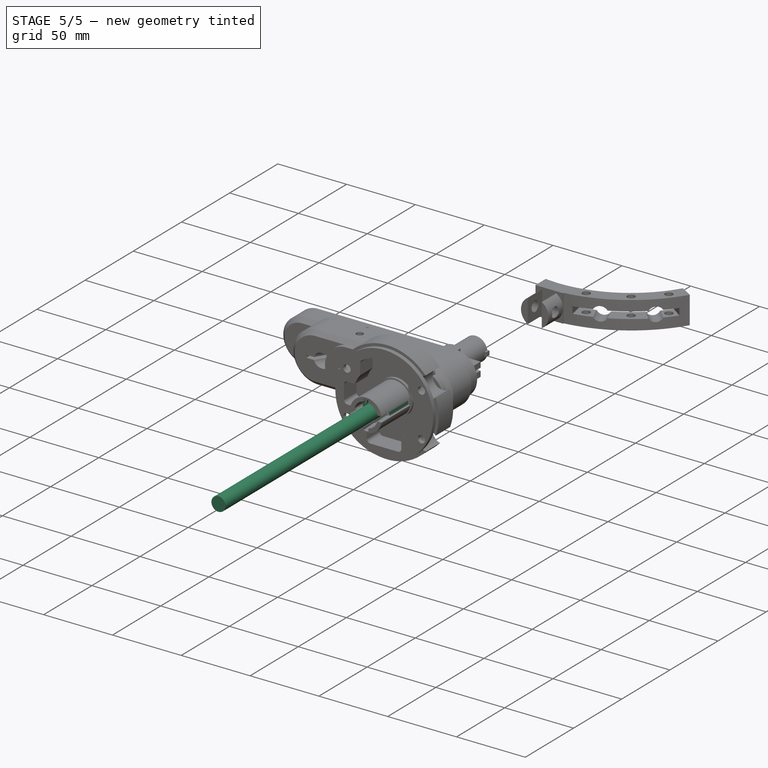
[diagram: stage 5 of 5 — iso view after this stage's code; geometry added in this stage tinted green]
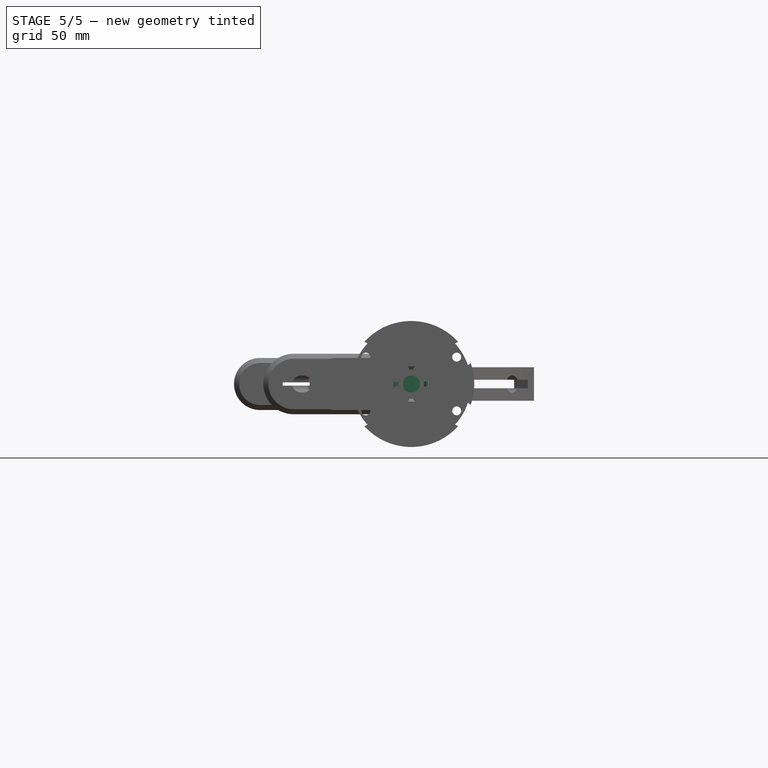
[diagram: stage 5 of 5 — front view after this stage's code; geometry added in this stage tinted green]
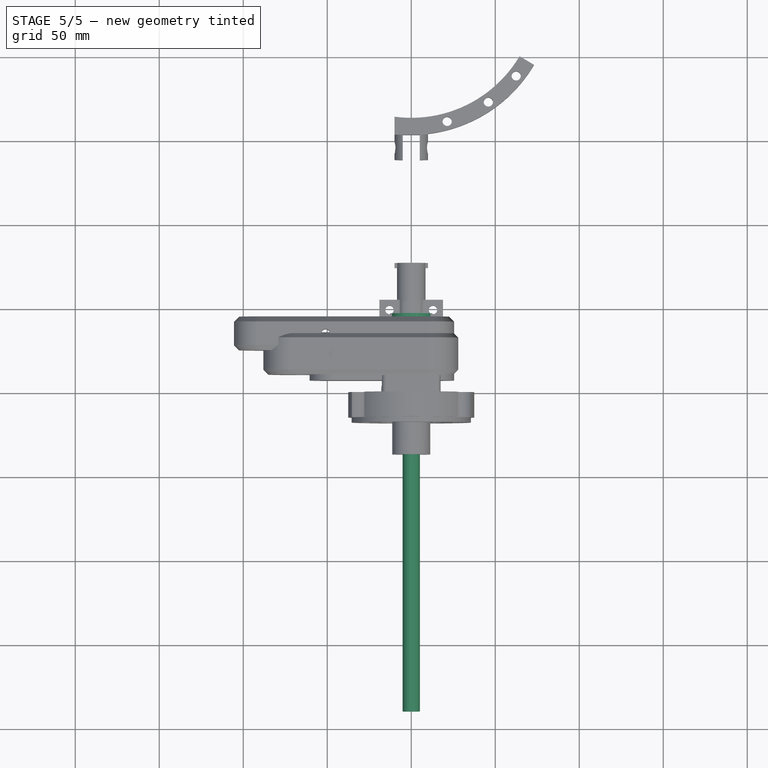
[diagram: stage 5 of 5 — top view after this stage's code; geometry added in this stage tinted green]
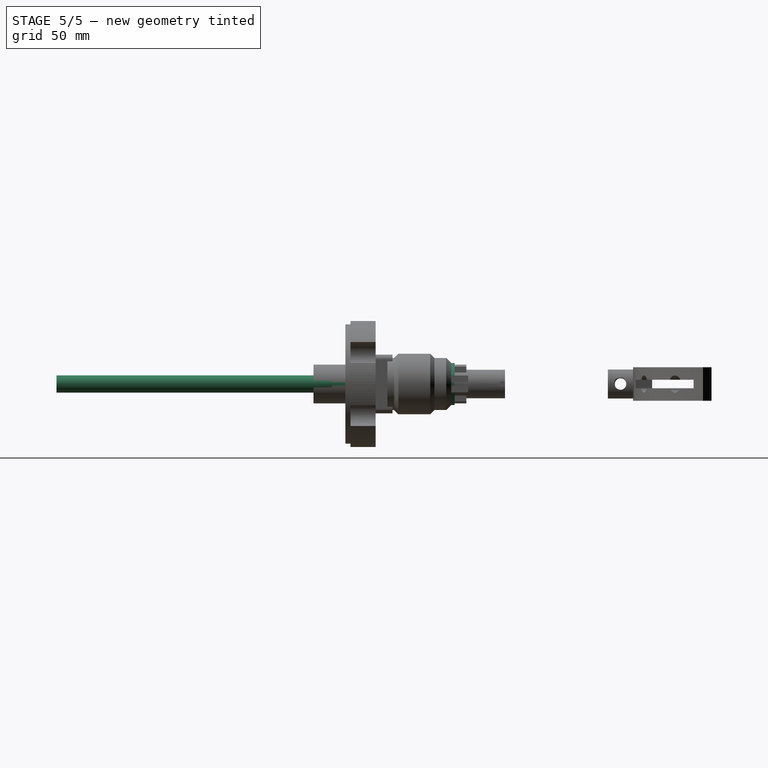
[diagram: stage 5 of 5 — right view after this stage's code; geometry added in this stage tinted green]
FEATURE [Sketcher::SketchObject] Sketch046
  FullyConstrained = true
  MapMode = 5
  Placement = pos=(0,0,0) rot=(1,0,0;1.5708rad)
  Support = -> [XZ_Plane016]
  sketch-geometry (8):
    g0: LineSegment StartX=0 StartY=7.4 StartZ=0 EndX=-6.40859 EndY=3.7 EndZ=0
    g1: LineSegment StartX=-6.40859 StartY=3.7 StartZ=0 EndX=-6.40859 EndY=-3.7 EndZ=0
    g2: LineSegment StartX=-6.40859 StartY=-3.7 StartZ=0 EndX=-7.37e-14 EndY=-7.4 EndZ=0
    g3: LineSegment StartX=-7.37e-14 StartY=-7.4 StartZ=0 EndX=6.40859 EndY=-3.7 EndZ=0
    g4: LineSegment StartX=6.40859 StartY=-3.7 StartZ=0 EndX=6.40859 EndY=3.7 EndZ=0
    g5: LineSegment StartX=6.40859 StartY=3.7 StartZ=0 EndX=0 EndY=7.4 EndZ=0
    g6: Circle CenterX=0 CenterY=0 CenterZ=0 NormalX=0 NormalY=0 NormalZ=1 AngleXU=0 Radius=7.4
    g7: Circle CenterX=0 CenterY=0 CenterZ=0 NormalX=0 NormalY=0 NormalZ=1 AngleXU=0 Radius=10
  constraints (18):
    c: Coincident(g0,g1)
    c: Coincident(g1,g2)
    c: Coincident(g2,g3)
    c: Coincident(g3,g4)
    c: Coincident(g4,g5)
    c: Coincident(g5,g0)
    c: Equal(g0, g1-g5) x5
    c: PointOnObject(g0,g6)
    c: PointOnObject(g1,g6)
    c: PointOnObject(g2,g6)
    c: PointOnObject(g3,g6)
    c: PointOnObject(g4,g6)
    c: PointOnObject(g5,g6)
    c: Coincident(g6,g-1)
    c: Distance(g0) = 7.4
    c: PointOnObject(g0,g-2)
    c: Coincident(g7,g6)
    c: Diameter(g7) = 20
FEATURE [PartDesign::Pad] Pad022
  Direction = (0,-1,-2e-16)
  Length = 7
  Length2 = 10
  Placement = pos=(0,0,0) rot=(1,0,0;1.5708rad)
  Profile = -> Sketch046
  ReferenceAxis = -> Sketch046 [N_Axis]
  Type = 0
FEATURE [Sketcher::SketchObject] Sketch047
  FullyConstrained = true
  MapMode = 5
  Placement = pos=(0,0,0) rot=(-1,0,0;1.5708rad)
  Support = -> [Pad022]
  sketch-geometry (2):
    g0: Circle CenterX=0 CenterY=0 CenterZ=0 NormalX=0 NormalY=0 NormalZ=1 AngleXU=0 Radius=10
    g1: Circle CenterX=0 CenterY=0 CenterZ=0 NormalX=0 NormalY=0 NormalZ=1 AngleXU=0 Radius=4.5
  constraints (4):
    c: Coincident(g0,g-1)
    c: Diameter(g0) = 20
    c: Coincident(g1,g0)
    c: Diameter(g1) = 9
FEATURE [PartDesign::Pad] Pad023
  BaseFeature = -> Pad022
  Direction = (0,1,2e-16)
  Length = 7
  Length2 = 10
  Placement = pos=(0,0,0) rot=(1,0,0;1.5708rad)
  Profile = -> Sketch047
  ReferenceAxis = -> Sketch047 [N_Axis]
  Type = 0
FEATURE [Sketcher::SketchObject] Sketch048
  FullyConstrained = true
  MapMode = 5
  Placement = pos=(0,7,0) rot=(-1,0,0;1.5708rad)
  Support = -> [Pad023]
  sketch-geometry (1):
    g0: Circle CenterX=0 CenterY=0 CenterZ=0 NormalX=0 NormalY=0 NormalZ=1 AngleXU=0 Radius=10
  constraints (2):
    c: Coincident(g0,g-1)
    c: Diameter(g0) = 20
FEATURE [PartDesign::Pad] Pad024
  BaseFeature = -> Pad023
  Direction = (0,1,2e-16)
  Length = 5
  Length2 = 10
  Placement = pos=(0,0,0) rot=(1,0,0;1.5708rad)
  Profile = -> Sketch048
  ReferenceAxis = -> Sketch048 [N_Axis]
  Type = 0
FEATURE [Sketcher::SketchObject] Sketch051
  FullyConstrained = true
  MapMode = 5
  Placement = pos=(0,0,0) rot=(1,0,0;1.5708rad)
  Support = -> [XZ_Plane017]
  sketch-geometry (2):
    g0: Circle CenterX=0 CenterY=0 CenterZ=0 NormalX=0 NormalY=0 NormalZ=1 AngleXU=0 Radius=1.575
    g1: Circle CenterX=0 CenterY=0 CenterZ=0 NormalX=0 NormalY=0 NormalZ=1 AngleXU=0 Radius=4.75
  constraints (4):
    c: Coincident(g0,g-1)
    c: Diameter(g0) = 3.15
    c: Coincident(g1,g0)
    c: Diameter(g1) = 9.5
FEATURE [PartDesign::Pad] Pad027
  Direction = (0,-1,-2e-16)
  Length = 24
  Length2 = 10
  Placement = pos=(0,0,0) rot=(1,0,0;1.5708rad)
  Profile = -> Sketch051
  ReferenceAxis = -> Sketch051 [N_Axis]
  Type = 0
FEATURE [Sketcher::SketchObject] Sketch054
  FullyConstrained = true
  MapMode = 5
  Placement = pos=(0,0,0) rot=(-1,0,0;1.5708rad)
  Support = -> [Pad027]
  sketch-geometry (1):
    g0: Circle CenterX=0 CenterY=0 CenterZ=0 NormalX=0 NormalY=0 NormalZ=1 AngleXU=0 Radius=10
  constraints (2):
    c: Coincident(g0,g-1)
    c: Diameter(g0) = 20
FEATURE [PartDesign::Pad] Pad028
  BaseFeature = -> Pad027
  Direction = (0,1,2e-16)
  Length = 3
  Length2 = 10
  Placement = pos=(0,0,0) rot=(1,0,0;1.5708rad)
  Profile = -> Sketch054
  ReferenceAxis = -> Sketch054 [N_Axis]
  Type = 0
FEATURE [Sketcher::SketchObject] Sketch055
  FullyConstrained = true
  MapMode = 5
  Placement = pos=(0,0,0) rot=(1,0,0;1.5708rad)
  Support = -> [Pad028]
  sketch-geometry (2):
    g0: Circle CenterX=0 CenterY=0 CenterZ=0 NormalX=0 NormalY=0 NormalZ=1 AngleXU=0 Radius=7.575
    g1: Circle CenterX=0 CenterY=0 CenterZ=0 NormalX=0 NormalY=0 NormalZ=1 AngleXU=0 Radius=10
  constraints (4):
    c: Coincident(g0,g-1)
    c: Coincident(g1,g0)
    c: Diameter(g1) = 20
    c: Diameter(g0) = 15.15
FEATURE [PartDesign::Pad] Pad029
  BaseFeature = -> Pad028
  Direction = (0,-1,-2e-16)
  Length = 26
  Length2 = 10
  Placement = pos=(0,0,0) rot=(1,0,0;1.5708rad)
  Profile = -> Sketch055
  ReferenceAxis = -> Sketch055 [N_Axis]
  Type = 0
FEATURE [Sketcher::SketchObject] Sketch056
  FullyConstrained = true
  MapMode = 5
  Placement = pos=(0,-26,1e-16) rot=(1,0,0;1.5708rad)
  Support = -> [Pad029]
  sketch-geometry (8):
    g0: LineSegment StartX=-8.75 StartY=1.5 StartZ=0 EndX=-6.75 EndY=1.5 EndZ=0
    g1: LineSegment StartX=8.75 StartY=1.5 StartZ=0 EndX=8.75 EndY=-1.5 EndZ=0
    g2: LineSegment StartX=8.75 StartY=-1.5 StartZ=0 EndX=6.75 EndY=-1.5 EndZ=0
    g3: LineSegment StartX=-8.75 StartY=-1.5 StartZ=0 EndX=-8.75 EndY=1.5 EndZ=0
    g4: LineSegment StartX=-6.75 StartY=1.5 StartZ=0 EndX=-6.75 EndY=-1.5 EndZ=0
    g5: LineSegment StartX=6.75 StartY=1.5 StartZ=0 EndX=6.75 EndY=-1.5 EndZ=0
    g6: LineSegment StartX=6.75 StartY=1.5 StartZ=0 EndX=8.75 EndY=1.5 EndZ=0
    g7: LineSegment StartX=-6.75 StartY=-1.5 StartZ=0 EndX=-8.75 EndY=-1.5 EndZ=0
  constraints (24):
    c: Coincident(g6,g1)
    c: Coincident(g1,g2)
    c: Coincident(g7,g3)
    c: Coincident(g3,g0)
    c: Horizontal(g0)
    c: Horizontal(g2)
    c: Vertical(g1)
    c: Vertical(g3)
    c: DistanceY(g1,g1) = 3
    c: DistanceX(g0,g6) = 17.5
    c: DistanceX(g-1,g6) = 8.75
    c: Vertical(g4)
    c: Vertical(g5)
    c: Coincident(g0,g4)
    c: Coincident(g6,g5)
    c: Coincident(g2,g5)
    c: Coincident(g7,g4)
    c: DistanceY(g3,g3) = 3
    c: DistanceX(g0,g0) = 2
    c: DistanceX(g6,g6) = 2
    c: DistanceY(g-1,g1) = 1.5
    c: DistanceY(g-1,g0) = 1.5
    c: Horizontal(g7)
    c: Horizontal(g6)
FEATURE [PartDesign::Pocket] Pocket015
  BaseFeature = -> Pad029
  Direction = (0,1,2e-16)
  Length = 26
  Length2 = -6
  Placement = pos=(0,0,0) rot=(1,0,0;1.5708rad)
  Profile = -> Sketch056
  ReferenceAxis = -> Sketch056 [N_Axis]
  Type = 4
FEATURE [Sketcher::SketchObject] Sketch057
  FullyConstrained = true
  MapMode = 5
  Placement = pos=(0,-26,1e-16) rot=(1,0,0;1.5708rad)
  Support = -> [Pocket015]
  sketch-geometry (8):
    g0: LineSegment StartX=-1.25 StartY=-7.3 StartZ=0 EndX=1.25 EndY=-7.3 EndZ=0
    g1: LineSegment StartX=1.25 StartY=-7.3 StartZ=0 EndX=1.25 EndY=-10.3 EndZ=0
    g2: LineSegment StartX=1.25 StartY=-10.3 StartZ=0 EndX=-1.25 EndY=-10.3 EndZ=0
    g3: LineSegment StartX=-1.25 StartY=-10.3 StartZ=0 EndX=-1.25 EndY=-7.3 EndZ=0
    g4: LineSegment StartX=-1.25 StartY=10.3 StartZ=0 EndX=1.25 EndY=10.3 EndZ=0
    g5: LineSegment StartX=1.25 StartY=10.3 StartZ=0 EndX=1.25 EndY=7.3 EndZ=0
    g6: LineSegment StartX=1.25 StartY=7.3 StartZ=0 EndX=-1.25 EndY=7.3 EndZ=0
    g7: LineSegment StartX=-1.25 StartY=7.3 StartZ=0 EndX=-1.25 EndY=10.3 EndZ=0
  constraints (24):
    c: Coincident(g0,g1)
    c: Coincident(g1,g2)
    c: Coincident(g2,g3)
    c: Coincident(g3,g0)
    c: Horizontal(g0)
    c: Horizontal(g2)
    c: Vertical(g1)
    c: Vertical(g3)
    c: Coincident(g4,g5)
    c: Coincident(g5,g6)
    c: Coincident(g6,g7)
    c: Coincident(g7,g4)
    c: Horizontal(g4)
    c: Horizontal(g6)
    c: Vertical(g5)
    c: Vertical(g7)
    c: DistanceX(g4,g4) = 2.5
    c: DistanceY(g5,g5) = 3
    c: Equal(g4,g0)
    c: Equal(g1,g5)
    c: DistanceX(g-1,g4) = 1.25
    c: DistanceX(g-1,g0) = 1.25
    c: DistanceY(g0,g-1) = 7.3
    c: DistanceY(g-1,g6) = 7.3
FEATURE [PartDesign::Pocket] Pocket016
  BaseFeature = -> Pocket015
  Direction = (0,1,2e-16)
  Length = 22
  Length2 = 5
  Placement = pos=(0,0,0) rot=(1,0,0;1.5708rad)
  Profile = -> Sketch057
  ReferenceAxis = -> Sketch057 [N_Axis]
  Type = 0
FEATURE [Sketcher::SketchObject] Sketch059
  ExternalGeometry = -> [Pocket016]
  FullyConstrained = true
  MapMode = 5
  Placement = pos=(0,3,0) rot=(-1,0,0;1.5708rad)
  Support = -> [Pocket016]
  sketch-geometry (4):
    g0: LineSegment StartX=5 StartY=8.66025 StartZ=0 EndX=5 EndY=-8.66025 EndZ=0
    g1: LineSegment StartX=-5 StartY=-8.66025 StartZ=0 EndX=-5 EndY=8.66025 EndZ=0
    g2: ArcOfCircle CenterX=0 CenterY=0 CenterZ=0 NormalX=0 NormalY=0 NormalZ=1 AngleXU=0 Radius=10 StartAngle=4.18879 EndAngle=5.23599
    g3: ArcOfCircle CenterX=0 CenterY=0 CenterZ=0 NormalX=0 NormalY=0 NormalZ=1 AngleXU=0 Radius=10 StartAngle=1.0472 EndAngle=2.0944
  constraints (14):
    c: PointOnObject(g0,g-3)
    c: PointOnObject(g0,g-3)
    c: PointOnObject(g1,g-3)
    c: PointOnObject(g1,g-3)
    c: Vertical(g1)
    c: Vertical(g0)
    c: Equal(g1,g0)
    c: DistanceX(g1,g0) = 10
    c: Coincident(g2,g-3)
    c: Coincident(g3,g1)
    c: Coincident(g2,g1)
    c: PointOnObject(g2,g0)
    c: Coincident(g2,g3)
    c: PointOnObject(g3,g0)
FEATURE [PartDesign::Pad] Pad031
  BaseFeature = -> Pocket016
  Direction = (0,1,2e-16)
  Length = 15
  Length2 = 10
  Placement = pos=(0,0,0) rot=(1,0,0;1.5708rad)
  Profile = -> Sketch059
  ReferenceAxis = -> Sketch059 [N_Axis]
  Type = 0
FEATURE [Sketcher::SketchObject] Sketch060
  ExternalGeometry = -> [Pad031]
  FullyConstrained = true
  MapMode = 5
  Placement = pos=(-5,0,0) rot=(0.707107,0,-0.707107;3.14159rad)
  Support = -> [Pad031]
  sketch-geometry (1):
    g0: Circle CenterX=0 CenterY=-10.5 CenterZ=0 NormalX=0 NormalY=0 NormalZ=1 AngleXU=0 Radius=2.5
  constraints (3):
    c: PointOnObject(g0,g-2)
    c: Diameter(g0) = 5
    c: DistanceY(g0,g-3) = 7.5
FEATURE [PartDesign::Hole] Hole003
  BaseFeature = -> Pad031
  CustomThreadClearance = 0
  Depth = 25
  DepthType = 0
  Diameter = 5
  DrillForDepth = false
  DrillPoint = 1
  DrillPointAngle = 118
  HoleCutCountersinkAngle = 90
  HoleCutCustomValues = false
  HoleCutDepth = 0
  HoleCutDiameter = 0
  HoleCutType = 0
  ModelThread = true
  Placement = pos=(0,0,0) rot=(1,0,0;1.5708rad)
  Profile = -> Sketch060
  Tapered = false
  TaperedAngle = 90
  ThreadClass = 0
  ThreadDepth = 25
  ThreadDepthType = 0
  ThreadDirection = 0
  ThreadFit = 0
  ThreadSize = 12
  ThreadType = 1
  Threaded = false
  UseCustomThreadClearance = false
FEATURE [PartDesign::Body] Body016  label="stylus_22_5"
  Group = -> [Sketch068,Pad035]
  Origin = -> Origin020
  Placement = pos=(0,85,0) rot=(0,0,1;0.392699rad)
  Tip = -> Pad035
FEATURE [Sketcher::SketchObject] Sketch069
  FullyConstrained = true
  MapMode = 5
  Placement = pos=(0,0,0) rot=(1,0,0;1.5708rad)
  Support = -> [XZ_Plane021]
  sketch-geometry (1):
    g0: Circle CenterX=0 CenterY=0 CenterZ=0 NormalX=0 NormalY=0 NormalZ=1 AngleXU=0 Radius=5.125
  constraints (2):
    c: Coincident(g0,g-1)
    c: Diameter(g0) = 10.25
FEATURE [PartDesign::Pad] Pad036
  Direction = (0,-1,2e-16)
  Length = 190
  Length2 = 10
  Placement = pos=(0,0,0) rot=(1,0,0;1.5708rad)
  Profile = -> Sketch069
  ReferenceAxis = -> Sketch069 [N_Axis]
  Type = 0
FEATURE [PartDesign::Body] Body017  label="stylus_28_5"
  Group = -> [Sketch069,Pad036]
  Origin = -> Origin021
  Placement = pos=(0,85,0) rot=(0,0,1;0.497419rad)
  Tip = -> Pad036
FEATURE [Sketcher::SketchObject] Sketch070
  FullyConstrained = true
  MapMode = 5
  Placement = pos=(0,0,0) rot=(1,0,0;1.5708rad)
  Support = -> [XZ_Plane022]
  sketch-geometry (1):
    g0: Circle CenterX=0 CenterY=0 CenterZ=0 NormalX=0 NormalY=0 NormalZ=1 AngleXU=0 Radius=5.125
  constraints (2):
    c: Coincident(g0,g-1)
    c: Diameter(g0) = 10.25
FEATURE [PartDesign::Pad] Pad037
  Direction = (0,-1,2e-16)
  Length = 190
  Length2 = 10
  Placement = pos=(0,0,0) rot=(1,0,0;1.5708rad)
  Profile = -> Sketch070
  ReferenceAxis = -> Sketch070 [N_Axis]
  Type = 0
FEATURE [PartDesign::Body] Body018  label="stylus_041"
  Group = -> [Sketch070,Pad037]
  Origin = -> Origin022
  Placement = pos=(0,85,0) rot=(0,0,1;0.715585rad)
  Tip = -> Pad037
FEATURE [Sketcher::SketchObject] Sketch071
  FullyConstrained = true
  MapMode = 5
  Placement = pos=(0,0,0) rot=(1,0,0;1.5708rad)
  Support = -> [XZ_Plane023]
  sketch-geometry (1):
    g0: Circle CenterX=0 CenterY=0 CenterZ=0 NormalX=0 NormalY=0 NormalZ=1 AngleXU=0 Radius=5.125
  constraints (2):
    c: Coincident(g0,g-1)
    c: Diameter(g0) = 10.25
FEATURE [PartDesign::Pad] Pad038
  Direction = (0,-1,2e-16)
  Length = 190
  Length2 = 10
  Placement = pos=(0,0,0) rot=(1,0,0;1.5708rad)
  Profile = -> Sketch071
  ReferenceAxis = -> Sketch071 [N_Axis]
  Type = 0
FEATURE [PartDesign::Body] Body019  label="stylus_047"
  Group = -> [Sketch071,Pad038]
  Origin = -> Origin023
  Placement = pos=(0,85,0) rot=(0,0,1;0.855211rad)
  Tip = -> Pad038
FEATURE [Sketcher::SketchObject] Sketch073
  FullyConstrained = true
  MapMode = 5
  Placement = pos=(0,-26,1e-16) rot=(1,0,0;1.5708rad)
  Support = -> [Hole003]
  sketch-geometry (4):
    g0: LineSegment StartX=-6.75 StartY=1.5 StartZ=0 EndX=-8.75 EndY=1.5 EndZ=0
    g1: LineSegment StartX=-8.75 StartY=1.5 StartZ=0 EndX=-8.75 EndY=-1.5 EndZ=0
    g2: LineSegment StartX=-8.75 StartY=-1.5 StartZ=0 EndX=-6.75 EndY=-1.5 EndZ=0
    g3: LineSegment StartX=-6.75 StartY=-1.5 StartZ=0 EndX=-6.75 EndY=1.5 EndZ=0
  constraints (12):
    c: Coincident(g0,g1)
    c: Coincident(g1,g2)
    c: Coincident(g2,g3)
    c: Coincident(g3,g0)
    c: Horizontal(g0)
    c: Horizontal(g2)
    c: Vertical(g1)
    c: Vertical(g3)
    c: DistanceX(g0,g0) = 2
    c: DistanceY(g1,g1) = 3
    c: DistanceY(g-1,g0) = 1.5
    c: DistanceX(g0,g-1) = 8.75
FEATURE [PartDesign::Pocket] Pocket018
  BaseFeature = -> Hole003
  Direction = (0.3,1,0)
  Length = 4.5
  Length2 = 5
  Placement = pos=(0,0,0) rot=(1,0,0;1.5708rad)
  Profile = -> Sketch073
  ReferenceAxis = -> Sketch073 [N_Axis]
  Type = 0
  UseCustomVector = true
FEATURE [Sketcher::SketchObject] Sketch074
  FullyConstrained = true
  MapMode = 5
  Placement = pos=(0,-26,1e-16) rot=(1,0,0;1.5708rad)
  Support = -> [Pocket018]
  sketch-geometry (4):
    g0: LineSegment StartX=6.75 StartY=1.5 StartZ=0 EndX=8.75 EndY=1.5 EndZ=0
    g1: LineSegment StartX=8.75 StartY=1.5 StartZ=0 EndX=8.75 EndY=-1.5 EndZ=0
    g2: LineSegment StartX=8.75 StartY=-1.5 StartZ=0 EndX=6.75 EndY=-1.5 EndZ=0
    g3: LineSegment StartX=6.75 StartY=-1.5 StartZ=0 EndX=6.75 EndY=1.5 EndZ=0
  constraints (12):
    c: Coincident(g0,g1)
    c: Coincident(g1,g2)
    c: Coincident(g2,g3)
    c: Coincident(g3,g0)
    c: Horizontal(g0)
    c: Horizontal(g2)
    c: Vertical(g1)
    c: Vertical(g3)
    c: DistanceY(g1,g1) = 3
    c: DistanceX(g2,g2) = 2
    c: DistanceY(g-1,g0) = 1.5
    c: DistanceX(g-1,g0) = 8.75
FEATURE [PartDesign::Pocket] Pocket019
  BaseFeature = -> Pocket018
  Direction = (-0.3,1,0)
  Length = 4.5
  Length2 = 5
  Placement = pos=(0,0,0) rot=(1,0,0;1.5708rad)
  Profile = -> Sketch074
  ReferenceAxis = -> Sketch074 [N_Axis]
  Type = 0
  UseCustomVector = true
FEATURE [PartDesign::Body] Body013  label="End_effector_mount"
  Group = -> [Sketch051,Pad027,Sketch054,Pad028,Sketch055,Pad029,Sketch056,Pocket015,Sketch057,Pocket016,Sketch059,Pad031,Sketch060,Hole003,Sketch073,Pocket018,Sketch074,Pocket019]
  Origin = -> Origin017
  Placement = pos=(0,135.25,0) rot=(0,0,1;0rad)
  Tip = -> Pocket019
FEATURE [Sketcher::SketchObject] Sketch075
  FullyConstrained = true
  MapMode = 5
  Placement = pos=(0,12,-1e-16) rot=(-1,0,0;1.5708rad)
  Support = -> [Pad024]
  sketch-geometry (3):
    g0: Circle CenterX=0 CenterY=0 CenterZ=0 NormalX=0 NormalY=0 NormalZ=1 AngleXU=0 Radius=7.5
    g1: Circle CenterX=0 CenterY=0 CenterZ=0 NormalX=0 NormalY=0 NormalZ=1 AngleXU=0 Radius=5
    g2: Circle CenterX=0 CenterY=0 CenterZ=0 NormalX=0 NormalY=0 NormalZ=1 AngleXU=0 Radius=1.5
  constraints (6):
    c: Coincident(g0,g-1)
    c: Coincident(g1,g0)
    c: Coincident(g2,g0)
    c: Diameter(g2) = 3
    c: Diameter(g1) = 10
    c: Diameter(g0) = 15
FEATURE [PartDesign::Pad] Pad039
  BaseFeature = -> Pad024
  Direction = (0,1,2e-16)
  Length = 26
  Length2 = 10
  Placement = pos=(0,0,0) rot=(1,0,0;1.5708rad)
  Profile = -> Sketch075
  ReferenceAxis = -> Sketch075 [N_Axis]
  Type = 0
FEATURE [Sketcher::SketchObject] Sketch076
  FullyConstrained = true
  MapMode = 5
  Placement = pos=(0,38,3e-15) rot=(-1,0,0;1.5708rad)
  Support = -> [Pad039]
  sketch-geometry (8):
    g0: LineSegment StartX=-8.5 StartY=1.375 StartZ=0 EndX=-6.5 EndY=1.375 EndZ=0
    g1: LineSegment StartX=-6.5 StartY=1.375 StartZ=0 EndX=-6.5 EndY=-1.375 EndZ=0
    g2: LineSegment StartX=-6.5 StartY=-1.375 StartZ=0 EndX=-8.5 EndY=-1.375 EndZ=0
    g3: LineSegment StartX=-8.5 StartY=-1.375 StartZ=0 EndX=-8.5 EndY=1.375 EndZ=0
    g4: LineSegment StartX=6.5 StartY=1.375 StartZ=0 EndX=8.5 EndY=1.375 EndZ=0
    g5: LineSegment StartX=8.5 StartY=1.375 StartZ=0 EndX=8.5 EndY=-1.375 EndZ=0
    g6: LineSegment StartX=8.5 StartY=-1.375 StartZ=0 EndX=6.5 EndY=-1.375 EndZ=0
    g7: LineSegment StartX=6.5 StartY=-1.375 StartZ=0 EndX=6.5 EndY=1.375 EndZ=0
  constraints (24):
    c: Coincident(g0,g1)
    c: Coincident(g1,g2)
    c: Coincident(g2,g3)
    c: Coincident(g3,g0)
    c: Horizontal(g0)
    c: Horizontal(g2)
    c: Vertical(g1)
    c: Vertical(g3)
    c: Coincident(g4,g5)
    c: Coincident(g5,g6)
    c: Coincident(g6,g7)
    c: Coincident(g7,g4)
    c: Horizontal(g4)
    c: Horizontal(g6)
    c: Vertical(g5)
    c: Vertical(g7)
    c: Equal(g0,g4)
    c: Equal(g5,g3)
    c: DistanceY(g1,g1) = 2.75
    c: DistanceX(g0,g0) = 2
    c: DistanceX(g0,g-1) = 8.5
    c: DistanceY(g6,g-1) = 1.375
    c: DistanceY(g1,g-1) = 1.375
    c: DistanceX(g-1,g4) = 8.5
FEATURE [PartDesign::Pad] Pad040
  BaseFeature = -> Pad039
  Direction = (0,1,2e-16)
  Length = 2.5
  Length2 = 10
  Placement = pos=(0,0,0) rot=(1,0,0;1.5708rad)
  Profile = -> Sketch076
  ReferenceAxis = -> Sketch076 [N_Axis]
  Reversed = true
  Type = 0
FEATURE [PartDesign::Body] Body012  label="Bearing_mount"
  Group = -> [Sketch046,Pad022,Sketch047,Pad023,Sketch048,Pad024,Sketch075,Pad039,Sketch076,Pad040]
  Origin = -> Origin016
  Placement = pos=(0,97.25,0) rot=(0,0,1;0rad)
  Tip = -> Pad040
FEATURE [Sketcher::SketchObject] Sketch077
  FullyConstrained = true
  MapMode = 5
  Placement = pos=(0,0,0) rot=(1,0,0;1.5708rad)
  Support = -> [XZ_Plane024]
  sketch-geometry (21):
    g0: LineSegment StartX=-14 StartY=-9.5 StartZ=0 EndX=-14 EndY=9.5 EndZ=0
    g1: LineSegment StartX=-9.5 StartY=14 StartZ=0 EndX=9.5 EndY=14 EndZ=0
    g2: LineSegment StartX=14 StartY=9.5 StartZ=0 EndX=14 EndY=-9.5 EndZ=0
    g3: LineSegment StartX=9.5 StartY=-14 StartZ=0 EndX=-9.5 EndY=-14 EndZ=0
    g4: GeomPoint X=0 Y=0 Z=0
    g5: LineSegment StartX=14 StartY=9.5 StartZ=0 EndX=17.5 EndY=9.5 EndZ=0
    g6: LineSegment StartX=17.5 StartY=9.5 StartZ=0 EndX=17.5 EndY=17.5 EndZ=0
    g7: LineSegment StartX=17.5 StartY=17.5 StartZ=0 EndX=9.5 EndY=17.5 EndZ=0
    g8: LineSegment StartX=9.5 StartY=17.5 StartZ=0 EndX=9.5 EndY=14 EndZ=0
    g9: LineSegment StartX=-9.5 StartY=14 StartZ=0 EndX=-9.5 EndY=17.5 EndZ=0
    g10: LineSegment StartX=-9.5 StartY=17.5 StartZ=0 EndX=-17.5 EndY=17.5 EndZ=0
    g11: LineSegment StartX=-17.5 StartY=17.5 StartZ=0 EndX=-17.5 EndY=9.5 EndZ=0
    g12: LineSegment StartX=-17.5 StartY=9.5 StartZ=0 EndX=-14 EndY=9.5 EndZ=0
    g13: LineSegment StartX=-14 StartY=-9.5 StartZ=0 EndX=-17.5 EndY=-9.5 EndZ=0
    g14: LineSegment StartX=-17.5 StartY=-9.5 StartZ=0 EndX=-17.5 EndY=-17.5 EndZ=0
    g15: LineSegment StartX=-17.5 StartY=-17.5 StartZ=0 EndX=-9.5 EndY=-17.5 EndZ=0
    g16: LineSegment StartX=-9.5 StartY=-17.5 StartZ=0 EndX=-9.5 EndY=-14 EndZ=0
    g17: LineSegment StartX=9.5 StartY=-14 StartZ=0 EndX=9.5 EndY=-17.5 EndZ=0
    g18: LineSegment StartX=9.5 StartY=-17.5 StartZ=0 EndX=17.5 EndY=-17.5 EndZ=0
    g19: LineSegment StartX=17.5 StartY=-17.5 StartZ=0 EndX=17.5 EndY=-9.5 EndZ=0
    g20: LineSegment StartX=17.5 StartY=-9.5 StartZ=0 EndX=14 EndY=-9.5 EndZ=0
  constraints (61):
    c: Horizontal(g1)
    c: Horizontal(g3)
    c: Vertical(g0)
    c: Vertical(g2)
    c: Coincident(g4,g-1)
    c: Equal(g1,g0)
    c: Equal(g3,g0)
    c: Equal(g2,g1)
    c: Coincident(g5,g2)
    c: Coincident(g6,g5)
    c: Vertical(g6)
    c: Coincident(g7,g6)
    c: Horizontal(g7)
    c: Coincident(g8,g7)
    c: Coincident(g8,g1)
    c: Vertical(g8)
    c: Horizontal(g5)
    c: Coincident(g9,g1)
    c: Vertical(g9)
    c: Coincident(g10,g9)
    c: Horizontal(g10)
    c: Coincident(g11,g10)
    c: Vertical(g11)
    c: Coincident(g12,g11)
    c: Coincident(g12,g0)
    c: Horizontal(g12)
    c: Coincident(g13,g0)
    c: Horizontal(g13)
    c: Coincident(g14,g13)
    c: Vertical(g14)
    c: Coincident(g15,g14)
    c: Horizontal(g15)
    c: Coincident(g16,g15)
    c: Coincident(g16,g3)
    c: Vertical(g16)
    c: Coincident(g17,g3)
    c: Vertical(g17)
    c: Coincident(g18,g17)
    c: Horizontal(g18)
    c: Coincident(g19,g18)
    c: Vertical(g19)
    c: Coincident(g20,g19)
    c: Coincident(g20,g2)
    c: Horizontal(g20)
    c: Equal(g5,g20)
    c: Equal(g20,g17)
    c: Equal(g5,g8)
    c: Equal(g8,g9)
    c: Equal(g9,g12)
    c: Equal(g12,g13)
    c: Equal(g13,g16)
    c: DistanceY(g18,g6) = 35
    c: DistanceX(g11,g5) = 35
    c: DistanceX(g0,g2) = 28
    c: Equal(g7,g6)
    c: Equal(g19,g18)
    c: Equal(g15,g14)
    c: Equal(g7,g18)
    c: DistanceX(g4,g6) = 17.5
    c: DistanceY(g4,g10) = 17.5
    c: DistanceX(g15,g15) = 8
FEATURE [PartDesign::Pad] Pad041
  Direction = (0,-1,-2e-16)
  Length = 5
  Length2 = 10
  Placement = pos=(0,0,0) rot=(1,0,0;1.5708rad)
  Profile = -> Sketch077
  ReferenceAxis = -> Sketch077 [N_Axis]
  Type = 0
FEATURE [Sketcher::SketchObject] Sketch078
  FullyConstrained = true
  MapMode = 5
  Placement = pos=(0,0,0) rot=(-1,0,0;1.5708rad)
  Support = -> [Pad041]
  sketch-geometry (1):
    g0: Circle CenterX=0 CenterY=0 CenterZ=0 NormalX=0 NormalY=0 NormalZ=1 AngleXU=0 Radius=12.5
  constraints (2):
    c: Coincident(g0,g-1)
    c: Diameter(g0) = 25
FEATURE [PartDesign::Pad] Pad042
  BaseFeature = -> Pad041
  Direction = (0,1,2e-16)
  Length = 47
  Length2 = 10
  Placement = pos=(0,0,0) rot=(1,0,0;1.5708rad)
  Profile = -> Sketch078
  ReferenceAxis = -> Sketch078 [N_Axis]
  Type = 0
FEATURE [Sketcher::SketchObject] Sketch079
  FullyConstrained = true
  MapMode = 5
  Placement = pos=(0,47,-1e-16) rot=(-1,0,0;1.5708rad)
  Support = -> [Pad042]
  sketch-geometry (1):
    g0: Circle CenterX=0 CenterY=0 CenterZ=0 NormalX=0 NormalY=0 NormalZ=1 AngleXU=0 Radius=10.075
  constraints (2):
    c: Coincident(g0,g-1)
    c: Diameter(g0) = 20.15
FEATURE [PartDesign::Pocket] Pocket020
  BaseFeature = -> Pad042
  Direction = (0,-1,-2e-16)
  Length = 5
  Length2 = 5
  Placement = pos=(0,0,0) rot=(1,0,0;1.5708rad)
  Profile = -> Sketch079
  ReferenceAxis = -> Sketch079 [N_Axis]
  Type = 1
FEATURE [Sketcher::SketchObject] Sketch080
  ExternalGeometry = -> [Pad041]
  FullyConstrained = true
  MapMode = 5
  Placement = pos=(0,0,0) rot=(-1,0,0;1.5708rad)
  Support = -> [Pad041]
  sketch-geometry (4):
    g0: Circle CenterX=-13.5 CenterY=-13.5 CenterZ=0 NormalX=0 NormalY=0 NormalZ=1 AngleXU=0 Radius=2.5
    g1: Circle CenterX=-13.5 CenterY=13.5 CenterZ=0 NormalX=0 NormalY=0 NormalZ=1 AngleXU=0 Radius=2.5
    g2: Circle CenterX=13.5 CenterY=13.5 CenterZ=0 NormalX=0 NormalY=0 NormalZ=1 AngleXU=0 Radius=2.5
    g3: Circle CenterX=13.5 CenterY=-13.5 CenterZ=0 NormalX=0 NormalY=0 NormalZ=1 AngleXU=0 Radius=2.5
  constraints (14):
    c: Equal(g0,g1)
    c: Equal(g2,g1)
    c: Equal(g2,g3)
    c: DistanceY(g2,g1) = 0
    c: DistanceY(g3,g0) = 0
    c: DistanceX(g0,g1) = 0
    c: DistanceX(g2,g3) = 0
    c: DistanceX(g-4,g-6) = 35
    c: DistanceX(g-3,g-3) = 8
    c: DistanceX(g-4,g1) = 4
    c: DistanceY(g1,g-4) = 4
    c: DistanceY(g-8,g3) = 4
    c: DistanceX(g3,g-8) = 4
    c: Diameter(g2) = 5
FEATURE [PartDesign::Hole] Hole007
  BaseFeature = -> Pocket020
  CustomThreadClearance = 0
  Depth = 25
  DepthType = 0
  Diameter = 5
  DrillForDepth = false
  DrillPoint = 1
  DrillPointAngle = 118
  HoleCutCountersinkAngle = 90
  HoleCutCustomValues = false
  HoleCutDepth = 0
  HoleCutDiameter = 6.1
  HoleCutType = 0
  ModelThread = true
  Placement = pos=(0,0,0) rot=(1,0,0;1.5708rad)
  Profile = -> Sketch080
  Tapered = false
  TaperedAngle = 90
  ThreadClass = 0
  ThreadDepth = 25
  ThreadDepthType = 0
  ThreadDirection = 0
  ThreadFit = 0
  ThreadSize = 12
  ThreadType = 1
  Threaded = false
  UseCustomThreadClearance = false
FEATURE [PartDesign::Fillet] Fillet002
  Base = -> Hole007 [Edge1,Edge2,Edge60,Edge62,Edge69,Edge70,Edge61,Edge59]
  BaseFeature = -> Hole007
  Placement = pos=(0,0,0) rot=(1,0,0;1.5708rad)
  Radius = 3.49
  SupportTransform = false
  UseAllEdges = false
FEATURE [PartDesign::Fillet] Fillet003
  Base = -> Fillet002 [Edge75,Edge85,Edge71,Edge72,Edge89,Edge90,Edge76,Edge86]
  BaseFeature = -> Fillet002
  Placement = pos=(0,0,0) rot=(1,0,0;1.5708rad)
  Radius = 3
  SupportTransform = false
  UseAllEdges = false
FEATURE [PartDesign::Fillet] Fillet004
  Base = -> Fillet003 [Edge79,Edge69,Edge41,Edge51]
  BaseFeature = -> Fillet003
  Placement = pos=(0,0,0) rot=(1,0,0;1.5708rad)
  Radius = 3
  SupportTransform = false
  UseAllEdges = false
FEATURE [Sketcher::SketchObject] Sketch081
  FullyConstrained = true
  MapMode = 5
  Placement = pos=(0,-5,0) rot=(1,0,0;1.5708rad)
  Support = -> [Fillet004]
  sketch-geometry (1):
    g0: Circle CenterX=0 CenterY=0 CenterZ=0 NormalX=0 NormalY=0 NormalZ=1 AngleXU=0 Radius=11
  constraints (2):
    c: Coincident(g0,g-1)
    c: Diameter(g0) = 22
FEATURE [PartDesign::Pocket] Pocket021
  BaseFeature = -> Fillet004
  Direction = (0,1,2e-16)
  Length = 1
  Length2 = 5
  Placement = pos=(0,0,0) rot=(1,0,0;1.5708rad)
  Profile = -> Sketch081
  ReferenceAxis = -> Sketch081 [N_Axis]
  Type = 0
FEATURE [PartDesign::Body] Body020  label="Sprint_bearing_shaft"
  Group = -> [Sketch077,Pad041,Sketch078,Pad042,Sketch079,Pocket020,Sketch080,Hole007,Fillet002,Fillet003,Fillet004,Sketch081,Pocket021]
  Origin = -> Origin024
  Placement = pos=(0,15,0) rot=(0,0,1;0rad)
  Tip = -> Pocket021
FEATURE [Sketcher::SketchObject] Sketch082
  ExternalGeometry = -> [Fillet001]
  FullyConstrained = true
  MapMode = 5
  Placement = pos=(0,10,-8.9e-15) rot=(-1,0,0;1.5708rad)
  Support = -> [Fillet001]
  sketch-geometry (4):
    g0: Circle CenterX=-13.5 CenterY=13.5 CenterZ=0 NormalX=0 NormalY=0 NormalZ=1 AngleXU=0 Radius=2.5
    g1: Circle CenterX=13.5 CenterY=13.5 CenterZ=0 NormalX=0 NormalY=0 NormalZ=1 AngleXU=0 Radius=2.5
    g2: Circle CenterX=13.5 CenterY=-13.5 CenterZ=0 NormalX=0 NormalY=0 NormalZ=1 AngleXU=0 Radius=2.5
    g3: Circle CenterX=-13.5 CenterY=-13.5 CenterZ=0 NormalX=0 NormalY=0 NormalZ=1 AngleXU=0 Radius=2.5
  constraints (12):
    c: Equal(g0,g1)
    c: Equal(g1,g2)
    c: Equal(g3,g2)
    c: Diameter(g2) = 5
    c: DistanceY(g1,g0) = 0
    c: DistanceY(g2,g3) = 0
    c: DistanceX(g3,g0) = 0
    c: DistanceX(g1,g2) = 0
    c: DistanceX(g-3,g0) = 4
    c: DistanceX(g2,g-4) = 4
    c: DistanceY(g-4,g2) = 4
    c: DistanceY(g0,g-3) = 4
FEATURE [PartDesign::Hole] Hole008
  BaseFeature = -> Fillet001
  CustomThreadClearance = 0
  Depth = 25
  DepthType = 0
  Diameter = 5
  DrillForDepth = false
  DrillPoint = 1
  DrillPointAngle = 118
  HoleCutCountersinkAngle = 90
  HoleCutCustomValues = false
  HoleCutDepth = 0
  HoleCutDiameter = 6.1
  HoleCutType = 0
  ModelThread = false
  Placement = pos=(0,0,0) rot=(1,0,0;1.5708rad)
  Profile = -> Sketch082
  Tapered = false
  TaperedAngle = 90
  ThreadClass = 0
  ThreadDepth = 25
  ThreadDepthType = 0
  ThreadDirection = 0
  ThreadFit = 0
  ThreadSize = 12
  ThreadType = 1
  Threaded = false
  UseCustomThreadClearance = false
FEATURE [PartDesign::Fillet] Fillet005
  Base = -> Hole008 [Edge77,Edge73,Edge75,Edge72]
  BaseFeature = -> Hole008
  Placement = pos=(0,0,0) rot=(1,0,0;1.5708rad)
  Radius = 3
  SupportTransform = false
  UseAllEdges = false
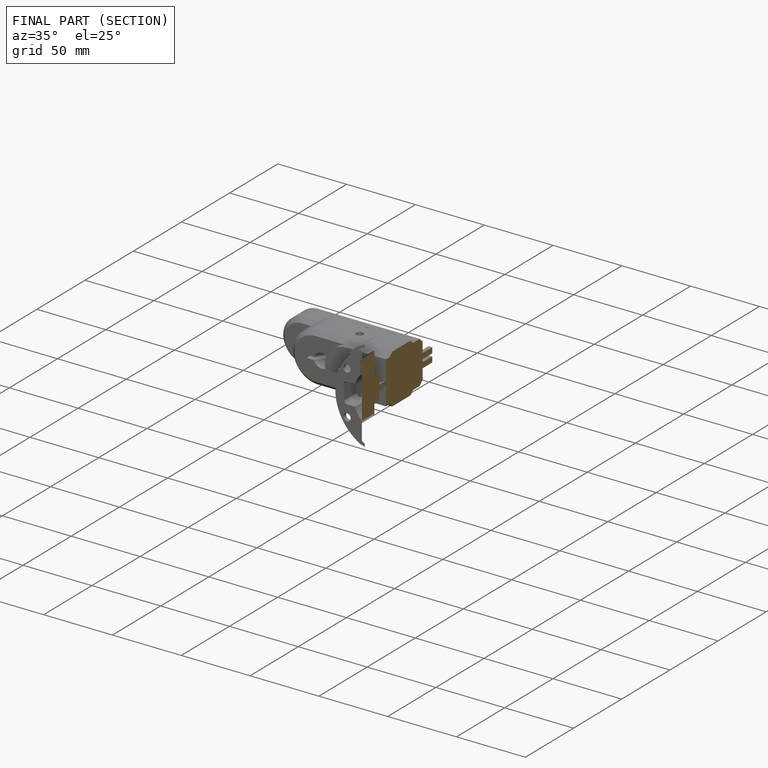
[diagram: finished part — half-section view (interior)]
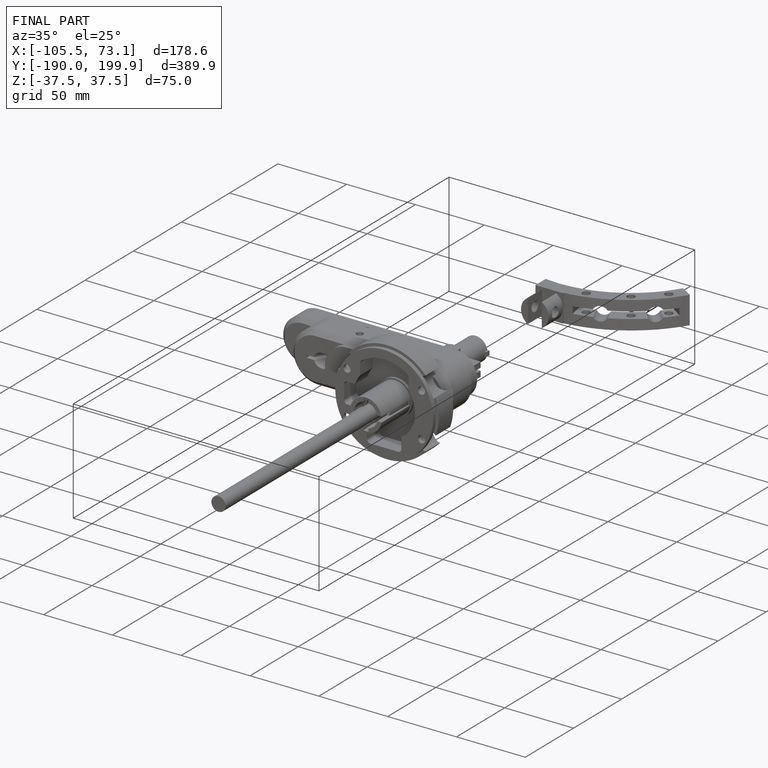
[diagram: finished part — iso view with bounding-box wireframe]
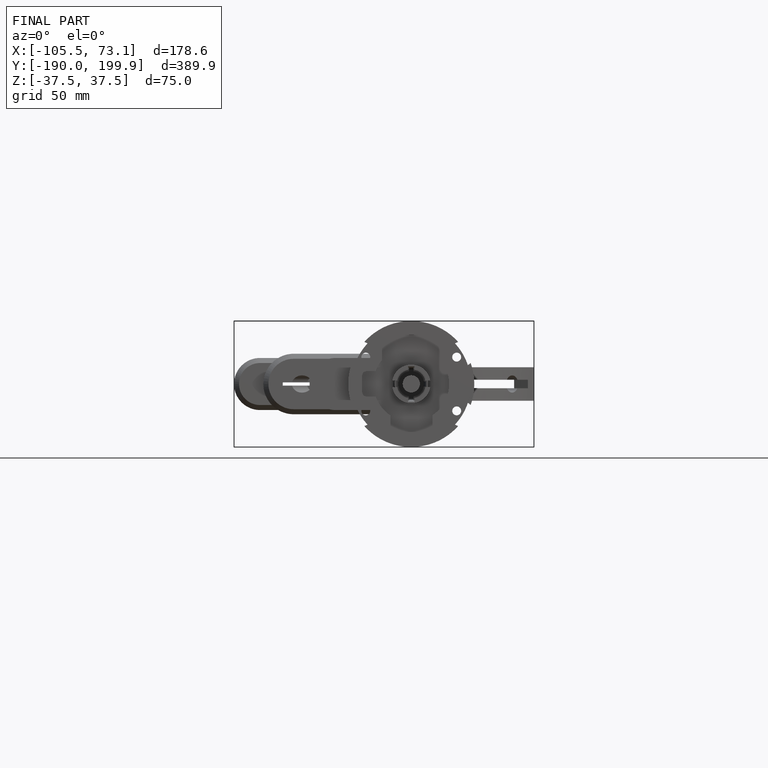
[diagram: finished part — front view with bounding-box wireframe]
